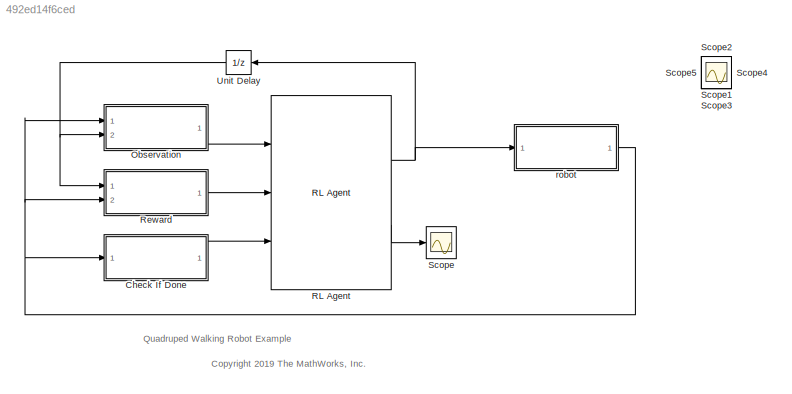
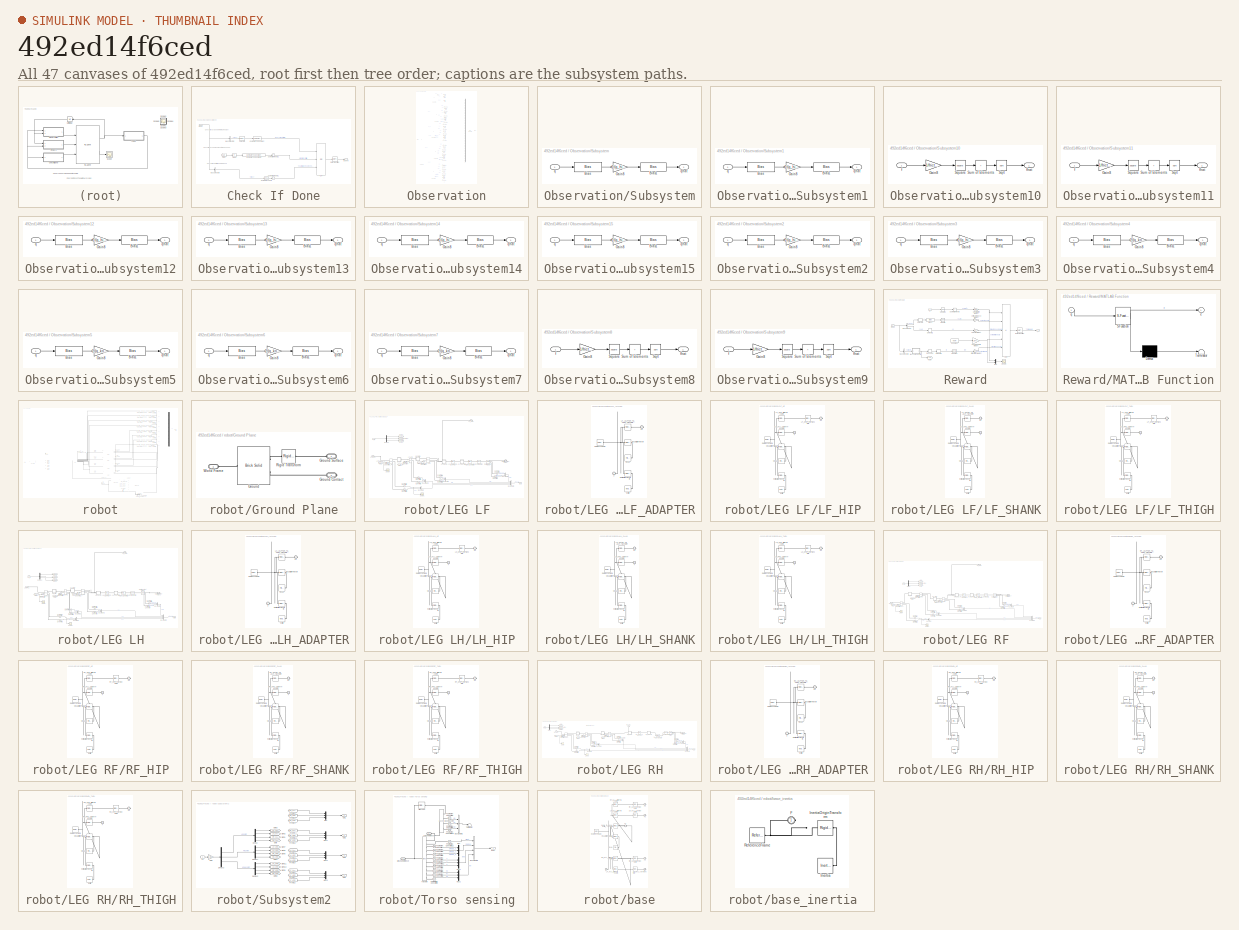
[diagram: thumbnail index - all 47 canvases of the model, root first then tree order]
MODEL slx_492ed14f6ced
KIND model
CONFIG AbsTol = 1e-4
CONFIG EnableMultiTasking = on
CONFIG FixedStep = auto
CONFIG MaxStep = auto
CONFIG MinStep = auto
CONFIG RelTol = 1e-3
CONFIG SampleTimeConstraint = Unconstrained
CONFIG SolverName = ode23t
CONFIG StartTime = 0.0
CONFIG StopTime = Tf
BLOCK [SubSystem] Check If Done
  Ports = [1, 1]
  RequestExecContextInheritance = off
BLOCK [Abs] Check If Done/Abs2
  SaturateOnIntegerOverflow = off
  ZeroCross = off
BLOCK [BusSelector] Check If Done/Bus Selector2
  OutputSignals = body.pos
  Ports = [1, 1]
BLOCK [BusSelector] Check If Done/Bus Selector3
  Commented = on
  OutputSignals = force
  Ports = [1, 1]
BLOCK [Reference] Check If Done/Compare To Constant  REF=simulink/Logic and Bit
Operations/Compare
To Constant
  Ports = [1, 1]
  SourceBlock = simulink/Logic and Bit\nOperations/Compare\nTo Constant
  SourceProductBaseCode = SL
  SourceType = Compare To Constant
BLOCK [Reference] Check If Done/Compare To Constant2  REF=simulink/Logic and Bit
Operations/Compare
To Constant
  Ports = [1, 1]
  SourceBlock = simulink/Logic and Bit\nOperations/Compare\nTo Constant
  SourceProductBaseCode = SL
  SourceType = Compare To Constant
BLOCK [Reference] Check If Done/Compare To Zero  REF=simulink/Logic and Bit
Operations/Compare
To Zero
  Commented = on
  Ports = [1, 1]
  SourceBlock = simulink/Logic and Bit\nOperations/Compare\nTo Zero
  SourceProductBaseCode = SL
  SourceType = Compare To Zero
BLOCK [From] Check If Done/From
  GotoTag = q2e
  TagVisibility = global
BLOCK [Logic] Check If Done/OR
  AllPortsSameDT = off
  Inputs = 3
  Operator = OR
  OutDataTypeStr = boolean
  Ports = [3, 1]
BLOCK [RateTransition] Check If Done/Rate Transition
BLOCK [Selector] Check If Done/Selector1
  IndexOptions = Index vector (dialog)
  Indices = 3
  InputPortWidth = 3
  OutputSizes = 1
  Ports = [1, 1]
BLOCK [Sum] Check If Done/Sum of Elements1
  Commented = on
  IconShape = rectangular
  Inputs = +
  Ports = [1, 1]
BLOCK [Sum] Check If Done/Sum of Elements2
  IconShape = rectangular
  Inputs = +
  Ports = [1, 1]
BLOCK [Outport] Check If Done/isdone
  VectorParamsAs1DForOutWhenUnconnected = off
BLOCK [Inport] Check If Done/meas
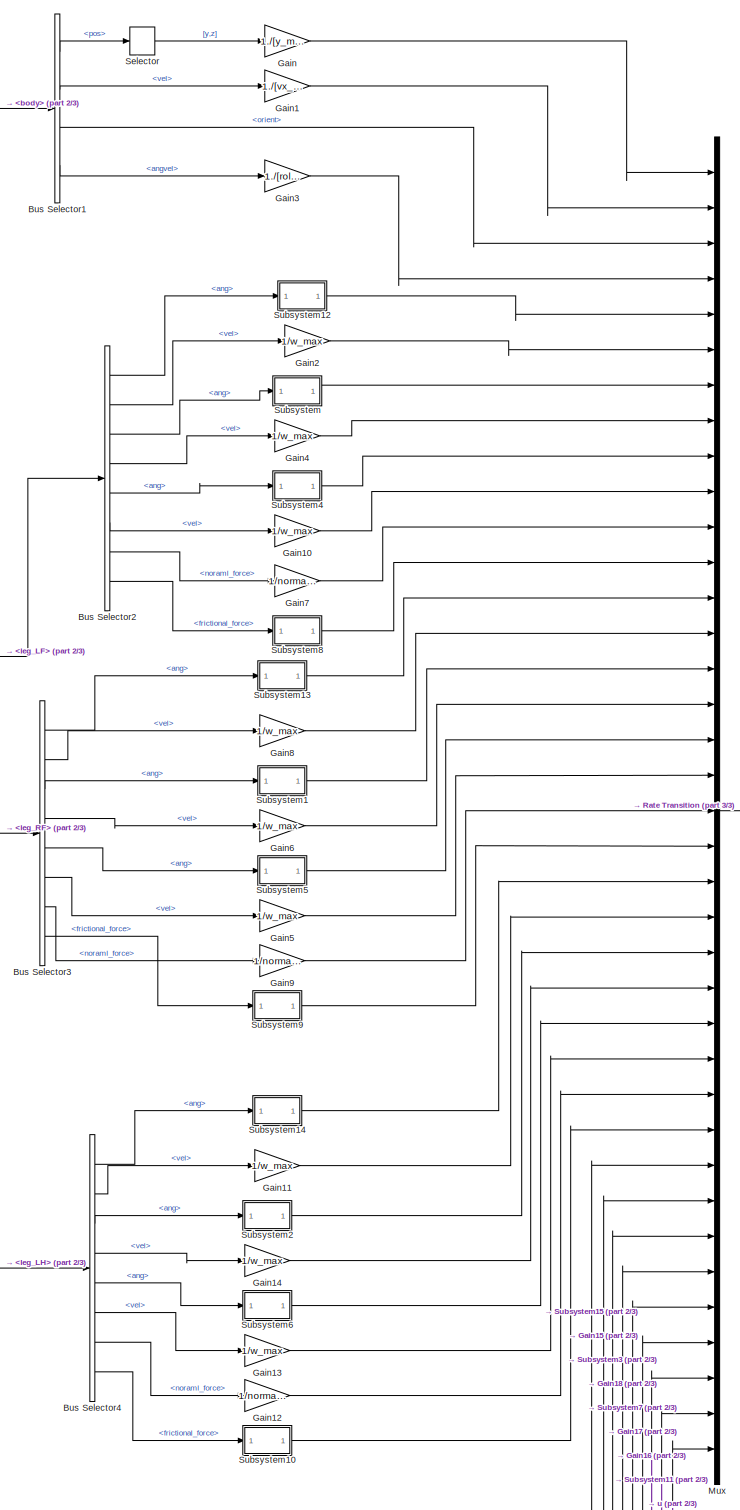
[diagram: Observation - part 1/3, center side, full height]
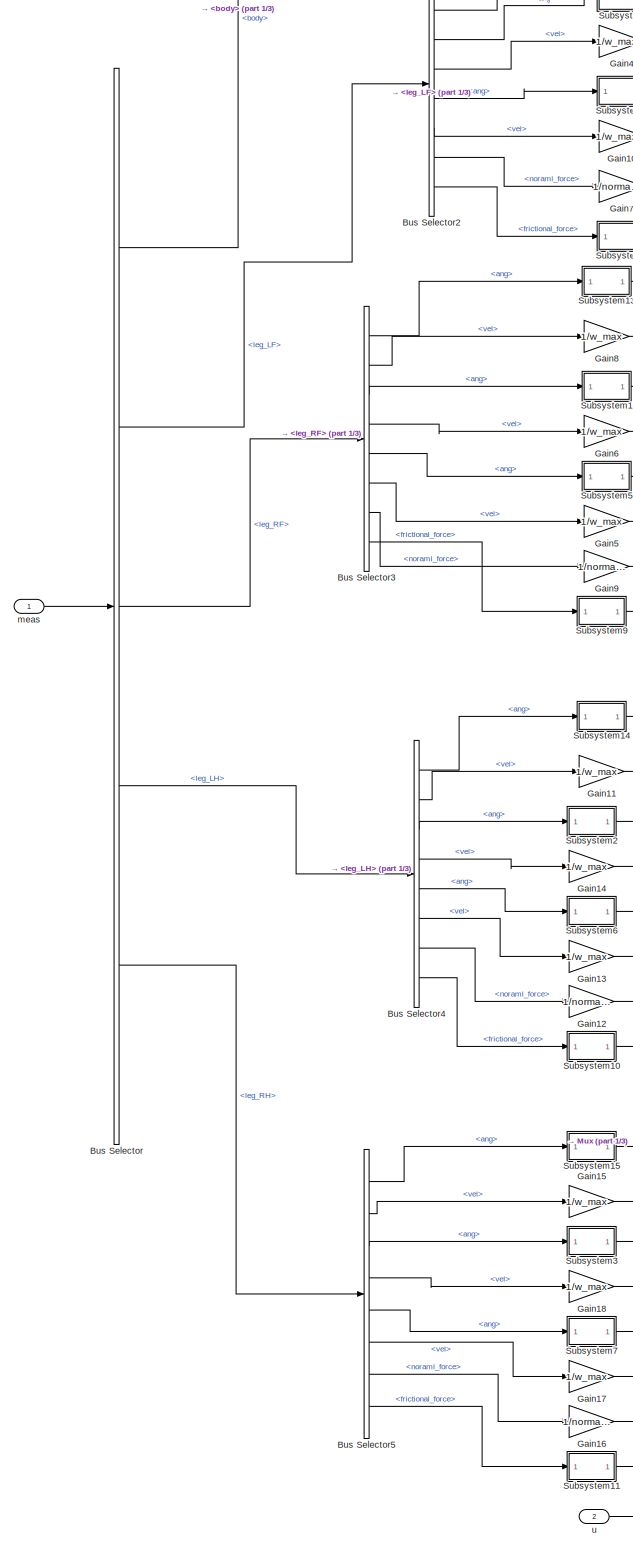
[diagram: Observation - part 2/3, left side, full height]
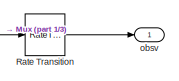
[diagram: Observation - part 3/3, middle right region]
BLOCK [SubSystem] Observation
  Ports = [2, 1]
  RequestExecContextInheritance = off
BLOCK [BusSelector] Observation/Bus Selector
  OutputSignals = body,leg_LF,leg_RF,leg_LH,leg_RH
  Ports = [1, 5]
BLOCK [BusSelector] Observation/Bus Selector1
  OutputSignals = pos,vel,orient,angvel
  Ports = [1, 4]
BLOCK [BusSelector] Observation/Bus Selector2
  OutputSignals = HAA.ang,HAA.vel,HFE.ang,HFE.vel,KFE.ang,KFE.vel,FOOT.noraml_force,FOOT.frictional_force
  Ports = [1, 8]
BLOCK [BusSelector] Observation/Bus Selector3
  OutputSignals = HAA.ang,HAA.vel,HFE.ang,HFE.vel,KFE.ang,KFE.vel,FOOT.noraml_force,FOOT.frictional_force
  Ports = [1, 8]
BLOCK [BusSelector] Observation/Bus Selector4
  OutputSignals = HAA.ang,HAA.vel,HFE.ang,HFE.vel,KFE.ang,KFE.vel,FOOT.noraml_force,FOOT.frictional_force
  Ports = [1, 8]
BLOCK [BusSelector] Observation/Bus Selector5
  OutputSignals = HAA.ang,HAA.vel,HFE.ang,HFE.vel,KFE.ang,KFE.vel,FOOT.noraml_force,FOOT.frictional_force
  Ports = [1, 8]
BLOCK [Gain] Observation/Gain
  Gain = 1./[y_max z_max]
BLOCK [Gain] Observation/Gain1
  Gain = 1./[vx_max vy_max vz_max]
BLOCK [Gain] Observation/Gain10
  Gain = 1/w_max
BLOCK [Gain] Observation/Gain11
  Gain = 1/w_max
BLOCK [Gain] Observation/Gain12
  Gain = 1/normal_force_max
BLOCK [Gain] Observation/Gain13
  Gain = 1/w_max
BLOCK [Gain] Observation/Gain14
  Gain = 1/w_max
BLOCK [Gain] Observation/Gain15
  Gain = 1/w_max
BLOCK [Gain] Observation/Gain16
  Gain = 1/normal_force_max
BLOCK [Gain] Observation/Gain17
  Gain = 1/w_max
BLOCK [Gain] Observation/Gain18
  Gain = 1/w_max
BLOCK [Gain] Observation/Gain2
  Gain = 1/w_max
BLOCK [Gain] Observation/Gain3
  Gain = 1./[roll_max yaw_max pitch_max]
BLOCK [Gain] Observation/Gain4
  Gain = 1/w_max
BLOCK [Gain] Observation/Gain5
  Gain = 1/w_max
BLOCK [Gain] Observation/Gain6
  Gain = 1/w_max
BLOCK [Gain] Observation/Gain7
  Gain = 1/normal_force_max
BLOCK [Gain] Observation/Gain8
  Gain = 1/w_max
BLOCK [Gain] Observation/Gain9
  Gain = 1/normal_force_max
BLOCK [Mux] Observation/Mux
  DisplayOption = bar
  Inputs = 37
  Ports = [37, 1]
BLOCK [RateTransition] Observation/Rate Transition
BLOCK [Selector] Observation/Selector
  IndexOptions = Index vector (dialog)
  Indices = [2 3]
  InputPortWidth = 3
  OutputSizes = 1
  Ports = [1, 1]
BLOCK [SubSystem] Observation/Subsystem
  Ports = [1, 1]
  RequestExecContextInheritance = off
BLOCK [Bias] Observation/Subsystem/Bias
  Bias = -q_hip_min
  SaturateOnIntegerOverflow = off
BLOCK [Bias] Observation/Subsystem/Bias1
  Bias = -1
  SaturateOnIntegerOverflow = off
BLOCK [Gain] Observation/Subsystem/Gain8
  Gain = 2/(q_hip_max-q_hip_min)
BLOCK [Inport] Observation/Subsystem/q
BLOCK [Outport] Observation/Subsystem/qhat
  VectorParamsAs1DForOutWhenUnconnected = off
BLOCK [SubSystem] Observation/Subsystem1
  Ports = [1, 1]
  RequestExecContextInheritance = off
BLOCK [Bias] Observation/Subsystem1/Bias
  Bias = -q_hip_min
  SaturateOnIntegerOverflow = off
BLOCK [Bias] Observation/Subsystem1/Bias1
  Bias = -1
  SaturateOnIntegerOverflow = off
BLOCK [Gain] Observation/Subsystem1/Gain8
  Gain = 2/(q_hip_max-q_hip_min)
BLOCK [Inport] Observation/Subsystem1/q
BLOCK [Outport] Observation/Subsystem1/qhat
  VectorParamsAs1DForOutWhenUnconnected = off
BLOCK [SubSystem] Observation/Subsystem10
  Ports = [1, 1]
  RequestExecContextInheritance = off
BLOCK [Gain] Observation/Subsystem10/Gain8
  Gain = 1/friction_force_max
BLOCK [Sqrt] Observation/Subsystem10/Sqrt
BLOCK [Math] Observation/Subsystem10/Square
  Operator = square
  Ports = [1, 1]
  SignedPower = on
BLOCK [Sum] Observation/Subsystem10/Sum of Elements
  IconShape = rectangular
  Inputs = +
  Ports = [1, 1]
BLOCK [Inport] Observation/Subsystem10/f
BLOCK [Outport] Observation/Subsystem10/fhat
  VectorParamsAs1DForOutWhenUnconnected = off
BLOCK [SubSystem] Observation/Subsystem11
  Ports = [1, 1]
  RequestExecContextInheritance = off
BLOCK [Gain] Observation/Subsystem11/Gain8
  Gain = 1/friction_force_max
BLOCK [Sqrt] Observation/Subsystem11/Sqrt
BLOCK [Math] Observation/Subsystem11/Square
  Operator = square
  Ports = [1, 1]
  SignedPower = on
BLOCK [Sum] Observation/Subsystem11/Sum of Elements
  IconShape = rectangular
  Inputs = +
  Ports = [1, 1]
BLOCK [Inport] Observation/Subsystem11/f
BLOCK [Outport] Observation/Subsystem11/fhat
  VectorParamsAs1DForOutWhenUnconnected = off
BLOCK [SubSystem] Observation/Subsystem12
  Ports = [1, 1]
  RequestExecContextInheritance = off
BLOCK [Bias] Observation/Subsystem12/Bias
  Bias = -q_hip_min
  SaturateOnIntegerOverflow = off
BLOCK [Bias] Observation/Subsystem12/Bias1
  Bias = -1
  SaturateOnIntegerOverflow = off
BLOCK [Gain] Observation/Subsystem12/Gain8
  Gain = 2/(q_hip_max-q_hip_min)
BLOCK [Inport] Observation/Subsystem12/q
BLOCK [Outport] Observation/Subsystem12/qhat
  VectorParamsAs1DForOutWhenUnconnected = off
BLOCK [SubSystem] Observation/Subsystem13
  Ports = [1, 1]
  RequestExecContextInheritance = off
BLOCK [Bias] Observation/Subsystem13/Bias
  Bias = -q_hip_min
  SaturateOnIntegerOverflow = off
BLOCK [Bias] Observation/Subsystem13/Bias1
  Bias = -1
  SaturateOnIntegerOverflow = off
BLOCK [Gain] Observation/Subsystem13/Gain8
  Gain = 2/(q_hip_max-q_hip_min)
BLOCK [Inport] Observation/Subsystem13/q
BLOCK [Outport] Observation/Subsystem13/qhat
  VectorParamsAs1DForOutWhenUnconnected = off
BLOCK [SubSystem] Observation/Subsystem14
  Ports = [1, 1]
  RequestExecContextInheritance = off
BLOCK [Bias] Observation/Subsystem14/Bias
  Bias = -q_hip_min
  SaturateOnIntegerOverflow = off
BLOCK [Bias] Observation/Subsystem14/Bias1
  Bias = -1
  SaturateOnIntegerOverflow = off
BLOCK [Gain] Observation/Subsystem14/Gain8
  Gain = 2/(q_hip_max-q_hip_min)
BLOCK [Inport] Observation/Subsystem14/q
BLOCK [Outport] Observation/Subsystem14/qhat
  VectorParamsAs1DForOutWhenUnconnected = off
BLOCK [SubSystem] Observation/Subsystem15
  Ports = [1, 1]
  RequestExecContextInheritance = off
BLOCK [Bias] Observation/Subsystem15/Bias
  Bias = -q_hip_min
  SaturateOnIntegerOverflow = off
BLOCK [Bias] Observation/Subsystem15/Bias1
  Bias = -1
  SaturateOnIntegerOverflow = off
BLOCK [Gain] Observation/Subsystem15/Gain8
  Gain = 2/(q_hip_max-q_hip_min)
BLOCK [Inport] Observation/Subsystem15/q
BLOCK [Outport] Observation/Subsystem15/qhat
  VectorParamsAs1DForOutWhenUnconnected = off
BLOCK [SubSystem] Observation/Subsystem2
  Ports = [1, 1]
  RequestExecContextInheritance = off
BLOCK [Bias] Observation/Subsystem2/Bias
  Bias = -q_hip_min
  SaturateOnIntegerOverflow = off
BLOCK [Bias] Observation/Subsystem2/Bias1
  Bias = -1
  SaturateOnIntegerOverflow = off
BLOCK [Gain] Observation/Subsystem2/Gain8
  Gain = 2/(q_hip_max-q_hip_min)
BLOCK [Inport] Observation/Subsystem2/q
BLOCK [Outport] Observation/Subsystem2/qhat
  VectorParamsAs1DForOutWhenUnconnected = off
BLOCK [SubSystem] Observation/Subsystem3
  Ports = [1, 1]
  RequestExecContextInheritance = off
BLOCK [Bias] Observation/Subsystem3/Bias
  Bias = -q_hip_min
  SaturateOnIntegerOverflow = off
BLOCK [Bias] Observation/Subsystem3/Bias1
  Bias = -1
  SaturateOnIntegerOverflow = off
BLOCK [Gain] Observation/Subsystem3/Gain8
  Gain = 2/(q_hip_max-q_hip_min)
BLOCK [Inport] Observation/Subsystem3/q
BLOCK [Outport] Observation/Subsystem3/qhat
  VectorParamsAs1DForOutWhenUnconnected = off
BLOCK [SubSystem] Observation/Subsystem4
  Ports = [1, 1]
  RequestExecContextInheritance = off
BLOCK [Bias] Observation/Subsystem4/Bias
  Bias = -q_knee_min
  SaturateOnIntegerOverflow = off
BLOCK [Bias] Observation/Subsystem4/Bias1
  Bias = -1
  SaturateOnIntegerOverflow = off
BLOCK [Gain] Observation/Subsystem4/Gain8
  Gain = 2/(q_knee_max-q_knee_min)
BLOCK [Inport] Observation/Subsystem4/q
BLOCK [Outport] Observation/Subsystem4/qhat
  VectorParamsAs1DForOutWhenUnconnected = off
BLOCK [SubSystem] Observation/Subsystem5
  Ports = [1, 1]
  RequestExecContextInheritance = off
BLOCK [Bias] Observation/Subsystem5/Bias
  Bias = -q_knee_min
  SaturateOnIntegerOverflow = off
BLOCK [Bias] Observation/Subsystem5/Bias1
  Bias = -1
  SaturateOnIntegerOverflow = off
BLOCK [Gain] Observation/Subsystem5/Gain8
  Gain = 2/(q_knee_max-q_knee_min)
BLOCK [Inport] Observation/Subsystem5/q
BLOCK [Outport] Observation/Subsystem5/qhat
  VectorParamsAs1DForOutWhenUnconnected = off
BLOCK [SubSystem] Observation/Subsystem6
  Ports = [1, 1]
  RequestExecContextInheritance = off
BLOCK [Bias] Observation/Subsystem6/Bias
  Bias = -q_knee_min
  SaturateOnIntegerOverflow = off
BLOCK [Bias] Observation/Subsystem6/Bias1
  Bias = -1
  SaturateOnIntegerOverflow = off
BLOCK [Gain] Observation/Subsystem6/Gain8
  Gain = 2/(q_knee_max-q_knee_min)
BLOCK [Inport] Observation/Subsystem6/q
BLOCK [Outport] Observation/Subsystem6/qhat
  VectorParamsAs1DForOutWhenUnconnected = off
BLOCK [SubSystem] Observation/Subsystem7
  Ports = [1, 1]
  RequestExecContextInheritance = off
BLOCK [Bias] Observation/Subsystem7/Bias
  Bias = -q_knee_min
  SaturateOnIntegerOverflow = off
BLOCK [Bias] Observation/Subsystem7/Bias1
  Bias = -1
  SaturateOnIntegerOverflow = off
BLOCK [Gain] Observation/Subsystem7/Gain8
  Gain = 2/(q_knee_max-q_knee_min)
BLOCK [Inport] Observation/Subsystem7/q
BLOCK [Outport] Observation/Subsystem7/qhat
  VectorParamsAs1DForOutWhenUnconnected = off
BLOCK [SubSystem] Observation/Subsystem8
  Ports = [1, 1]
  RequestExecContextInheritance = off
BLOCK [Gain] Observation/Subsystem8/Gain8
  Gain = 1/friction_force_max
BLOCK [Sqrt] Observation/Subsystem8/Sqrt
BLOCK [Math] Observation/Subsystem8/Square
  Operator = square
  Ports = [1, 1]
  SignedPower = on
BLOCK [Sum] Observation/Subsystem8/Sum of Elements
  IconShape = rectangular
  Inputs = +
  Ports = [1, 1]
BLOCK [Inport] Observation/Subsystem8/f
BLOCK [Outport] Observation/Subsystem8/fhat
  VectorParamsAs1DForOutWhenUnconnected = off
BLOCK [SubSystem] Observation/Subsystem9
  Ports = [1, 1]
  RequestExecContextInheritance = off
BLOCK [Gain] Observation/Subsystem9/Gain8
  Gain = 1/friction_force_max
BLOCK [Sqrt] Observation/Subsystem9/Sqrt
BLOCK [Math] Observation/Subsystem9/Square
  Operator = square
  Ports = [1, 1]
  SignedPower = on
BLOCK [Sum] Observation/Subsystem9/Sum of Elements
  IconShape = rectangular
  Inputs = +
  Ports = [1, 1]
BLOCK [Inport] Observation/Subsystem9/f
BLOCK [Outport] Observation/Subsystem9/fhat
  VectorParamsAs1DForOutWhenUnconnected = off
BLOCK [Inport] Observation/meas
BLOCK [Outport] Observation/obsv
  VectorParamsAs1DForOutWhenUnconnected = off
BLOCK [Inport] Observation/u
  Port = 2
BLOCK [Reference] RL Agent  REF=rllib/RL Agent
  NameLocation = top
  Ports = [3, 2]
  SourceBlock = rllib/RL Agent
  SourceProductBaseCode = RL
  SourceType = RL Agent
BLOCK [SubSystem] Reward
  Ports = [2, 1]
  RequestExecContextInheritance = off
BLOCK [Sum] Reward/Add
  IconShape = rectangular
  Inputs = --++-
  Ports = [5, 1]
BLOCK [Bias] Reward/Bias2
  Bias = -h_final
  SaturateOnIntegerOverflow = off
BLOCK [BusSelector] Reward/Bus Selector
  OutputSignals = body.pos,body.vel
  Ports = [1, 2]
BLOCK [BusSelector] Reward/Bus Selector3
  OutputSignals = body.orient
  Ports = [1, 1]
BLOCK [Constant] Reward/Constant 
  SampleTime = -1
  Value = Ts/Tf
BLOCK [Gain] Reward/Constant Term Weight
  Gain = 25*1
BLOCK [Gain] Reward/Control Effort Weight
  Gain = 0.02
BLOCK [Goto] Reward/Goto
  GotoTag = q2e
  TagVisibility = global
BLOCK [SubSystem] Reward/MATLAB Function
  ErrorFcn = Stateflow.Translate.translate
  PermitHierarchicalResolution = ExplicitOnly
  Ports = [1, 1]
  RequestExecContextInheritance = off
  SFBlockType = MATLAB Function
  TreatAsAtomicUnit = on
BLOCK [Demux] Reward/MATLAB Function/ Demux 
  Outputs = 1
  Ports = [1, 1]
BLOCK [S-Function] Reward/MATLAB Function/ SFunction 
  EnableBusSupport = on
  FunctionName = sf_sfun
  PortCounts = [1 2]
  Ports = [1, 2]
  SFcnIsStateOwnerBlock = off
  SFunctionDeploymentMode = off
  Tag = Stateflow S-Function 1
BLOCK [Terminator] Reward/MATLAB Function/ Terminator 
BLOCK [Outport] Reward/MATLAB Function/e
  VectorParamsAs1DForOutWhenUnconnected = off
BLOCK [Inport] Reward/MATLAB Function/q
BLOCK [Mux] Reward/Mux
  DisplayOption = bar
  Inputs = 2
  Ports = [2, 1]
BLOCK [Gain] Reward/Orientation Weight
  Gain = 20
BLOCK [RateTransition] Reward/Rate Transition
BLOCK [Reshape] Reward/Reshape
  Ports = [1, 1]
BLOCK [Scope] Reward/Scope
  Floating = off
  NumInputPorts = 1
  Ports = [1]
  ScopeSpecificationString = Simulink.scopes.TimeScopeBlockCfg('CurrentConfiguration', extmgr.ConfigurationSet(extmgr.Configuration('Core','General UI',true),extmgr.Configuration('Core','Source UI',true),extmgr.Configuration('Sources','WiredSimulink',true,'DataLoggingVariableName','ScopeData1'),extmgr.Configuration('Visuals','Time Domain',true,'SerializedDisplays',{struct('MinYLimReal','-0.02998','MaxYLimReal','0.26984','YLab...<+1424ch>
BLOCK [Selector] Reward/Selector1
  IndexOptions = Index vector (dialog)
  Indices = 1
  InputPortWidth = 3
  OutputSizes = 1
  Ports = [1, 1]
BLOCK [Selector] Reward/Selector3
  IndexOptions = Index vector (dialog)
  Indices = 1
  InputPortWidth = 3
  OutputSizes = 1
  Ports = [1, 1]
BLOCK [Selector] Reward/Selector5
  IndexOptions = Index vector (dialog)
  Indices = 3
  InputPortWidth = 3
  OutputSizes = 1
  Ports = [1, 1]
BLOCK [Math] Reward/Square
  Operator = square
  Ports = [1, 1]
BLOCK [Math] Reward/Square2
  Operator = square
  Ports = [1, 1]
  SignedPower = on
BLOCK [Math] Reward/Square3
  Operator = square
  Ports = [1, 1]
  SignedPower = on
BLOCK [Sum] Reward/Sum of Elements
  IconShape = rectangular
  Inputs = +
  OutDataTypeStr = double
  Ports = [1, 1]
BLOCK [Gain] Reward/Velocity Weight
BLOCK [Gain] Reward/Vertical Distance Weight
  Gain = 50
BLOCK [Inport] Reward/meas
  Port = 2
BLOCK [Outport] Reward/r
  VectorParamsAs1DForOutWhenUnconnected = off
BLOCK [Inport] Reward/u
BLOCK [Scope] Scope
  Floating = off
  NumInputPorts = 1
  Ports = [1]
  ScopeSpecificationString = Simulink.scopes.TimeScopeBlockCfg('CurrentConfiguration', extmgr.ConfigurationSet(extmgr.Configuration('Core','General UI',true),extmgr.Configuration('Core','Source UI',true),extmgr.Configuration('Sources','WiredSimulink',true,'DataLoggingVariableName','ScopeData43'),extmgr.Configuration('Visuals','Time Domain',true,'SerializedDisplays',{struct('MinYLimReal','-13.82005','MaxYLimReal','1.53556','YL...<+1429ch>
BLOCK [Scope] Scope1
  Floating = off
  IOType = viewer
  NumInputPorts = 1
  Ports = []
  ScopeSpecificationString = Simulink.scopes.TimeScopeBlockCfg('CurrentConfiguration', extmgr.ConfigurationSet(extmgr.Configuration('Core','General UI',true),extmgr.Configuration('Core','Source UI',true),extmgr.Configuration('Sources','WiredSimulink',true,'DataLoggingVariableName','ScopeData1'),extmgr.Configuration('Visuals','Time Domain',true,'SerializedDisplays',{struct('MinYLimReal','-0.15337','MaxYLimReal','0.01756','YLab...<+1426ch>
BLOCK [Scope] Scope2
  Floating = off
  IOType = viewer
  NumInputPorts = 1
  Ports = []
  ScopeSpecificationString = Simulink.scopes.TimeScopeBlockCfg('CurrentConfiguration', extmgr.ConfigurationSet(extmgr.Configuration('Core','General UI',true),extmgr.Configuration('Core','Source UI',true),extmgr.Configuration('Sources','WiredSimulink',true,'DataLoggingVariableName','ScopeData2'),extmgr.Configuration('Visuals','Time Domain',true,'SerializedDisplays',{struct('MinYLimReal','-0.01202','MaxYLimReal','0.00135','YLab...<+1359ch>
BLOCK [Scope] Scope3
  Floating = off
  IOType = viewer
  NumInputPorts = 1
  Ports = []
  ScopeSpecificationString = Simulink.scopes.TimeScopeBlockCfg('CurrentConfiguration', extmgr.ConfigurationSet(extmgr.Configuration('Core','General UI',true),extmgr.Configuration('Core','Source UI',true),extmgr.Configuration('Sources','WiredSimulink',true,'DataLoggingVariableName','ScopeData3'),extmgr.Configuration('Visuals','Time Domain',true,'SerializedDisplays',{struct('MinYLimReal','-55.18125','MaxYLimReal','6.13125','YLa...<+1460ch>
BLOCK [Scope] Scope4
  Floating = off
  IOType = viewer
  NumInputPorts = 1
  Ports = []
  ScopeSpecificationString = Simulink.scopes.TimeScopeBlockCfg('CurrentConfiguration', extmgr.ConfigurationSet(extmgr.Configuration('Core','General UI',true),extmgr.Configuration('Core','Source UI',true),extmgr.Configuration('Sources','WiredSimulink',true,'DataLoggingVariableName','ScopeData4'),extmgr.Configuration('Visuals','Time Domain',true,'SerializedDisplays',{struct('MinYLimReal','0.63343','MaxYLimReal','0.74545','YLabe...<+1424ch>
BLOCK [Scope] Scope5
  Floating = off
  IOType = viewer
  NumInputPorts = 1
  Ports = []
  ScopeSpecificationString = Simulink.scopes.TimeScopeBlockCfg('CurrentConfiguration', extmgr.ConfigurationSet(extmgr.Configuration('Core','General UI',true),extmgr.Configuration('Core','Source UI',true),extmgr.Configuration('Sources','WiredSimulink',true,'DataLoggingVariableName','ScopeData5'),extmgr.Configuration('Visuals','Time Domain',true,'SerializedDisplays',{struct('MinYLimReal','-0.88177','MaxYLimReal','1.05861','YLab...<+1437ch>
BLOCK [UnitDelay] Unit Delay
  HasFrameUpgradeWarning = on
  NameLocation = top
  SampleTime = -1
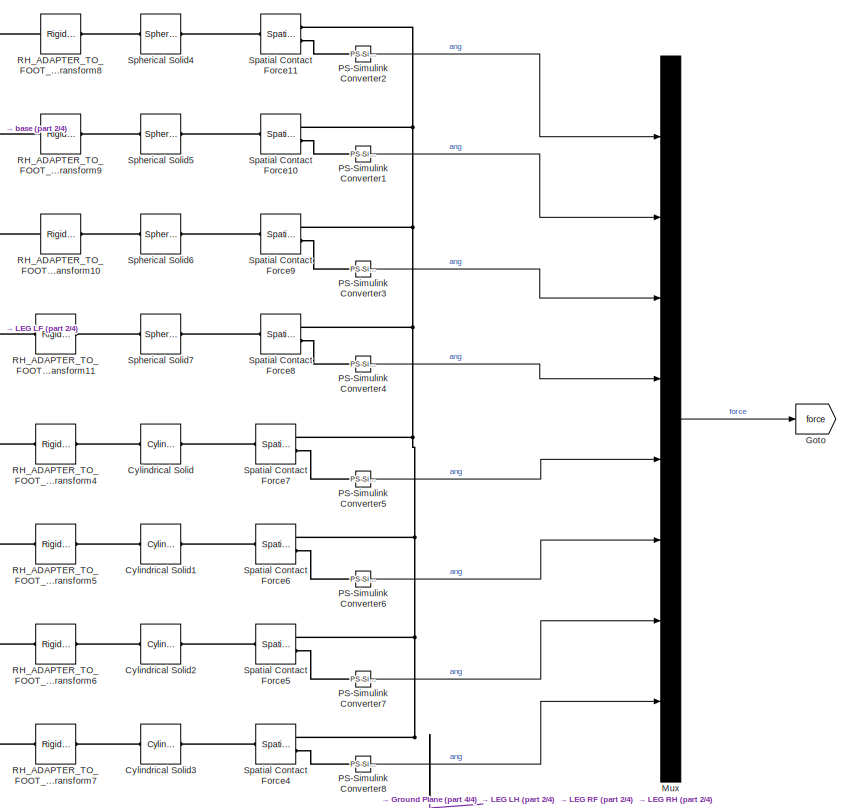
[diagram: robot - part 1/4, top right region]
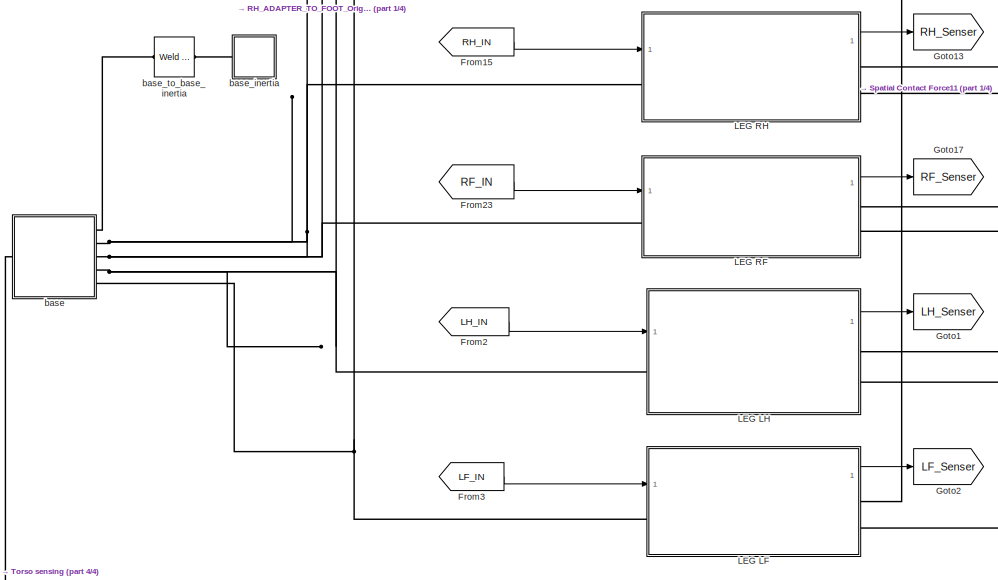
[diagram: robot - part 2/4, central region]
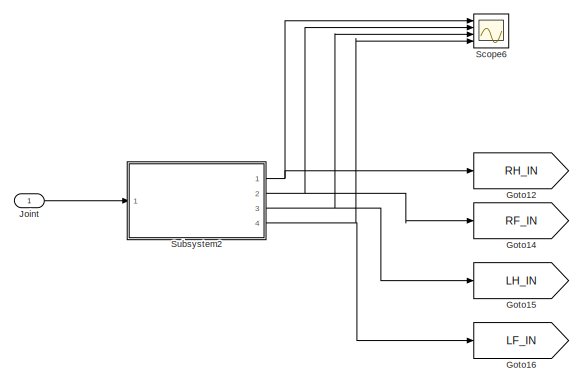
[diagram: robot - part 3/4, middle left region]
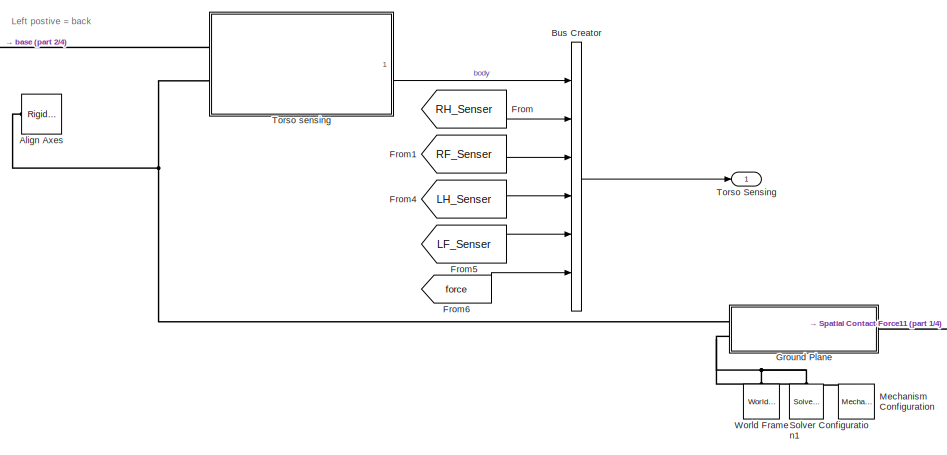
[diagram: robot - part 4/4, bottom center region]
BLOCK [SubSystem] robot
  Ports = [1, 1]
  RequestExecContextInheritance = off
BLOCK [Reference] robot/Align Axes  REF=sm_lib/Frames and
Transforms/Rigid
Transform
  Commented = on
  Ports = [0, 0, 0, 0, 0, 1, 1]
  SourceBlock = sm_lib/Frames and\nTransforms/Rigid\nTransform
  SourceProductBaseCode = MS
  SourceType = Rigid\nTransform
BLOCK [BusCreator] robot/Bus Creator
  DisplayOption = bar
  InheritFromInputs = on
  Inputs = 6
  Ports = [6, 1]
BLOCK [Reference] robot/Cylindrical Solid  REF=sm_lib/Body Elements/Cylindrical Solid
  Commented = on
  Ports = [0, 0, 0, 0, 0, 1, 1]
  SourceBlock = sm_lib/Body Elements/Cylindrical Solid
  SourceProductBaseCode = MS
  SourceType = Cylindrical Solid
BLOCK [Reference] robot/Cylindrical Solid1  REF=sm_lib/Body Elements/Cylindrical Solid
  Commented = on
  Ports = [0, 0, 0, 0, 0, 1, 1]
  SourceBlock = sm_lib/Body Elements/Cylindrical Solid
  SourceProductBaseCode = MS
  SourceType = Cylindrical Solid
BLOCK [Reference] robot/Cylindrical Solid2  REF=sm_lib/Body Elements/Cylindrical Solid
  Commented = on
  Ports = [0, 0, 0, 0, 0, 1, 1]
  SourceBlock = sm_lib/Body Elements/Cylindrical Solid
  SourceProductBaseCode = MS
  SourceType = Cylindrical Solid
BLOCK [Reference] robot/Cylindrical Solid3  REF=sm_lib/Body Elements/Cylindrical Solid
  Commented = on
  Ports = [0, 0, 0, 0, 0, 1, 1]
  SourceBlock = sm_lib/Body Elements/Cylindrical Solid
  SourceProductBaseCode = MS
  SourceType = Cylindrical Solid
BLOCK [From] robot/From
  GotoTag = RH_Senser
BLOCK [From] robot/From1
  GotoTag = RF_Senser
BLOCK [From] robot/From15
  GotoTag = RH_IN
BLOCK [From] robot/From2
  GotoTag = LH_IN
BLOCK [From] robot/From23
  GotoTag = RF_IN
BLOCK [From] robot/From3
  GotoTag = LF_IN
BLOCK [From] robot/From4
  GotoTag = LH_Senser
BLOCK [From] robot/From5
  GotoTag = LF_Senser
BLOCK [From] robot/From6
  Commented = on
  GotoTag = force
BLOCK [Goto] robot/Goto
  Commented = on
  GotoTag = force
BLOCK [Goto] robot/Goto1
  GotoTag = LH_Senser
BLOCK [Goto] robot/Goto12
  GotoTag = RH_IN
BLOCK [Goto] robot/Goto13
  GotoTag = RH_Senser
BLOCK [Goto] robot/Goto14
  GotoTag = RF_IN
BLOCK [Goto] robot/Goto15
  GotoTag = LH_IN
BLOCK [Goto] robot/Goto16
  GotoTag = LF_IN
BLOCK [Goto] robot/Goto17
  GotoTag = RF_Senser
BLOCK [Goto] robot/Goto2
  GotoTag = LF_Senser
BLOCK [SubSystem] robot/Ground Plane
  Ports = [0, 0, 0, 0, 0, 2, 1]
  RequestExecContextInheritance = off
BLOCK [Reference] robot/Ground Plane/Ground  REF=sm_lib/Body Elements/Brick Solid
  NameLocation = top
  Ports = [0, 0, 0, 0, 0, 2, 1]
  SourceBlock = sm_lib/Body Elements/Brick Solid
  SourceProductBaseCode = MS
  SourceType = Brick Solid
BLOCK [PMIOPort] robot/Ground Plane/Ground Contact
  Port = 2
  Side = Right
BLOCK [PMIOPort] robot/Ground Plane/Ground Surface
  Side = Left
BLOCK [Reference] robot/Ground Plane/Rigid Transform  REF=sm_lib/Frames and
Transforms/Rigid
Transform
  Ports = [0, 0, 0, 0, 0, 1, 1]
  SourceBlock = sm_lib/Frames and\nTransforms/Rigid\nTransform
  SourceProductBaseCode = MS
  SourceType = Rigid\nTransform
BLOCK [PMIOPort] robot/Ground Plane/World Frame
  Port = 3
  Side = Left
BLOCK [Inport] robot/Joint
  PortDimensions = 12
BLOCK [SubSystem] robot/LEG LF
  Ports = [1, 1, 0, 0, 0, 1, 2]
  RequestExecContextInheritance = off
BLOCK [BusCreator] robot/LEG LF/Bus Creator
  DisplayOption = bar
  InheritFromInputs = on
  Inputs = 2
  Ports = [2, 1]
BLOCK [BusCreator] robot/LEG LF/Bus Creator1
  DisplayOption = bar
  InheritFromInputs = on
  Inputs = 2
  Ports = [2, 1]
BLOCK [BusCreator] robot/LEG LF/Bus Creator2
  DisplayOption = bar
  InheritFromInputs = on
  Inputs = 2
  Ports = [2, 1]
BLOCK [BusCreator] robot/LEG LF/Bus Creator3
  DisplayOption = bar
  InheritFromInputs = on
  Inputs = 4
  Ports = [4, 1]
BLOCK [BusCreator] robot/LEG LF/Bus Creator4
  DisplayOption = bar
  InheritFromInputs = on
  Inputs = 2
  Ports = [2, 1]
BLOCK [Demux] robot/LEG LF/Demux4
  Outputs = 3
  Ports = [1, 3]
BLOCK [From] robot/LEG LF/From11
  GotoTag = LF_KFE
BLOCK [From] robot/LEG LF/From3
  GotoTag = LF_HAA
BLOCK [From] robot/LEG LF/From7
  GotoTag = LF_HFE
BLOCK [Goto] robot/LEG LF/Goto18
  GotoTag = LF_HAA
BLOCK [Goto] robot/LEG LF/Goto19
  GotoTag = LF_HFE
BLOCK [Goto] robot/LEG LF/Goto20
  GotoTag = LF_KFE
BLOCK [SubSystem] robot/LEG LF/LF_ADAPTER
  Ports = [0, 0, 0, 0, 0, 1, 1]
  RequestExecContextInheritance = off
BLOCK [PMIOPort] robot/LEG LF/LF_ADAPTER/F
  Side = Left
BLOCK [PMIOPort] robot/LEG LF/LF_ADAPTER/F1
  Port = 2
  Side = Right
BLOCK [Reference] robot/LEG LF/LF_ADAPTER/Inertia  REF=sm_lib/Body Elements/Inertia
  Ports = [0, 0, 0, 0, 0, 0, 1]
  SourceBlock = sm_lib/Body Elements/Inertia
  SourceProductBaseCode = MS
  SourceType = Inertia
BLOCK [Reference] robot/LEG LF/LF_ADAPTER/InertiaOriginTransform  REF=sm_lib/Frames and
Transforms/Rigid
Transform
  Ports = [0, 0, 0, 0, 0, 1, 1]
  SourceBlock = sm_lib/Frames and\nTransforms/Rigid\nTransform
  SourceProductBaseCode = MS
  SourceType = Rigid\nTransform
BLOCK [Reference] robot/LEG LF/LF_ADAPTER/LF_ADAPTER_TO_FOOT_OriginTransform  REF=sm_lib/Frames and
Transforms/Rigid
Transform
  Ports = [0, 0, 0, 0, 0, 1, 1]
  SourceBlock = sm_lib/Frames and\nTransforms/Rigid\nTransform
  SourceProductBaseCode = MS
  SourceType = Rigid\nTransform
BLOCK [Reference] robot/LEG LF/LF_ADAPTER/ReferenceFrame  REF=sm_lib/Frames and
Transforms/Reference
Frame
  Ports = [0, 0, 0, 0, 0, 0, 1]
  SourceBlock = sm_lib/Frames and\nTransforms/Reference\nFrame
  SourceProductBaseCode = MS
  SourceType = Reference\nFrame
BLOCK [Reference] robot/LEG LF/LF_ADAPTER/Visual  REF=sm_lib/Body Elements/File Solid
  Ports = [0, 0, 0, 0, 0, 0, 1]
  SourceBlock = sm_lib/Body Elements/File Solid
  SourceProductBaseCode = MS
  SourceType = File Solid
BLOCK [Reference] robot/LEG LF/LF_ADAPTER/VisualOriginTransform  REF=sm_lib/Frames and
Transforms/Rigid
Transform
  Ports = [0, 0, 0, 0, 0, 1, 1]
  SourceBlock = sm_lib/Frames and\nTransforms/Rigid\nTransform
  SourceProductBaseCode = MS
  SourceType = Rigid\nTransform
BLOCK [Reference] robot/LEG LF/LF_HAA  REF=sm_lib/Joints/Revolute Joint
  Ports = [0, 0, 0, 0, 0, 2, 3]
  SourceBlock = sm_lib/Joints/Revolute Joint
  SourceProductBaseCode = MS
  SourceType = Revolute Joint
BLOCK [PMIOPort] robot/LEG LF/LF_HAA1
  Port = 2
  Side = Left
BLOCK [Reference] robot/LEG LF/LF_HFE  REF=sm_lib/Joints/Revolute Joint
  Ports = [0, 0, 0, 0, 0, 2, 3]
  SourceBlock = sm_lib/Joints/Revolute Joint
  SourceProductBaseCode = MS
  SourceType = Revolute Joint
BLOCK [SubSystem] robot/LEG LF/LF_HIP
  Ports = [0, 0, 0, 0, 0, 1, 1]
  RequestExecContextInheritance = off
BLOCK [PMIOPort] robot/LEG LF/LF_HIP/F
  Side = Left
BLOCK [PMIOPort] robot/LEG LF/LF_HIP/F1
  Port = 2
  Side = Right
BLOCK [Reference] robot/LEG LF/LF_HIP/Inertia  REF=sm_lib/Body Elements/Inertia
  Ports = [0, 0, 0, 0, 0, 0, 1]
  SourceBlock = sm_lib/Body Elements/Inertia
  SourceProductBaseCode = MS
  SourceType = Inertia
BLOCK [Reference] robot/LEG LF/LF_HIP/InertiaOriginTransform  REF=sm_lib/Frames and
Transforms/Rigid
Transform
  Ports = [0, 0, 0, 0, 0, 1, 1]
  SourceBlock = sm_lib/Frames and\nTransforms/Rigid\nTransform
  SourceProductBaseCode = MS
  SourceType = Rigid\nTransform
BLOCK [Reference] robot/LEG LF/LF_HIP/LF_HAA_AxisInvTransform  REF=sm_lib/Frames and
Transforms/Rigid
Transform
  Ports = [0, 0, 0, 0, 0, 1, 1]
  SourceBlock = sm_lib/Frames and\nTransforms/Rigid\nTransform
  SourceProductBaseCode = MS
  SourceType = Rigid\nTransform
BLOCK [Reference] robot/LEG LF/LF_HIP/LF_HFE_AxisTransform  REF=sm_lib/Frames and
Transforms/Rigid
Transform
  Ports = [0, 0, 0, 0, 0, 1, 1]
  SourceBlock = sm_lib/Frames and\nTransforms/Rigid\nTransform
  SourceProductBaseCode = MS
  SourceType = Rigid\nTransform
BLOCK [Reference] robot/LEG LF/LF_HIP/LF_HFE_OriginTransform  REF=sm_lib/Frames and
Transforms/Rigid
Transform
  Ports = [0, 0, 0, 0, 0, 1, 1]
  SourceBlock = sm_lib/Frames and\nTransforms/Rigid\nTransform
  SourceProductBaseCode = MS
  SourceType = Rigid\nTransform
BLOCK [Reference] robot/LEG LF/LF_HIP/ReferenceFrame  REF=sm_lib/Frames and
Transforms/Reference
Frame
  Ports = [0, 0, 0, 0, 0, 0, 1]
  SourceBlock = sm_lib/Frames and\nTransforms/Reference\nFrame
  SourceProductBaseCode = MS
  SourceType = Reference\nFrame
BLOCK [Reference] robot/LEG LF/LF_HIP/Visual  REF=sm_lib/Body Elements/File Solid
  Ports = [0, 0, 0, 0, 0, 0, 1]
  SourceBlock = sm_lib/Body Elements/File Solid
  SourceProductBaseCode = MS
  SourceType = File Solid
BLOCK [Reference] robot/LEG LF/LF_HIP/VisualOriginTransform  REF=sm_lib/Frames and
Transforms/Rigid
Transform
  Ports = [0, 0, 0, 0, 0, 1, 1]
  SourceBlock = sm_lib/Frames and\nTransforms/Rigid\nTransform
  SourceProductBaseCode = MS
  SourceType = Rigid\nTransform
BLOCK [Inport] robot/LEG LF/LF_IN
BLOCK [Reference] robot/LEG LF/LF_KFE  REF=sm_lib/Joints/Revolute Joint
  Ports = [0, 0, 0, 0, 0, 2, 3]
  SourceBlock = sm_lib/Joints/Revolute Joint
  SourceProductBaseCode = MS
  SourceType = Revolute Joint
BLOCK [PMIOPort] robot/LEG LF/LF_KFE1
  Side = Right
BLOCK [SubSystem] robot/LEG LF/LF_SHANK
  Ports = [0, 0, 0, 0, 0, 1, 1]
  RequestExecContextInheritance = off
BLOCK [PMIOPort] robot/LEG LF/LF_SHANK/F
  Side = Left
BLOCK [PMIOPort] robot/LEG LF/LF_SHANK/F1
  Port = 2
  Side = Right
BLOCK [Reference] robot/LEG LF/LF_SHANK/Inertia  REF=sm_lib/Body Elements/Inertia
  Ports = [0, 0, 0, 0, 0, 0, 1]
  SourceBlock = sm_lib/Body Elements/Inertia
  SourceProductBaseCode = MS
  SourceType = Inertia
BLOCK [Reference] robot/LEG LF/LF_SHANK/InertiaOriginTransform  REF=sm_lib/Frames and
Transforms/Rigid
Transform
  Ports = [0, 0, 0, 0, 0, 1, 1]
  SourceBlock = sm_lib/Frames and\nTransforms/Rigid\nTransform
  SourceProductBaseCode = MS
  SourceType = Rigid\nTransform
BLOCK [Reference] robot/LEG LF/LF_SHANK/LF_KFE_AxisInvTransform  REF=sm_lib/Frames and
Transforms/Rigid
Transform
  Ports = [0, 0, 0, 0, 0, 1, 1]
  SourceBlock = sm_lib/Frames and\nTransforms/Rigid\nTransform
  SourceProductBaseCode = MS
  SourceType = Rigid\nTransform
BLOCK [Reference] robot/LEG LF/LF_SHANK/LF_SHANK_TO_ADAPTER_OriginTransform  REF=sm_lib/Frames and
Transforms/Rigid
Transform
  Ports = [0, 0, 0, 0, 0, 1, 1]
  SourceBlock = sm_lib/Frames and\nTransforms/Rigid\nTransform
  SourceProductBaseCode = MS
  SourceType = Rigid\nTransform
BLOCK [Reference] robot/LEG LF/LF_SHANK/ReferenceFrame  REF=sm_lib/Frames and
Transforms/Reference
Frame
  Ports = [0, 0, 0, 0, 0, 0, 1]
  SourceBlock = sm_lib/Frames and\nTransforms/Reference\nFrame
  SourceProductBaseCode = MS
  SourceType = Reference\nFrame
BLOCK [Reference] robot/LEG LF/LF_SHANK/Visual  REF=sm_lib/Body Elements/File Solid
  Ports = [0, 0, 0, 0, 0, 0, 1]
  SourceBlock = sm_lib/Body Elements/File Solid
  SourceProductBaseCode = MS
  SourceType = File Solid
BLOCK [Reference] robot/LEG LF/LF_SHANK/VisualOriginTransform  REF=sm_lib/Frames and
Transforms/Rigid
Transform
  Ports = [0, 0, 0, 0, 0, 1, 1]
  SourceBlock = sm_lib/Frames and\nTransforms/Rigid\nTransform
  SourceProductBaseCode = MS
  SourceType = Rigid\nTransform
BLOCK [Reference] robot/LEG LF/LF_SHANK_TO_ADAPTER  REF=sm_lib/Joints/Weld Joint
  Ports = [0, 0, 0, 0, 0, 1, 1]
  SourceBlock = sm_lib/Joints/Weld Joint
  SourceProductBaseCode = MS
  SourceType = Weld Joint
BLOCK [SubSystem] robot/LEG LF/LF_THIGH
  Ports = [0, 0, 0, 0, 0, 1, 1]
  RequestExecContextInheritance = off
BLOCK [PMIOPort] robot/LEG LF/LF_THIGH/F
  Side = Left
BLOCK [PMIOPort] robot/LEG LF/LF_THIGH/F1
  Port = 2
  Side = Right
BLOCK [Reference] robot/LEG LF/LF_THIGH/Inertia  REF=sm_lib/Body Elements/Inertia
  Ports = [0, 0, 0, 0, 0, 0, 1]
  SourceBlock = sm_lib/Body Elements/Inertia
  SourceProductBaseCode = MS
  SourceType = Inertia
BLOCK [Reference] robot/LEG LF/LF_THIGH/InertiaOriginTransform  REF=sm_lib/Frames and
Transforms/Rigid
Transform
  Ports = [0, 0, 0, 0, 0, 1, 1]
  SourceBlock = sm_lib/Frames and\nTransforms/Rigid\nTransform
  SourceProductBaseCode = MS
  SourceType = Rigid\nTransform
BLOCK [Reference] robot/LEG LF/LF_THIGH/LF_HFE_AxisInvTransform  REF=sm_lib/Frames and
Transforms/Rigid
Transform
  Ports = [0, 0, 0, 0, 0, 1, 1]
  SourceBlock = sm_lib/Frames and\nTransforms/Rigid\nTransform
  SourceProductBaseCode = MS
  SourceType = Rigid\nTransform
BLOCK [Reference] robot/LEG LF/LF_THIGH/LF_KFE_AxisTransform  REF=sm_lib/Frames and
Transforms/Rigid
Transform
  Ports = [0, 0, 0, 0, 0, 1, 1]
  SourceBlock = sm_lib/Frames and\nTransforms/Rigid\nTransform
  SourceProductBaseCode = MS
  SourceType = Rigid\nTransform
BLOCK [Reference] robot/LEG LF/LF_THIGH/LF_KFE_OriginTransform  REF=sm_lib/Frames and
Transforms/Rigid
Transform
  Ports = [0, 0, 0, 0, 0, 1, 1]
  SourceBlock = sm_lib/Frames and\nTransforms/Rigid\nTransform
  SourceProductBaseCode = MS
  SourceType = Rigid\nTransform
BLOCK [Reference] robot/LEG LF/LF_THIGH/ReferenceFrame  REF=sm_lib/Frames and
Transforms/Reference
Frame
  Ports = [0, 0, 0, 0, 0, 0, 1]
  SourceBlock = sm_lib/Frames and\nTransforms/Reference\nFrame
  SourceProductBaseCode = MS
  SourceType = Reference\nFrame
BLOCK [Reference] robot/LEG LF/LF_THIGH/Visual  REF=sm_lib/Body Elements/File Solid
  Ports = [0, 0, 0, 0, 0, 0, 1]
  SourceBlock = sm_lib/Body Elements/File Solid
  SourceProductBaseCode = MS
  SourceType = File Solid
BLOCK [Reference] robot/LEG LF/LF_THIGH/VisualOriginTransform  REF=sm_lib/Frames and
Transforms/Rigid
Transform
  Ports = [0, 0, 0, 0, 0, 1, 1]
  SourceBlock = sm_lib/Frames and\nTransforms/Rigid\nTransform
  SourceProductBaseCode = MS
  SourceType = Rigid\nTransform
BLOCK [Outport] robot/LEG LF/Out1
BLOCK [Reference] robot/LEG LF/PS-Simulink Converter  REF=nesl_utility/PS-Simulink
Converter
  Ports = [0, 1, 0, 0, 0, 1]
  SourceBlock = nesl_utility/PS-Simulink\nConverter
  SourceProductBaseCode = SS
  SourceType = PS-Simulink\nConverter
BLOCK [Reference] robot/LEG LF/PS-Simulink Converter1  REF=nesl_utility/PS-Simulink
Converter
  Ports = [0, 1, 0, 0, 0, 1]
  SourceBlock = nesl_utility/PS-Simulink\nConverter
  SourceProductBaseCode = SS
  SourceType = PS-Simulink\nConverter
BLOCK [Reference] robot/LEG LF/PS-Simulink Converter2  REF=nesl_utility/PS-Simulink
Converter
  Ports = [0, 1, 0, 0, 0, 1]
  SourceBlock = nesl_utility/PS-Simulink\nConverter
  SourceProductBaseCode = SS
  SourceType = PS-Simulink\nConverter
BLOCK [Reference] robot/LEG LF/PS-Simulink Converter3  REF=nesl_utility/PS-Simulink
Converter
  Ports = [0, 1, 0, 0, 0, 1]
  SourceBlock = nesl_utility/PS-Simulink\nConverter
  SourceProductBaseCode = SS
  SourceType = PS-Simulink\nConverter
BLOCK [Reference] robot/LEG LF/PS-Simulink Converter4  REF=nesl_utility/PS-Simulink
Converter
  Ports = [0, 1, 0, 0, 0, 1]
  SourceBlock = nesl_utility/PS-Simulink\nConverter
  SourceProductBaseCode = SS
  SourceType = PS-Simulink\nConverter
BLOCK [Reference] robot/LEG LF/PS-Simulink Converter5  REF=nesl_utility/PS-Simulink
Converter
  Ports = [0, 1, 0, 0, 0, 1]
  SourceBlock = nesl_utility/PS-Simulink\nConverter
  SourceProductBaseCode = SS
  SourceType = PS-Simulink\nConverter
BLOCK [Reference] robot/LEG LF/PS-Simulink Converter6  REF=nesl_utility/PS-Simulink
Converter
  Ports = [0, 1, 0, 0, 0, 1]
  SourceBlock = nesl_utility/PS-Simulink\nConverter
  SourceProductBaseCode = SS
  SourceType = PS-Simulink\nConverter
BLOCK [Reference] robot/LEG LF/PS-Simulink Converter7  REF=nesl_utility/PS-Simulink
Converter
  Ports = [0, 1, 0, 0, 0, 1]
  SourceBlock = nesl_utility/PS-Simulink\nConverter
  SourceProductBaseCode = SS
  SourceType = PS-Simulink\nConverter
BLOCK [Reference] robot/LEG LF/RH_ADAPTER_TO_FOOT_OriginTransform3  REF=sm_lib/Frames and
Transforms/Rigid
Transform
  Ports = [0, 0, 0, 0, 0, 1, 1]
  SourceBlock = sm_lib/Frames and\nTransforms/Rigid\nTransform
  SourceProductBaseCode = MS
  SourceType = Rigid\nTransform
BLOCK [Scope] robot/LEG LF/Scope
  Floating = off
  NumInputPorts = 1
  Ports = [1]
  ScopeSpecificationString = Simulink.scopes.TimeScopeBlockCfg('CurrentConfiguration', extmgr.ConfigurationSet(extmgr.Configuration('Core','General UI',true),extmgr.Configuration('Core','Source UI',true),extmgr.Configuration('Sources','WiredSimulink',true,'DataLoggingVariableName','ScopeData1'),extmgr.Configuration('Visuals','Time Domain',true,'SerializedDisplays',{struct('MinYLimReal','-30.72092','MaxYLimReal','26.48828','YL...<+1373ch>
BLOCK [Scope] robot/LEG LF/Scope1
  Floating = off
  NumInputPorts = 1
  Ports = [1]
  ScopeSpecificationString = Simulink.scopes.TimeScopeBlockCfg('CurrentConfiguration', extmgr.ConfigurationSet(extmgr.Configuration('Core','General UI',true),extmgr.Configuration('Core','Source UI',true),extmgr.Configuration('Sources','WiredSimulink',true,'DataLoggingVariableName','ScopeData8'),extmgr.Configuration('Visuals','Time Domain',true,'SerializedDisplays',{struct('MinYLimReal','-0.40325','MaxYLimReal','0.04481','YLab...<+1362ch>
BLOCK [Reference] robot/LEG LF/Simulink-PS Converter11  REF=nesl_utility/Simulink-PS
Converter
  Ports = [1, 0, 0, 0, 0, 0, 1]
  SourceBlock = nesl_utility/Simulink-PS\nConverter
  SourceProductBaseCode = SS
  SourceType = Simulink-PS\nConverter
BLOCK [Reference] robot/LEG LF/Simulink-PS Converter3  REF=nesl_utility/Simulink-PS
Converter
  Ports = [1, 0, 0, 0, 0, 0, 1]
  SourceBlock = nesl_utility/Simulink-PS\nConverter
  SourceProductBaseCode = SS
  SourceType = Simulink-PS\nConverter
BLOCK [Reference] robot/LEG LF/Simulink-PS Converter7  REF=nesl_utility/Simulink-PS
Converter
  Ports = [1, 0, 0, 0, 0, 0, 1]
  SourceBlock = nesl_utility/Simulink-PS\nConverter
  SourceProductBaseCode = SS
  SourceType = Simulink-PS\nConverter
BLOCK [PMIOPort] robot/LEG LF/Spatial Contact Force1
  Port = 3
  Side = Right
BLOCK [Reference] robot/LEG LF/Spatial Contact Force3  REF=sm_lib/Forces and
Torques/Spatial
Contact Force
  Ports = [0, 0, 0, 0, 0, 1, 3]
  SourceBlock = sm_lib/Forces and\nTorques/Spatial\nContact Force
  SourceProductBaseCode = MS
  SourceType = Spatial\nContact Force
BLOCK [Reference] robot/LEG LF/Spherical Solid3  REF=sm_lib/Body Elements/Spherical Solid
  NameLocation = top
  Ports = [0, 0, 0, 0, 0, 1, 1]
  SourceBlock = sm_lib/Body Elements/Spherical Solid
  SourceProductBaseCode = MS
  SourceType = Spherical Solid
BLOCK [SubSystem] robot/LEG LH
  Ports = [1, 1, 0, 0, 0, 1, 2]
  RequestExecContextInheritance = off
BLOCK [BusCreator] robot/LEG LH/Bus Creator
  DisplayOption = bar
  InheritFromInputs = on
  Inputs = 2
  Ports = [2, 1]
BLOCK [BusCreator] robot/LEG LH/Bus Creator1
  DisplayOption = bar
  InheritFromInputs = on
  Inputs = 2
  Ports = [2, 1]
BLOCK [BusCreator] robot/LEG LH/Bus Creator2
  DisplayOption = bar
  InheritFromInputs = on
  Inputs = 2
  Ports = [2, 1]
BLOCK [BusCreator] robot/LEG LH/Bus Creator3
  DisplayOption = bar
  InheritFromInputs = on
  Inputs = 4
  Ports = [4, 1]
BLOCK [BusCreator] robot/LEG LH/Bus Creator4
  DisplayOption = bar
  InheritFromInputs = on
  Inputs = 2
  Ports = [2, 1]
BLOCK [Demux] robot/LEG LH/Demux4
  Outputs = 3
  Ports = [1, 3]
BLOCK [From] robot/LEG LH/From10
  GotoTag = LH_KFE
BLOCK [From] robot/LEG LH/From2
  GotoTag = LH_HAA
BLOCK [From] robot/LEG LH/From6
  GotoTag = LH_HFE
BLOCK [Goto] robot/LEG LH/Goto18
  GotoTag = LH_HAA
BLOCK [Goto] robot/LEG LH/Goto19
  GotoTag = LH_HFE
BLOCK [Goto] robot/LEG LH/Goto20
  GotoTag = LH_KFE
BLOCK [SubSystem] robot/LEG LH/LH_ADAPTER
  Ports = [0, 0, 0, 0, 0, 1, 1]
  RequestExecContextInheritance = off
BLOCK [PMIOPort] robot/LEG LH/LH_ADAPTER/F
  Side = Left
BLOCK [PMIOPort] robot/LEG LH/LH_ADAPTER/F1
  Port = 2
  Side = Right
BLOCK [Reference] robot/LEG LH/LH_ADAPTER/Inertia  REF=sm_lib/Body Elements/Inertia
  Ports = [0, 0, 0, 0, 0, 0, 1]
  SourceBlock = sm_lib/Body Elements/Inertia
  SourceProductBaseCode = MS
  SourceType = Inertia
BLOCK [Reference] robot/LEG LH/LH_ADAPTER/InertiaOriginTransform  REF=sm_lib/Frames and
Transforms/Rigid
Transform
  Ports = [0, 0, 0, 0, 0, 1, 1]
  SourceBlock = sm_lib/Frames and\nTransforms/Rigid\nTransform
  SourceProductBaseCode = MS
  SourceType = Rigid\nTransform
BLOCK [Reference] robot/LEG LH/LH_ADAPTER/LH_ADAPTER_TO_FOOT_OriginTransform  REF=sm_lib/Frames and
Transforms/Rigid
Transform
  Ports = [0, 0, 0, 0, 0, 1, 1]
  SourceBlock = sm_lib/Frames and\nTransforms/Rigid\nTransform
  SourceProductBaseCode = MS
  SourceType = Rigid\nTransform
BLOCK [Reference] robot/LEG LH/LH_ADAPTER/ReferenceFrame  REF=sm_lib/Frames and
Transforms/Reference
Frame
  Ports = [0, 0, 0, 0, 0, 0, 1]
  SourceBlock = sm_lib/Frames and\nTransforms/Reference\nFrame
  SourceProductBaseCode = MS
  SourceType = Reference\nFrame
BLOCK [Reference] robot/LEG LH/LH_ADAPTER/Visual  REF=sm_lib/Body Elements/File Solid
  Ports = [0, 0, 0, 0, 0, 0, 1]
  SourceBlock = sm_lib/Body Elements/File Solid
  SourceProductBaseCode = MS
  SourceType = File Solid
BLOCK [Reference] robot/LEG LH/LH_ADAPTER/VisualOriginTransform  REF=sm_lib/Frames and
Transforms/Rigid
Transform
  Ports = [0, 0, 0, 0, 0, 1, 1]
  SourceBlock = sm_lib/Frames and\nTransforms/Rigid\nTransform
  SourceProductBaseCode = MS
  SourceType = Rigid\nTransform
BLOCK [Reference] robot/LEG LH/LH_HAA  REF=sm_lib/Joints/Revolute Joint
  Ports = [0, 0, 0, 0, 0, 2, 3]
  SourceBlock = sm_lib/Joints/Revolute Joint
  SourceProductBaseCode = MS
  SourceType = Revolute Joint
BLOCK [PMIOPort] robot/LEG LH/LH_HAA1
  Port = 2
  Side = Left
BLOCK [Reference] robot/LEG LH/LH_HFE  REF=sm_lib/Joints/Revolute Joint
  Ports = [0, 0, 0, 0, 0, 2, 3]
  SourceBlock = sm_lib/Joints/Revolute Joint
  SourceProductBaseCode = MS
  SourceType = Revolute Joint
BLOCK [SubSystem] robot/LEG LH/LH_HIP
  Ports = [0, 0, 0, 0, 0, 1, 1]
  RequestExecContextInheritance = off
BLOCK [PMIOPort] robot/LEG LH/LH_HIP/F
  Side = Left
BLOCK [PMIOPort] robot/LEG LH/LH_HIP/F1
  Port = 2
  Side = Right
BLOCK [Reference] robot/LEG LH/LH_HIP/Inertia  REF=sm_lib/Body Elements/Inertia
  Ports = [0, 0, 0, 0, 0, 0, 1]
  SourceBlock = sm_lib/Body Elements/Inertia
  SourceProductBaseCode = MS
  SourceType = Inertia
BLOCK [Reference] robot/LEG LH/LH_HIP/InertiaOriginTransform  REF=sm_lib/Frames and
Transforms/Rigid
Transform
  Ports = [0, 0, 0, 0, 0, 1, 1]
  SourceBlock = sm_lib/Frames and\nTransforms/Rigid\nTransform
  SourceProductBaseCode = MS
  SourceType = Rigid\nTransform
BLOCK [Reference] robot/LEG LH/LH_HIP/LH_HAA_AxisInvTransform  REF=sm_lib/Frames and
Transforms/Rigid
Transform
  Ports = [0, 0, 0, 0, 0, 1, 1]
  SourceBlock = sm_lib/Frames and\nTransforms/Rigid\nTransform
  SourceProductBaseCode = MS
  SourceType = Rigid\nTransform
BLOCK [Reference] robot/LEG LH/LH_HIP/LH_HFE_AxisTransform  REF=sm_lib/Frames and
Transforms/Rigid
Transform
  Ports = [0, 0, 0, 0, 0, 1, 1]
  SourceBlock = sm_lib/Frames and\nTransforms/Rigid\nTransform
  SourceProductBaseCode = MS
  SourceType = Rigid\nTransform
BLOCK [Reference] robot/LEG LH/LH_HIP/LH_HFE_OriginTransform  REF=sm_lib/Frames and
Transforms/Rigid
Transform
  Ports = [0, 0, 0, 0, 0, 1, 1]
  SourceBlock = sm_lib/Frames and\nTransforms/Rigid\nTransform
  SourceProductBaseCode = MS
  SourceType = Rigid\nTransform
BLOCK [Reference] robot/LEG LH/LH_HIP/ReferenceFrame  REF=sm_lib/Frames and
Transforms/Reference
Frame
  Ports = [0, 0, 0, 0, 0, 0, 1]
  SourceBlock = sm_lib/Frames and\nTransforms/Reference\nFrame
  SourceProductBaseCode = MS
  SourceType = Reference\nFrame
BLOCK [Reference] robot/LEG LH/LH_HIP/Visual  REF=sm_lib/Body Elements/File Solid
  Ports = [0, 0, 0, 0, 0, 0, 1]
  SourceBlock = sm_lib/Body Elements/File Solid
  SourceProductBaseCode = MS
  SourceType = File Solid
BLOCK [Reference] robot/LEG LH/LH_HIP/VisualOriginTransform  REF=sm_lib/Frames and
Transforms/Rigid
Transform
  Ports = [0, 0, 0, 0, 0, 1, 1]
  SourceBlock = sm_lib/Frames and\nTransforms/Rigid\nTransform
  SourceProductBaseCode = MS
  SourceType = Rigid\nTransform
BLOCK [Inport] robot/LEG LH/LH_IN
BLOCK [Reference] robot/LEG LH/LH_KFE  REF=sm_lib/Joints/Revolute Joint
  Ports = [0, 0, 0, 0, 0, 2, 3]
  SourceBlock = sm_lib/Joints/Revolute Joint
  SourceProductBaseCode = MS
  SourceType = Revolute Joint
BLOCK [PMIOPort] robot/LEG LH/LH_KFE1
  Side = Right
BLOCK [SubSystem] robot/LEG LH/LH_SHANK
  Ports = [0, 0, 0, 0, 0, 1, 1]
  RequestExecContextInheritance = off
BLOCK [PMIOPort] robot/LEG LH/LH_SHANK/F
  Side = Left
BLOCK [PMIOPort] robot/LEG LH/LH_SHANK/F1
  Port = 2
  Side = Right
BLOCK [Reference] robot/LEG LH/LH_SHANK/Inertia  REF=sm_lib/Body Elements/Inertia
  Ports = [0, 0, 0, 0, 0, 0, 1]
  SourceBlock = sm_lib/Body Elements/Inertia
  SourceProductBaseCode = MS
  SourceType = Inertia
BLOCK [Reference] robot/LEG LH/LH_SHANK/InertiaOriginTransform  REF=sm_lib/Frames and
Transforms/Rigid
Transform
  Ports = [0, 0, 0, 0, 0, 1, 1]
  SourceBlock = sm_lib/Frames and\nTransforms/Rigid\nTransform
  SourceProductBaseCode = MS
  SourceType = Rigid\nTransform
BLOCK [Reference] robot/LEG LH/LH_SHANK/LH_KFE_AxisInvTransform  REF=sm_lib/Frames and
Transforms/Rigid
Transform
  Ports = [0, 0, 0, 0, 0, 1, 1]
  SourceBlock = sm_lib/Frames and\nTransforms/Rigid\nTransform
  SourceProductBaseCode = MS
  SourceType = Rigid\nTransform
BLOCK [Reference] robot/LEG LH/LH_SHANK/LH_SHANK_TO_ADAPTER_OriginTransform  REF=sm_lib/Frames and
Transforms/Rigid
Transform
  Ports = [0, 0, 0, 0, 0, 1, 1]
  SourceBlock = sm_lib/Frames and\nTransforms/Rigid\nTransform
  SourceProductBaseCode = MS
  SourceType = Rigid\nTransform
BLOCK [Reference] robot/LEG LH/LH_SHANK/ReferenceFrame  REF=sm_lib/Frames and
Transforms/Reference
Frame
  Ports = [0, 0, 0, 0, 0, 0, 1]
  SourceBlock = sm_lib/Frames and\nTransforms/Reference\nFrame
  SourceProductBaseCode = MS
  SourceType = Reference\nFrame
BLOCK [Reference] robot/LEG LH/LH_SHANK/Visual  REF=sm_lib/Body Elements/File Solid
  Ports = [0, 0, 0, 0, 0, 0, 1]
  SourceBlock = sm_lib/Body Elements/File Solid
  SourceProductBaseCode = MS
  SourceType = File Solid
BLOCK [Reference] robot/LEG LH/LH_SHANK/VisualOriginTransform  REF=sm_lib/Frames and
Transforms/Rigid
Transform
  Ports = [0, 0, 0, 0, 0, 1, 1]
  SourceBlock = sm_lib/Frames and\nTransforms/Rigid\nTransform
  SourceProductBaseCode = MS
  SourceType = Rigid\nTransform
BLOCK [Reference] robot/LEG LH/LH_SHANK_TO_ADAPTER  REF=sm_lib/Joints/Weld Joint
  Ports = [0, 0, 0, 0, 0, 1, 1]
  SourceBlock = sm_lib/Joints/Weld Joint
  SourceProductBaseCode = MS
  SourceType = Weld Joint
BLOCK [SubSystem] robot/LEG LH/LH_THIGH
  Ports = [0, 0, 0, 0, 0, 1, 1]
  RequestExecContextInheritance = off
BLOCK [PMIOPort] robot/LEG LH/LH_THIGH/F
  Side = Left
BLOCK [PMIOPort] robot/LEG LH/LH_THIGH/F1
  Port = 2
  Side = Right
BLOCK [Reference] robot/LEG LH/LH_THIGH/Inertia  REF=sm_lib/Body Elements/Inertia
  Ports = [0, 0, 0, 0, 0, 0, 1]
  SourceBlock = sm_lib/Body Elements/Inertia
  SourceProductBaseCode = MS
  SourceType = Inertia
BLOCK [Reference] robot/LEG LH/LH_THIGH/InertiaOriginTransform  REF=sm_lib/Frames and
Transforms/Rigid
Transform
  Ports = [0, 0, 0, 0, 0, 1, 1]
  SourceBlock = sm_lib/Frames and\nTransforms/Rigid\nTransform
  SourceProductBaseCode = MS
  SourceType = Rigid\nTransform
BLOCK [Reference] robot/LEG LH/LH_THIGH/LH_HFE_AxisInvTransform  REF=sm_lib/Frames and
Transforms/Rigid
Transform
  Ports = [0, 0, 0, 0, 0, 1, 1]
  SourceBlock = sm_lib/Frames and\nTransforms/Rigid\nTransform
  SourceProductBaseCode = MS
  SourceType = Rigid\nTransform
BLOCK [Reference] robot/LEG LH/LH_THIGH/LH_KFE_AxisTransform  REF=sm_lib/Frames and
Transforms/Rigid
Transform
  Ports = [0, 0, 0, 0, 0, 1, 1]
  SourceBlock = sm_lib/Frames and\nTransforms/Rigid\nTransform
  SourceProductBaseCode = MS
  SourceType = Rigid\nTransform
BLOCK [Reference] robot/LEG LH/LH_THIGH/LH_KFE_OriginTransform  REF=sm_lib/Frames and
Transforms/Rigid
Transform
  Ports = [0, 0, 0, 0, 0, 1, 1]
  SourceBlock = sm_lib/Frames and\nTransforms/Rigid\nTransform
  SourceProductBaseCode = MS
  SourceType = Rigid\nTransform
BLOCK [Reference] robot/LEG LH/LH_THIGH/ReferenceFrame  REF=sm_lib/Frames and
Transforms/Reference
Frame
  Ports = [0, 0, 0, 0, 0, 0, 1]
  SourceBlock = sm_lib/Frames and\nTransforms/Reference\nFrame
  SourceProductBaseCode = MS
  SourceType = Reference\nFrame
BLOCK [Reference] robot/LEG LH/LH_THIGH/Visual  REF=sm_lib/Body Elements/File Solid
  Ports = [0, 0, 0, 0, 0, 0, 1]
  SourceBlock = sm_lib/Body Elements/File Solid
  SourceProductBaseCode = MS
  SourceType = File Solid
BLOCK [Reference] robot/LEG LH/LH_THIGH/VisualOriginTransform  REF=sm_lib/Frames and
Transforms/Rigid
Transform
  Ports = [0, 0, 0, 0, 0, 1, 1]
  SourceBlock = sm_lib/Frames and\nTransforms/Rigid\nTransform
  SourceProductBaseCode = MS
  SourceType = Rigid\nTransform
BLOCK [Outport] robot/LEG LH/Out1
BLOCK [Reference] robot/LEG LH/PS-Simulink Converter  REF=nesl_utility/PS-Simulink
Converter
  Ports = [0, 1, 0, 0, 0, 1]
  SourceBlock = nesl_utility/PS-Simulink\nConverter
  SourceProductBaseCode = SS
  SourceType = PS-Simulink\nConverter
BLOCK [Reference] robot/LEG LH/PS-Simulink Converter1  REF=nesl_utility/PS-Simulink
Converter
  Ports = [0, 1, 0, 0, 0, 1]
  SourceBlock = nesl_utility/PS-Simulink\nConverter
  SourceProductBaseCode = SS
  SourceType = PS-Simulink\nConverter
BLOCK [Reference] robot/LEG LH/PS-Simulink Converter2  REF=nesl_utility/PS-Simulink
Converter
  Ports = [0, 1, 0, 0, 0, 1]
  SourceBlock = nesl_utility/PS-Simulink\nConverter
  SourceProductBaseCode = SS
  SourceType = PS-Simulink\nConverter
BLOCK [Reference] robot/LEG LH/PS-Simulink Converter3  REF=nesl_utility/PS-Simulink
Converter
  Ports = [0, 1, 0, 0, 0, 1]
  SourceBlock = nesl_utility/PS-Simulink\nConverter
  SourceProductBaseCode = SS
  SourceType = PS-Simulink\nConverter
BLOCK [Reference] robot/LEG LH/PS-Simulink Converter4  REF=nesl_utility/PS-Simulink
Converter
  Ports = [0, 1, 0, 0, 0, 1]
  SourceBlock = nesl_utility/PS-Simulink\nConverter
  SourceProductBaseCode = SS
  SourceType = PS-Simulink\nConverter
BLOCK [Reference] robot/LEG LH/PS-Simulink Converter5  REF=nesl_utility/PS-Simulink
Converter
  Ports = [0, 1, 0, 0, 0, 1]
  SourceBlock = nesl_utility/PS-Simulink\nConverter
  SourceProductBaseCode = SS
  SourceType = PS-Simulink\nConverter
BLOCK [Reference] robot/LEG LH/PS-Simulink Converter6  REF=nesl_utility/PS-Simulink
Converter
  Ports = [0, 1, 0, 0, 0, 1]
  SourceBlock = nesl_utility/PS-Simulink\nConverter
  SourceProductBaseCode = SS
  SourceType = PS-Simulink\nConverter
BLOCK [Reference] robot/LEG LH/PS-Simulink Converter7  REF=nesl_utility/PS-Simulink
Converter
  Ports = [0, 1, 0, 0, 0, 1]
  SourceBlock = nesl_utility/PS-Simulink\nConverter
  SourceProductBaseCode = SS
  SourceType = PS-Simulink\nConverter
BLOCK [Reference] robot/LEG LH/RH_ADAPTER_TO_FOOT_OriginTransform2  REF=sm_lib/Frames and
Transforms/Rigid
Transform
  Ports = [0, 0, 0, 0, 0, 1, 1]
  SourceBlock = sm_lib/Frames and\nTransforms/Rigid\nTransform
  SourceProductBaseCode = MS
  SourceType = Rigid\nTransform
BLOCK [Scope] robot/LEG LH/Scope
  Floating = off
  NumInputPorts = 1
  Ports = [1]
  ScopeSpecificationString = Simulink.scopes.TimeScopeBlockCfg('CurrentConfiguration', extmgr.ConfigurationSet(extmgr.Configuration('Core','General UI',true),extmgr.Configuration('Core','Source UI',true),extmgr.Configuration('Sources','WiredSimulink',true,'DataLoggingVariableName','ScopeData2'),extmgr.Configuration('Visuals','Time Domain',true,'SerializedDisplays',{struct('MinYLimReal','-25.92366','MaxYLimReal','-16.68703','Y...<+1405ch>
BLOCK [Scope] robot/LEG LH/Scope1
  Floating = off
  NumInputPorts = 1
  Ports = [1]
  ScopeSpecificationString = Simulink.scopes.TimeScopeBlockCfg('CurrentConfiguration', extmgr.ConfigurationSet(extmgr.Configuration('Core','General UI',true),extmgr.Configuration('Core','Source UI',true),extmgr.Configuration('Sources','WiredSimulink',true,'DataLoggingVariableName','ScopeData7'),extmgr.Configuration('Visuals','Time Domain',true,'SerializedDisplays',{struct('MinYLimReal','-0.81985','MaxYLimReal','3.5809','YLabe...<+1358ch>
BLOCK [Reference] robot/LEG LH/Simulink-PS Converter10  REF=nesl_utility/Simulink-PS
Converter
  Ports = [1, 0, 0, 0, 0, 0, 1]
  SourceBlock = nesl_utility/Simulink-PS\nConverter
  SourceProductBaseCode = SS
  SourceType = Simulink-PS\nConverter
BLOCK [Reference] robot/LEG LH/Simulink-PS Converter2  REF=nesl_utility/Simulink-PS
Converter
  Ports = [1, 0, 0, 0, 0, 0, 1]
  SourceBlock = nesl_utility/Simulink-PS\nConverter
  SourceProductBaseCode = SS
  SourceType = Simulink-PS\nConverter
BLOCK [Reference] robot/LEG LH/Simulink-PS Converter6  REF=nesl_utility/Simulink-PS
Converter
  Ports = [1, 0, 0, 0, 0, 0, 1]
  SourceBlock = nesl_utility/Simulink-PS\nConverter
  SourceProductBaseCode = SS
  SourceType = Simulink-PS\nConverter
BLOCK [PMIOPort] robot/LEG LH/Spatial Contact Force1
  Port = 3
  Side = Right
BLOCK [Reference] robot/LEG LH/Spatial Contact Force2  REF=sm_lib/Forces and
Torques/Spatial
Contact Force
  Ports = [0, 0, 0, 0, 0, 1, 3]
  SourceBlock = sm_lib/Forces and\nTorques/Spatial\nContact Force
  SourceProductBaseCode = MS
  SourceType = Spatial\nContact Force
BLOCK [Reference] robot/LEG LH/Spherical Solid2  REF=sm_lib/Body Elements/Spherical Solid
  NameLocation = top
  Ports = [0, 0, 0, 0, 0, 1, 1]
  SourceBlock = sm_lib/Body Elements/Spherical Solid
  SourceProductBaseCode = MS
  SourceType = Spherical Solid
BLOCK [SubSystem] robot/LEG RF
  Ports = [1, 1, 0, 0, 0, 1, 2]
  RequestExecContextInheritance = off
BLOCK [BusCreator] robot/LEG RF/Bus Creator
  DisplayOption = bar
  InheritFromInputs = on
  Inputs = 2
  Ports = [2, 1]
BLOCK [BusCreator] robot/LEG RF/Bus Creator1
  DisplayOption = bar
  InheritFromInputs = on
  Inputs = 2
  Ports = [2, 1]
BLOCK [BusCreator] robot/LEG RF/Bus Creator2
  DisplayOption = bar
  InheritFromInputs = on
  Inputs = 2
  Ports = [2, 1]
BLOCK [BusCreator] robot/LEG RF/Bus Creator3
  DisplayOption = bar
  InheritFromInputs = on
  Inputs = 4
  Ports = [4, 1]
BLOCK [BusCreator] robot/LEG RF/Bus Creator4
  DisplayOption = bar
  InheritFromInputs = on
  Inputs = 2
  Ports = [2, 1]
BLOCK [Demux] robot/LEG RF/Demux
  Outputs = 3
  Ports = [1, 3]
BLOCK [From] robot/LEG RF/From1
  GotoTag = RF_HAA
BLOCK [From] robot/LEG RF/From5
  GotoTag = RF_HFE
BLOCK [From] robot/LEG RF/From9
  GotoTag = RF_KFE
BLOCK [Goto] robot/LEG RF/Goto
  GotoTag = RF_HAA
BLOCK [Goto] robot/LEG RF/Goto4
  GotoTag = RF_HFE
BLOCK [Goto] robot/LEG RF/Goto8
  GotoTag = RF_KFE
BLOCK [Outport] robot/LEG RF/Out1
BLOCK [Reference] robot/LEG RF/PS-Simulink Converter  REF=nesl_utility/PS-Simulink
Converter
  Ports = [0, 1, 0, 0, 0, 1]
  SourceBlock = nesl_utility/PS-Simulink\nConverter
  SourceProductBaseCode = SS
  SourceType = PS-Simulink\nConverter
BLOCK [Reference] robot/LEG RF/PS-Simulink Converter1  REF=nesl_utility/PS-Simulink
Converter
  Ports = [0, 1, 0, 0, 0, 1]
  SourceBlock = nesl_utility/PS-Simulink\nConverter
  SourceProductBaseCode = SS
  SourceType = PS-Simulink\nConverter
BLOCK [Reference] robot/LEG RF/PS-Simulink Converter2  REF=nesl_utility/PS-Simulink
Converter
  Ports = [0, 1, 0, 0, 0, 1]
  SourceBlock = nesl_utility/PS-Simulink\nConverter
  SourceProductBaseCode = SS
  SourceType = PS-Simulink\nConverter
BLOCK [Reference] robot/LEG RF/PS-Simulink Converter3  REF=nesl_utility/PS-Simulink
Converter
  Ports = [0, 1, 0, 0, 0, 1]
  SourceBlock = nesl_utility/PS-Simulink\nConverter
  SourceProductBaseCode = SS
  SourceType = PS-Simulink\nConverter
BLOCK [Reference] robot/LEG RF/PS-Simulink Converter4  REF=nesl_utility/PS-Simulink
Converter
  Ports = [0, 1, 0, 0, 0, 1]
  SourceBlock = nesl_utility/PS-Simulink\nConverter
  SourceProductBaseCode = SS
  SourceType = PS-Simulink\nConverter
BLOCK [Reference] robot/LEG RF/PS-Simulink Converter5  REF=nesl_utility/PS-Simulink
Converter
  Ports = [0, 1, 0, 0, 0, 1]
  SourceBlock = nesl_utility/PS-Simulink\nConverter
  SourceProductBaseCode = SS
  SourceType = PS-Simulink\nConverter
BLOCK [Reference] robot/LEG RF/PS-Simulink Converter6  REF=nesl_utility/PS-Simulink
Converter
  Ports = [0, 1, 0, 0, 0, 1]
  SourceBlock = nesl_utility/PS-Simulink\nConverter
  SourceProductBaseCode = SS
  SourceType = PS-Simulink\nConverter
BLOCK [Reference] robot/LEG RF/PS-Simulink Converter7  REF=nesl_utility/PS-Simulink
Converter
  Ports = [0, 1, 0, 0, 0, 1]
  SourceBlock = nesl_utility/PS-Simulink\nConverter
  SourceProductBaseCode = SS
  SourceType = PS-Simulink\nConverter
BLOCK [SubSystem] robot/LEG RF/RF_ADAPTER
  Ports = [0, 0, 0, 0, 0, 1, 1]
  RequestExecContextInheritance = off
BLOCK [PMIOPort] robot/LEG RF/RF_ADAPTER/F
  Side = Left
BLOCK [PMIOPort] robot/LEG RF/RF_ADAPTER/F1
  Port = 2
  Side = Right
BLOCK [Reference] robot/LEG RF/RF_ADAPTER/Inertia  REF=sm_lib/Body Elements/Inertia
  Ports = [0, 0, 0, 0, 0, 0, 1]
  SourceBlock = sm_lib/Body Elements/Inertia
  SourceProductBaseCode = MS
  SourceType = Inertia
BLOCK [Reference] robot/LEG RF/RF_ADAPTER/InertiaOriginTransform  REF=sm_lib/Frames and
Transforms/Rigid
Transform
  Ports = [0, 0, 0, 0, 0, 1, 1]
  SourceBlock = sm_lib/Frames and\nTransforms/Rigid\nTransform
  SourceProductBaseCode = MS
  SourceType = Rigid\nTransform
BLOCK [Reference] robot/LEG RF/RF_ADAPTER/RF_ADAPTER_TO_FOOT_OriginTransform  REF=sm_lib/Frames and
Transforms/Rigid
Transform
  Ports = [0, 0, 0, 0, 0, 1, 1]
  SourceBlock = sm_lib/Frames and\nTransforms/Rigid\nTransform
  SourceProductBaseCode = MS
  SourceType = Rigid\nTransform
BLOCK [Reference] robot/LEG RF/RF_ADAPTER/ReferenceFrame  REF=sm_lib/Frames and
Transforms/Reference
Frame
  Ports = [0, 0, 0, 0, 0, 0, 1]
  SourceBlock = sm_lib/Frames and\nTransforms/Reference\nFrame
  SourceProductBaseCode = MS
  SourceType = Reference\nFrame
BLOCK [Reference] robot/LEG RF/RF_ADAPTER/Visual  REF=sm_lib/Body Elements/File Solid
  Ports = [0, 0, 0, 0, 0, 0, 1]
  SourceBlock = sm_lib/Body Elements/File Solid
  SourceProductBaseCode = MS
  SourceType = File Solid
BLOCK [Reference] robot/LEG RF/RF_ADAPTER/VisualOriginTransform  REF=sm_lib/Frames and
Transforms/Rigid
Transform
  Ports = [0, 0, 0, 0, 0, 1, 1]
  SourceBlock = sm_lib/Frames and\nTransforms/Rigid\nTransform
  SourceProductBaseCode = MS
  SourceType = Rigid\nTransform
BLOCK [Reference] robot/LEG RF/RF_HAA  REF=sm_lib/Joints/Revolute Joint
  Ports = [0, 0, 0, 0, 0, 2, 3]
  SourceBlock = sm_lib/Joints/Revolute Joint
  SourceProductBaseCode = MS
  SourceType = Revolute Joint
BLOCK [PMIOPort] robot/LEG RF/RF_HAA1
  Port = 2
  Side = Left
BLOCK [Reference] robot/LEG RF/RF_HFE  REF=sm_lib/Joints/Revolute Joint
  Ports = [0, 0, 0, 0, 0, 2, 3]
  SourceBlock = sm_lib/Joints/Revolute Joint
  SourceProductBaseCode = MS
  SourceType = Revolute Joint
BLOCK [SubSystem] robot/LEG RF/RF_HIP
  Ports = [0, 0, 0, 0, 0, 1, 1]
  RequestExecContextInheritance = off
BLOCK [PMIOPort] robot/LEG RF/RF_HIP/F
  Side = Left
BLOCK [PMIOPort] robot/LEG RF/RF_HIP/F1
  Port = 2
  Side = Right
BLOCK [Reference] robot/LEG RF/RF_HIP/Inertia  REF=sm_lib/Body Elements/Inertia
  Ports = [0, 0, 0, 0, 0, 0, 1]
  SourceBlock = sm_lib/Body Elements/Inertia
  SourceProductBaseCode = MS
  SourceType = Inertia
BLOCK [Reference] robot/LEG RF/RF_HIP/InertiaOriginTransform  REF=sm_lib/Frames and
Transforms/Rigid
Transform
  Ports = [0, 0, 0, 0, 0, 1, 1]
  SourceBlock = sm_lib/Frames and\nTransforms/Rigid\nTransform
  SourceProductBaseCode = MS
  SourceType = Rigid\nTransform
BLOCK [Reference] robot/LEG RF/RF_HIP/RF_HAA_AxisInvTransform  REF=sm_lib/Frames and
Transforms/Rigid
Transform
  Ports = [0, 0, 0, 0, 0, 1, 1]
  SourceBlock = sm_lib/Frames and\nTransforms/Rigid\nTransform
  SourceProductBaseCode = MS
  SourceType = Rigid\nTransform
BLOCK [Reference] robot/LEG RF/RF_HIP/RF_HFE_AxisTransform  REF=sm_lib/Frames and
Transforms/Rigid
Transform
  Ports = [0, 0, 0, 0, 0, 1, 1]
  SourceBlock = sm_lib/Frames and\nTransforms/Rigid\nTransform
  SourceProductBaseCode = MS
  SourceType = Rigid\nTransform
BLOCK [Reference] robot/LEG RF/RF_HIP/RF_HFE_OriginTransform  REF=sm_lib/Frames and
Transforms/Rigid
Transform
  Ports = [0, 0, 0, 0, 0, 1, 1]
  SourceBlock = sm_lib/Frames and\nTransforms/Rigid\nTransform
  SourceProductBaseCode = MS
  SourceType = Rigid\nTransform
BLOCK [Reference] robot/LEG RF/RF_HIP/ReferenceFrame  REF=sm_lib/Frames and
Transforms/Reference
Frame
  Ports = [0, 0, 0, 0, 0, 0, 1]
  SourceBlock = sm_lib/Frames and\nTransforms/Reference\nFrame
  SourceProductBaseCode = MS
  SourceType = Reference\nFrame
BLOCK [Reference] robot/LEG RF/RF_HIP/Visual  REF=sm_lib/Body Elements/File Solid
  Ports = [0, 0, 0, 0, 0, 0, 1]
  SourceBlock = sm_lib/Body Elements/File Solid
  SourceProductBaseCode = MS
  SourceType = File Solid
BLOCK [Reference] robot/LEG RF/RF_HIP/VisualOriginTransform  REF=sm_lib/Frames and
Transforms/Rigid
Transform
  Ports = [0, 0, 0, 0, 0, 1, 1]
  SourceBlock = sm_lib/Frames and\nTransforms/Rigid\nTransform
  SourceProductBaseCode = MS
  SourceType = Rigid\nTransform
BLOCK [Inport] robot/LEG RF/RF_IN
BLOCK [Reference] robot/LEG RF/RF_KFE  REF=sm_lib/Joints/Revolute Joint
  Ports = [0, 0, 0, 0, 0, 2, 3]
  SourceBlock = sm_lib/Joints/Revolute Joint
  SourceProductBaseCode = MS
  SourceType = Revolute Joint
BLOCK [PMIOPort] robot/LEG RF/RF_KFE1
  Side = Right
BLOCK [SubSystem] robot/LEG RF/RF_SHANK
  Ports = [0, 0, 0, 0, 0, 1, 1]
  RequestExecContextInheritance = off
BLOCK [PMIOPort] robot/LEG RF/RF_SHANK/F
  Side = Left
BLOCK [PMIOPort] robot/LEG RF/RF_SHANK/F1
  Port = 2
  Side = Right
BLOCK [Reference] robot/LEG RF/RF_SHANK/Inertia  REF=sm_lib/Body Elements/Inertia
  Ports = [0, 0, 0, 0, 0, 0, 1]
  SourceBlock = sm_lib/Body Elements/Inertia
  SourceProductBaseCode = MS
  SourceType = Inertia
BLOCK [Reference] robot/LEG RF/RF_SHANK/InertiaOriginTransform  REF=sm_lib/Frames and
Transforms/Rigid
Transform
  Ports = [0, 0, 0, 0, 0, 1, 1]
  SourceBlock = sm_lib/Frames and\nTransforms/Rigid\nTransform
  SourceProductBaseCode = MS
  SourceType = Rigid\nTransform
BLOCK [Reference] robot/LEG RF/RF_SHANK/RF_KFE_AxisInvTransform  REF=sm_lib/Frames and
Transforms/Rigid
Transform
  Ports = [0, 0, 0, 0, 0, 1, 1]
  SourceBlock = sm_lib/Frames and\nTransforms/Rigid\nTransform
  SourceProductBaseCode = MS
  SourceType = Rigid\nTransform
BLOCK [Reference] robot/LEG RF/RF_SHANK/RF_SHANK_TO_ADAPTER_OriginTransform  REF=sm_lib/Frames and
Transforms/Rigid
Transform
  Ports = [0, 0, 0, 0, 0, 1, 1]
  SourceBlock = sm_lib/Frames and\nTransforms/Rigid\nTransform
  SourceProductBaseCode = MS
  SourceType = Rigid\nTransform
BLOCK [Reference] robot/LEG RF/RF_SHANK/ReferenceFrame  REF=sm_lib/Frames and
Transforms/Reference
Frame
  Ports = [0, 0, 0, 0, 0, 0, 1]
  SourceBlock = sm_lib/Frames and\nTransforms/Reference\nFrame
  SourceProductBaseCode = MS
  SourceType = Reference\nFrame
BLOCK [Reference] robot/LEG RF/RF_SHANK/Visual  REF=sm_lib/Body Elements/File Solid
  Ports = [0, 0, 0, 0, 0, 0, 1]
  SourceBlock = sm_lib/Body Elements/File Solid
  SourceProductBaseCode = MS
  SourceType = File Solid
BLOCK [Reference] robot/LEG RF/RF_SHANK/VisualOriginTransform  REF=sm_lib/Frames and
Transforms/Rigid
Transform
  Ports = [0, 0, 0, 0, 0, 1, 1]
  SourceBlock = sm_lib/Frames and\nTransforms/Rigid\nTransform
  SourceProductBaseCode = MS
  SourceType = Rigid\nTransform
BLOCK [Reference] robot/LEG RF/RF_SHANK_TO_ADAPTER  REF=sm_lib/Joints/Weld Joint
  Ports = [0, 0, 0, 0, 0, 1, 1]
  SourceBlock = sm_lib/Joints/Weld Joint
  SourceProductBaseCode = MS
  SourceType = Weld Joint
BLOCK [SubSystem] robot/LEG RF/RF_THIGH
  Ports = [0, 0, 0, 0, 0, 1, 1]
  RequestExecContextInheritance = off
BLOCK [PMIOPort] robot/LEG RF/RF_THIGH/F
  Side = Left
BLOCK [PMIOPort] robot/LEG RF/RF_THIGH/F1
  Port = 2
  Side = Right
BLOCK [Reference] robot/LEG RF/RF_THIGH/Inertia  REF=sm_lib/Body Elements/Inertia
  Ports = [0, 0, 0, 0, 0, 0, 1]
  SourceBlock = sm_lib/Body Elements/Inertia
  SourceProductBaseCode = MS
  SourceType = Inertia
BLOCK [Reference] robot/LEG RF/RF_THIGH/InertiaOriginTransform  REF=sm_lib/Frames and
Transforms/Rigid
Transform
  Ports = [0, 0, 0, 0, 0, 1, 1]
  SourceBlock = sm_lib/Frames and\nTransforms/Rigid\nTransform
  SourceProductBaseCode = MS
  SourceType = Rigid\nTransform
BLOCK [Reference] robot/LEG RF/RF_THIGH/RF_HFE_AxisInvTransform  REF=sm_lib/Frames and
Transforms/Rigid
Transform
  Ports = [0, 0, 0, 0, 0, 1, 1]
  SourceBlock = sm_lib/Frames and\nTransforms/Rigid\nTransform
  SourceProductBaseCode = MS
  SourceType = Rigid\nTransform
BLOCK [Reference] robot/LEG RF/RF_THIGH/RF_KFE_AxisTransform  REF=sm_lib/Frames and
Transforms/Rigid
Transform
  Ports = [0, 0, 0, 0, 0, 1, 1]
  SourceBlock = sm_lib/Frames and\nTransforms/Rigid\nTransform
  SourceProductBaseCode = MS
  SourceType = Rigid\nTransform
BLOCK [Reference] robot/LEG RF/RF_THIGH/RF_KFE_OriginTransform  REF=sm_lib/Frames and
Transforms/Rigid
Transform
  Ports = [0, 0, 0, 0, 0, 1, 1]
  SourceBlock = sm_lib/Frames and\nTransforms/Rigid\nTransform
  SourceProductBaseCode = MS
  SourceType = Rigid\nTransform
BLOCK [Reference] robot/LEG RF/RF_THIGH/ReferenceFrame  REF=sm_lib/Frames and
Transforms/Reference
Frame
  Ports = [0, 0, 0, 0, 0, 0, 1]
  SourceBlock = sm_lib/Frames and\nTransforms/Reference\nFrame
  SourceProductBaseCode = MS
  SourceType = Reference\nFrame
BLOCK [Reference] robot/LEG RF/RF_THIGH/Visual  REF=sm_lib/Body Elements/File Solid
  Ports = [0, 0, 0, 0, 0, 0, 1]
  SourceBlock = sm_lib/Body Elements/File Solid
  SourceProductBaseCode = MS
  SourceType = File Solid
BLOCK [Reference] robot/LEG RF/RF_THIGH/VisualOriginTransform  REF=sm_lib/Frames and
Transforms/Rigid
Transform
  Ports = [0, 0, 0, 0, 0, 1, 1]
  SourceBlock = sm_lib/Frames and\nTransforms/Rigid\nTransform
  SourceProductBaseCode = MS
  SourceType = Rigid\nTransform
BLOCK [Reference] robot/LEG RF/RH_ADAPTER_TO_FOOT_OriginTransform1  REF=sm_lib/Frames and
Transforms/Rigid
Transform
  Ports = [0, 0, 0, 0, 0, 1, 1]
  SourceBlock = sm_lib/Frames and\nTransforms/Rigid\nTransform
  SourceProductBaseCode = MS
  SourceType = Rigid\nTransform
BLOCK [Scope] robot/LEG RF/Scope
  Floating = off
  NumInputPorts = 1
  Ports = [1]
  ScopeSpecificationString = Simulink.scopes.TimeScopeBlockCfg('CurrentConfiguration', extmgr.ConfigurationSet(extmgr.Configuration('Core','General UI',true),extmgr.Configuration('Core','Source UI',true),extmgr.Configuration('Sources','WiredSimulink',true,'DataLoggingVariableName','ScopeData3'),extmgr.Configuration('Visuals','Time Domain',true,'SerializedDisplays',{struct('MinYLimReal','-31.25','MaxYLimReal','31.25','YLabelRe...<+1354ch>
BLOCK [Scope] robot/LEG RF/Scope1
  Floating = off
  NumInputPorts = 1
  Ports = [1]
  ScopeSpecificationString = Simulink.scopes.TimeScopeBlockCfg('CurrentConfiguration', extmgr.ConfigurationSet(extmgr.Configuration('Core','General UI',true),extmgr.Configuration('Core','Source UI',true),extmgr.Configuration('Sources','WiredSimulink',true,'DataLoggingVariableName','ScopeData6'),extmgr.Configuration('Visuals','Time Domain',true),extmgr.Configuration('Tools','Plot Navigation',true),extmgr.Configuration('Tools',...<+40ch>
BLOCK [Reference] robot/LEG RF/Simulink-PS Converter1  REF=nesl_utility/Simulink-PS
Converter
  Ports = [1, 0, 0, 0, 0, 0, 1]
  SourceBlock = nesl_utility/Simulink-PS\nConverter
  SourceProductBaseCode = SS
  SourceType = Simulink-PS\nConverter
BLOCK [Reference] robot/LEG RF/Simulink-PS Converter5  REF=nesl_utility/Simulink-PS
Converter
  Ports = [1, 0, 0, 0, 0, 0, 1]
  SourceBlock = nesl_utility/Simulink-PS\nConverter
  SourceProductBaseCode = SS
  SourceType = Simulink-PS\nConverter
BLOCK [Reference] robot/LEG RF/Simulink-PS Converter9  REF=nesl_utility/Simulink-PS
Converter
  Ports = [1, 0, 0, 0, 0, 0, 1]
  SourceBlock = nesl_utility/Simulink-PS\nConverter
  SourceProductBaseCode = SS
  SourceType = Simulink-PS\nConverter
BLOCK [Reference] robot/LEG RF/Spatial Contact Force1  REF=sm_lib/Forces and
Torques/Spatial
Contact Force
  Ports = [0, 0, 0, 0, 0, 1, 3]
  SourceBlock = sm_lib/Forces and\nTorques/Spatial\nContact Force
  SourceProductBaseCode = MS
  SourceType = Spatial\nContact Force
BLOCK [PMIOPort] robot/LEG RF/Spatial Contact Force2
  Port = 3
  Side = Right
BLOCK [Reference] robot/LEG RF/Spherical Solid1  REF=sm_lib/Body Elements/Spherical Solid
  NameLocation = top
  Ports = [0, 0, 0, 0, 0, 1, 1]
  SourceBlock = sm_lib/Body Elements/Spherical Solid
  SourceProductBaseCode = MS
  SourceType = Spherical Solid
BLOCK [SubSystem] robot/LEG RH
  Ports = [1, 1, 0, 0, 0, 1, 2]
  RequestExecContextInheritance = off
BLOCK [BusCreator] robot/LEG RH/Bus Creator
  DisplayOption = bar
  InheritFromInputs = on
  Inputs = 2
  Ports = [2, 1]
BLOCK [BusCreator] robot/LEG RH/Bus Creator1
  DisplayOption = bar
  InheritFromInputs = on
  Inputs = 2
  Ports = [2, 1]
BLOCK [BusCreator] robot/LEG RH/Bus Creator2
  DisplayOption = bar
  InheritFromInputs = on
  Inputs = 2
  Ports = [2, 1]
BLOCK [BusCreator] robot/LEG RH/Bus Creator3
  DisplayOption = bar
  InheritFromInputs = on
  Inputs = 4
  Ports = [4, 1]
BLOCK [BusCreator] robot/LEG RH/Bus Creator4
  DisplayOption = bar
  InheritFromInputs = on
  Inputs = 2
  Ports = [2, 1]
BLOCK [Demux] robot/LEG RH/Demux
  Outputs = 3
  Ports = [1, 3]
BLOCK [From] robot/LEG RH/From
  GotoTag = RH_HAA
BLOCK [From] robot/LEG RH/From4
  GotoTag = RH_HFE
BLOCK [From] robot/LEG RH/From8
  GotoTag = RH_KFE
BLOCK [Goto] robot/LEG RH/Goto
  GotoTag = RH_HAA
BLOCK [Goto] robot/LEG RH/Goto4
  GotoTag = RH_HFE
BLOCK [Goto] robot/LEG RH/Goto8
  GotoTag = RH_KFE
BLOCK [Outport] robot/LEG RH/Out1
BLOCK [Reference] robot/LEG RH/PS-Simulink Converter  REF=nesl_utility/PS-Simulink
Converter
  Ports = [0, 1, 0, 0, 0, 1]
  SourceBlock = nesl_utility/PS-Simulink\nConverter
  SourceProductBaseCode = SS
  SourceType = PS-Simulink\nConverter
BLOCK [Reference] robot/LEG RH/PS-Simulink Converter1  REF=nesl_utility/PS-Simulink
Converter
  Ports = [0, 1, 0, 0, 0, 1]
  SourceBlock = nesl_utility/PS-Simulink\nConverter
  SourceProductBaseCode = SS
  SourceType = PS-Simulink\nConverter
BLOCK [Reference] robot/LEG RH/PS-Simulink Converter2  REF=nesl_utility/PS-Simulink
Converter
  Ports = [0, 1, 0, 0, 0, 1]
  SourceBlock = nesl_utility/PS-Simulink\nConverter
  SourceProductBaseCode = SS
  SourceType = PS-Simulink\nConverter
BLOCK [Reference] robot/LEG RH/PS-Simulink Converter3  REF=nesl_utility/PS-Simulink
Converter
  Ports = [0, 1, 0, 0, 0, 1]
  SourceBlock = nesl_utility/PS-Simulink\nConverter
  SourceProductBaseCode = SS
  SourceType = PS-Simulink\nConverter
BLOCK [Reference] robot/LEG RH/PS-Simulink Converter4  REF=nesl_utility/PS-Simulink
Converter
  Ports = [0, 1, 0, 0, 0, 1]
  SourceBlock = nesl_utility/PS-Simulink\nConverter
  SourceProductBaseCode = SS
  SourceType = PS-Simulink\nConverter
BLOCK [Reference] robot/LEG RH/PS-Simulink Converter5  REF=nesl_utility/PS-Simulink
Converter
  Ports = [0, 1, 0, 0, 0, 1]
  SourceBlock = nesl_utility/PS-Simulink\nConverter
  SourceProductBaseCode = SS
  SourceType = PS-Simulink\nConverter
BLOCK [Reference] robot/LEG RH/PS-Simulink Converter6  REF=nesl_utility/PS-Simulink
Converter
  Ports = [0, 1, 0, 0, 0, 1]
  SourceBlock = nesl_utility/PS-Simulink\nConverter
  SourceProductBaseCode = SS
  SourceType = PS-Simulink\nConverter
BLOCK [Reference] robot/LEG RH/PS-Simulink Converter7  REF=nesl_utility/PS-Simulink
Converter
  Ports = [0, 1, 0, 0, 0, 1]
  SourceBlock = nesl_utility/PS-Simulink\nConverter
  SourceProductBaseCode = SS
  SourceType = PS-Simulink\nConverter
BLOCK [SubSystem] robot/LEG RH/RH_ADAPTER
  Ports = [0, 0, 0, 0, 0, 1, 1]
  RequestExecContextInheritance = off
BLOCK [PMIOPort] robot/LEG RH/RH_ADAPTER/F
  Side = Left
BLOCK [PMIOPort] robot/LEG RH/RH_ADAPTER/F1
  Port = 2
  Side = Right
BLOCK [Reference] robot/LEG RH/RH_ADAPTER/Inertia  REF=sm_lib/Body Elements/Inertia
  Ports = [0, 0, 0, 0, 0, 0, 1]
  SourceBlock = sm_lib/Body Elements/Inertia
  SourceProductBaseCode = MS
  SourceType = Inertia
BLOCK [Reference] robot/LEG RH/RH_ADAPTER/InertiaOriginTransform  REF=sm_lib/Frames and
Transforms/Rigid
Transform
  Ports = [0, 0, 0, 0, 0, 1, 1]
  SourceBlock = sm_lib/Frames and\nTransforms/Rigid\nTransform
  SourceProductBaseCode = MS
  SourceType = Rigid\nTransform
BLOCK [Reference] robot/LEG RH/RH_ADAPTER/RH_ADAPTER_TO_FOOT_OriginTransform  REF=sm_lib/Frames and
Transforms/Rigid
Transform
  Ports = [0, 0, 0, 0, 0, 1, 1]
  SourceBlock = sm_lib/Frames and\nTransforms/Rigid\nTransform
  SourceProductBaseCode = MS
  SourceType = Rigid\nTransform
BLOCK [Reference] robot/LEG RH/RH_ADAPTER/ReferenceFrame  REF=sm_lib/Frames and
Transforms/Reference
Frame
  Ports = [0, 0, 0, 0, 0, 0, 1]
  SourceBlock = sm_lib/Frames and\nTransforms/Reference\nFrame
  SourceProductBaseCode = MS
  SourceType = Reference\nFrame
BLOCK [Reference] robot/LEG RH/RH_ADAPTER/Visual  REF=sm_lib/Body Elements/File Solid
  Ports = [0, 0, 0, 0, 0, 0, 1]
  SourceBlock = sm_lib/Body Elements/File Solid
  SourceProductBaseCode = MS
  SourceType = File Solid
BLOCK [Reference] robot/LEG RH/RH_ADAPTER/VisualOriginTransform  REF=sm_lib/Frames and
Transforms/Rigid
Transform
  Ports = [0, 0, 0, 0, 0, 1, 1]
  SourceBlock = sm_lib/Frames and\nTransforms/Rigid\nTransform
  SourceProductBaseCode = MS
  SourceType = Rigid\nTransform
BLOCK [Reference] robot/LEG RH/RH_ADAPTER_TO_FOOT_OriginTransform  REF=sm_lib/Frames and
Transforms/Rigid
Transform
  Ports = [0, 0, 0, 0, 0, 1, 1]
  SourceBlock = sm_lib/Frames and\nTransforms/Rigid\nTransform
  SourceProductBaseCode = MS
  SourceType = Rigid\nTransform
BLOCK [Reference] robot/LEG RH/RH_HAA  REF=sm_lib/Joints/Revolute Joint
  Ports = [0, 0, 0, 0, 0, 2, 3]
  SourceBlock = sm_lib/Joints/Revolute Joint
  SourceProductBaseCode = MS
  SourceType = Revolute Joint
BLOCK [PMIOPort] robot/LEG RH/RH_HAA1
  Port = 3
  Side = Left
BLOCK [Reference] robot/LEG RH/RH_HFE  REF=sm_lib/Joints/Revolute Joint
  Ports = [0, 0, 0, 0, 0, 2, 3]
  SourceBlock = sm_lib/Joints/Revolute Joint
  SourceProductBaseCode = MS
  SourceType = Revolute Joint
BLOCK [SubSystem] robot/LEG RH/RH_HIP
  Ports = [0, 0, 0, 0, 0, 1, 1]
  RequestExecContextInheritance = off
BLOCK [PMIOPort] robot/LEG RH/RH_HIP/F
  Side = Left
BLOCK [PMIOPort] robot/LEG RH/RH_HIP/F1
  Port = 2
  Side = Right
BLOCK [Reference] robot/LEG RH/RH_HIP/Inertia  REF=sm_lib/Body Elements/Inertia
  Ports = [0, 0, 0, 0, 0, 0, 1]
  SourceBlock = sm_lib/Body Elements/Inertia
  SourceProductBaseCode = MS
  SourceType = Inertia
BLOCK [Reference] robot/LEG RH/RH_HIP/InertiaOriginTransform  REF=sm_lib/Frames and
Transforms/Rigid
Transform
  Ports = [0, 0, 0, 0, 0, 1, 1]
  SourceBlock = sm_lib/Frames and\nTransforms/Rigid\nTransform
  SourceProductBaseCode = MS
  SourceType = Rigid\nTransform
BLOCK [Reference] robot/LEG RH/RH_HIP/RH_HAA_AxisInvTransform  REF=sm_lib/Frames and
Transforms/Rigid
Transform
  Ports = [0, 0, 0, 0, 0, 1, 1]
  SourceBlock = sm_lib/Frames and\nTransforms/Rigid\nTransform
  SourceProductBaseCode = MS
  SourceType = Rigid\nTransform
BLOCK [Reference] robot/LEG RH/RH_HIP/RH_HFE_AxisTransform  REF=sm_lib/Frames and
Transforms/Rigid
Transform
  Ports = [0, 0, 0, 0, 0, 1, 1]
  SourceBlock = sm_lib/Frames and\nTransforms/Rigid\nTransform
  SourceProductBaseCode = MS
  SourceType = Rigid\nTransform
BLOCK [Reference] robot/LEG RH/RH_HIP/RH_HFE_OriginTransform  REF=sm_lib/Frames and
Transforms/Rigid
Transform
  Ports = [0, 0, 0, 0, 0, 1, 1]
  SourceBlock = sm_lib/Frames and\nTransforms/Rigid\nTransform
  SourceProductBaseCode = MS
  SourceType = Rigid\nTransform
BLOCK [Reference] robot/LEG RH/RH_HIP/ReferenceFrame  REF=sm_lib/Frames and
Transforms/Reference
Frame
  Ports = [0, 0, 0, 0, 0, 0, 1]
  SourceBlock = sm_lib/Frames and\nTransforms/Reference\nFrame
  SourceProductBaseCode = MS
  SourceType = Reference\nFrame
BLOCK [Reference] robot/LEG RH/RH_HIP/Visual  REF=sm_lib/Body Elements/File Solid
  Ports = [0, 0, 0, 0, 0, 0, 1]
  SourceBlock = sm_lib/Body Elements/File Solid
  SourceProductBaseCode = MS
  SourceType = File Solid
BLOCK [Reference] robot/LEG RH/RH_HIP/VisualOriginTransform  REF=sm_lib/Frames and
Transforms/Rigid
Transform
  Ports = [0, 0, 0, 0, 0, 1, 1]
  SourceBlock = sm_lib/Frames and\nTransforms/Rigid\nTransform
  SourceProductBaseCode = MS
  SourceType = Rigid\nTransform
BLOCK [Inport] robot/LEG RH/RH_IN
BLOCK [Reference] robot/LEG RH/RH_KFE  REF=sm_lib/Joints/Revolute Joint
  Ports = [0, 0, 0, 0, 0, 2, 3]
  SourceBlock = sm_lib/Joints/Revolute Joint
  SourceProductBaseCode = MS
  SourceType = Revolute Joint
BLOCK [PMIOPort] robot/LEG RH/RH_KFE1
  Side = Right
BLOCK [SubSystem] robot/LEG RH/RH_SHANK
  Ports = [0, 0, 0, 0, 0, 1, 1]
  RequestExecContextInheritance = off
BLOCK [PMIOPort] robot/LEG RH/RH_SHANK/F
  Side = Left
BLOCK [PMIOPort] robot/LEG RH/RH_SHANK/F1
  Port = 2
  Side = Right
BLOCK [Reference] robot/LEG RH/RH_SHANK/Inertia  REF=sm_lib/Body Elements/Inertia
  Ports = [0, 0, 0, 0, 0, 0, 1]
  SourceBlock = sm_lib/Body Elements/Inertia
  SourceProductBaseCode = MS
  SourceType = Inertia
BLOCK [Reference] robot/LEG RH/RH_SHANK/InertiaOriginTransform  REF=sm_lib/Frames and
Transforms/Rigid
Transform
  Ports = [0, 0, 0, 0, 0, 1, 1]
  SourceBlock = sm_lib/Frames and\nTransforms/Rigid\nTransform
  SourceProductBaseCode = MS
  SourceType = Rigid\nTransform
BLOCK [Reference] robot/LEG RH/RH_SHANK/RH_KFE_AxisInvTransform  REF=sm_lib/Frames and
Transforms/Rigid
Transform
  Ports = [0, 0, 0, 0, 0, 1, 1]
  SourceBlock = sm_lib/Frames and\nTransforms/Rigid\nTransform
  SourceProductBaseCode = MS
  SourceType = Rigid\nTransform
BLOCK [Reference] robot/LEG RH/RH_SHANK/RH_SHANK_TO_ADAPTER_OriginTransform  REF=sm_lib/Frames and
Transforms/Rigid
Transform
  Ports = [0, 0, 0, 0, 0, 1, 1]
  SourceBlock = sm_lib/Frames and\nTransforms/Rigid\nTransform
  SourceProductBaseCode = MS
  SourceType = Rigid\nTransform
BLOCK [Reference] robot/LEG RH/RH_SHANK/ReferenceFrame  REF=sm_lib/Frames and
Transforms/Reference
Frame
  Ports = [0, 0, 0, 0, 0, 0, 1]
  SourceBlock = sm_lib/Frames and\nTransforms/Reference\nFrame
  SourceProductBaseCode = MS
  SourceType = Reference\nFrame
BLOCK [Reference] robot/LEG RH/RH_SHANK/Visual  REF=sm_lib/Body Elements/File Solid
  Ports = [0, 0, 0, 0, 0, 0, 1]
  SourceBlock = sm_lib/Body Elements/File Solid
  SourceProductBaseCode = MS
  SourceType = File Solid
BLOCK [Reference] robot/LEG RH/RH_SHANK/VisualOriginTransform  REF=sm_lib/Frames and
Transforms/Rigid
Transform
  Ports = [0, 0, 0, 0, 0, 1, 1]
  SourceBlock = sm_lib/Frames and\nTransforms/Rigid\nTransform
  SourceProductBaseCode = MS
  SourceType = Rigid\nTransform
BLOCK [Reference] robot/LEG RH/RH_SHANK_TO_ADAPTER  REF=sm_lib/Joints/Weld Joint
  Ports = [0, 0, 0, 0, 0, 1, 1]
  SourceBlock = sm_lib/Joints/Weld Joint
  SourceProductBaseCode = MS
  SourceType = Weld Joint
BLOCK [SubSystem] robot/LEG RH/RH_THIGH
  Ports = [0, 0, 0, 0, 0, 1, 1]
  RequestExecContextInheritance = off
BLOCK [PMIOPort] robot/LEG RH/RH_THIGH/F
  Side = Left
BLOCK [PMIOPort] robot/LEG RH/RH_THIGH/F1
  Port = 2
  Side = Right
BLOCK [Reference] robot/LEG RH/RH_THIGH/Inertia  REF=sm_lib/Body Elements/Inertia
  Ports = [0, 0, 0, 0, 0, 0, 1]
  SourceBlock = sm_lib/Body Elements/Inertia
  SourceProductBaseCode = MS
  SourceType = Inertia
BLOCK [Reference] robot/LEG RH/RH_THIGH/InertiaOriginTransform  REF=sm_lib/Frames and
Transforms/Rigid
Transform
  Ports = [0, 0, 0, 0, 0, 1, 1]
  SourceBlock = sm_lib/Frames and\nTransforms/Rigid\nTransform
  SourceProductBaseCode = MS
  SourceType = Rigid\nTransform
BLOCK [Reference] robot/LEG RH/RH_THIGH/RH_HFE_AxisInvTransform  REF=sm_lib/Frames and
Transforms/Rigid
Transform
  Ports = [0, 0, 0, 0, 0, 1, 1]
  SourceBlock = sm_lib/Frames and\nTransforms/Rigid\nTransform
  SourceProductBaseCode = MS
  SourceType = Rigid\nTransform
BLOCK [Reference] robot/LEG RH/RH_THIGH/RH_KFE_AxisTransform  REF=sm_lib/Frames and
Transforms/Rigid
Transform
  Ports = [0, 0, 0, 0, 0, 1, 1]
  SourceBlock = sm_lib/Frames and\nTransforms/Rigid\nTransform
  SourceProductBaseCode = MS
  SourceType = Rigid\nTransform
BLOCK [Reference] robot/LEG RH/RH_THIGH/RH_KFE_OriginTransform  REF=sm_lib/Frames and
Transforms/Rigid
Transform
  Ports = [0, 0, 0, 0, 0, 1, 1]
  SourceBlock = sm_lib/Frames and\nTransforms/Rigid\nTransform
  SourceProductBaseCode = MS
  SourceType = Rigid\nTransform
BLOCK [Reference] robot/LEG RH/RH_THIGH/ReferenceFrame  REF=sm_lib/Frames and
Transforms/Reference
Frame
  Ports = [0, 0, 0, 0, 0, 0, 1]
  SourceBlock = sm_lib/Frames and\nTransforms/Reference\nFrame
  SourceProductBaseCode = MS
  SourceType = Reference\nFrame
BLOCK [Reference] robot/LEG RH/RH_THIGH/Visual  REF=sm_lib/Body Elements/File Solid
  Ports = [0, 0, 0, 0, 0, 0, 1]
  SourceBlock = sm_lib/Body Elements/File Solid
  SourceProductBaseCode = MS
  SourceType = File Solid
BLOCK [Reference] robot/LEG RH/RH_THIGH/VisualOriginTransform  REF=sm_lib/Frames and
Transforms/Rigid
Transform
  Ports = [0, 0, 0, 0, 0, 1, 1]
  SourceBlock = sm_lib/Frames and\nTransforms/Rigid\nTransform
  SourceProductBaseCode = MS
  SourceType = Rigid\nTransform
BLOCK [Scope] robot/LEG RH/Scope
  Floating = off
  NumInputPorts = 1
  Ports = [1]
  ScopeSpecificationString = Simulink.scopes.TimeScopeBlockCfg('CurrentConfiguration', extmgr.ConfigurationSet(extmgr.Configuration('Core','General UI',true),extmgr.Configuration('Core','Source UI',true),extmgr.Configuration('Sources','WiredSimulink',true,'DataLoggingVariableName','ScopeData4'),extmgr.Configuration('Visuals','Time Domain',true,'SerializedDisplays',{struct('MinYLimReal','-31.24984','MaxYLimReal','31.24998','YL...<+1372ch>
BLOCK [Scope] robot/LEG RH/Scope1
  Floating = off
  NumInputPorts = 1
  Ports = [1]
  ScopeSpecificationString = Simulink.scopes.TimeScopeBlockCfg('CurrentConfiguration', extmgr.ConfigurationSet(extmgr.Configuration('Core','General UI',true),extmgr.Configuration('Core','Source UI',true),extmgr.Configuration('Sources','WiredSimulink',true,'DataLoggingVariableName','ScopeData5'),extmgr.Configuration('Visuals','Time Domain',true),extmgr.Configuration('Tools','Plot Navigation',true),extmgr.Configuration('Tools',...<+40ch>
BLOCK [Reference] robot/LEG RH/Simulink-PS Converter  REF=nesl_utility/Simulink-PS
Converter
  Ports = [1, 0, 0, 0, 0, 0, 1]
  SourceBlock = nesl_utility/Simulink-PS\nConverter
  SourceProductBaseCode = SS
  SourceType = Simulink-PS\nConverter
BLOCK [Reference] robot/LEG RH/Simulink-PS Converter4  REF=nesl_utility/Simulink-PS
Converter
  Ports = [1, 0, 0, 0, 0, 0, 1]
  SourceBlock = nesl_utility/Simulink-PS\nConverter
  SourceProductBaseCode = SS
  SourceType = Simulink-PS\nConverter
BLOCK [Reference] robot/LEG RH/Simulink-PS Converter8  REF=nesl_utility/Simulink-PS
Converter
  Ports = [1, 0, 0, 0, 0, 0, 1]
  SourceBlock = nesl_utility/Simulink-PS\nConverter
  SourceProductBaseCode = SS
  SourceType = Simulink-PS\nConverter
BLOCK [Reference] robot/LEG RH/Spatial Contact Force  REF=sm_lib/Forces and
Torques/Spatial
Contact Force
  Ports = [0, 0, 0, 0, 0, 1, 3]
  SourceBlock = sm_lib/Forces and\nTorques/Spatial\nContact Force
  SourceProductBaseCode = MS
  SourceType = Spatial\nContact Force
BLOCK [PMIOPort] robot/LEG RH/Spatial Contact Force1
  Port = 2
  Side = Right
BLOCK [Reference] robot/LEG RH/Spherical Solid  REF=sm_lib/Body Elements/Spherical Solid
  NameLocation = top
  Ports = [0, 0, 0, 0, 0, 1, 1]
  SourceBlock = sm_lib/Body Elements/Spherical Solid
  SourceProductBaseCode = MS
  SourceType = Spherical Solid
BLOCK [Reference] robot/Mechanism Configuration  REF=sm_lib/Utilities/Mechanism
Configuration
  Ports = [0, 0, 0, 0, 0, 0, 1]
  SourceBlock = sm_lib/Utilities/Mechanism\nConfiguration
  SourceProductBaseCode = MS
  SourceType = Mechanism\nConfiguration
BLOCK [Mux] robot/Mux
  Commented = on
  DisplayOption = bar
  Inputs = 8
  Ports = [8, 1]
BLOCK [Reference] robot/PS-Simulink Converter1  REF=nesl_utility/PS-Simulink
Converter
  Commented = on
  Ports = [0, 1, 0, 0, 0, 1]
  SourceBlock = nesl_utility/PS-Simulink\nConverter
  SourceProductBaseCode = SS
  SourceType = PS-Simulink\nConverter
BLOCK [Reference] robot/PS-Simulink Converter2  REF=nesl_utility/PS-Simulink
Converter
  Commented = on
  Ports = [0, 1, 0, 0, 0, 1]
  SourceBlock = nesl_utility/PS-Simulink\nConverter
  SourceProductBaseCode = SS
  SourceType = PS-Simulink\nConverter
BLOCK [Reference] robot/PS-Simulink Converter3  REF=nesl_utility/PS-Simulink
Converter
  Commented = on
  Ports = [0, 1, 0, 0, 0, 1]
  SourceBlock = nesl_utility/PS-Simulink\nConverter
  SourceProductBaseCode = SS
  SourceType = PS-Simulink\nConverter
BLOCK [Reference] robot/PS-Simulink Converter4  REF=nesl_utility/PS-Simulink
Converter
  Commented = on
  Ports = [0, 1, 0, 0, 0, 1]
  SourceBlock = nesl_utility/PS-Simulink\nConverter
  SourceProductBaseCode = SS
  SourceType = PS-Simulink\nConverter
BLOCK [Reference] robot/PS-Simulink Converter5  REF=nesl_utility/PS-Simulink
Converter
  Commented = on
  Ports = [0, 1, 0, 0, 0, 1]
  SourceBlock = nesl_utility/PS-Simulink\nConverter
  SourceProductBaseCode = SS
  SourceType = PS-Simulink\nConverter
BLOCK [Reference] robot/PS-Simulink Converter6  REF=nesl_utility/PS-Simulink
Converter
  Commented = on
  Ports = [0, 1, 0, 0, 0, 1]
  SourceBlock = nesl_utility/PS-Simulink\nConverter
  SourceProductBaseCode = SS
  SourceType = PS-Simulink\nConverter
BLOCK [Reference] robot/PS-Simulink Converter7  REF=nesl_utility/PS-Simulink
Converter
  Commented = on
  Ports = [0, 1, 0, 0, 0, 1]
  SourceBlock = nesl_utility/PS-Simulink\nConverter
  SourceProductBaseCode = SS
  SourceType = PS-Simulink\nConverter
BLOCK [Reference] robot/PS-Simulink Converter8  REF=nesl_utility/PS-Simulink
Converter
  Commented = on
  Ports = [0, 1, 0, 0, 0, 1]
  SourceBlock = nesl_utility/PS-Simulink\nConverter
  SourceProductBaseCode = SS
  SourceType = PS-Simulink\nConverter
BLOCK [Reference] robot/RH_ADAPTER_TO_FOOT_OriginTransform10  REF=sm_lib/Frames and
Transforms/Rigid
Transform
  Commented = on
  Ports = [0, 0, 0, 0, 0, 1, 1]
  SourceBlock = sm_lib/Frames and\nTransforms/Rigid\nTransform
  SourceProductBaseCode = MS
  SourceType = Rigid\nTransform
BLOCK [Reference] robot/RH_ADAPTER_TO_FOOT_OriginTransform11  REF=sm_lib/Frames and
Transforms/Rigid
Transform
  Commented = on
  Ports = [0, 0, 0, 0, 0, 1, 1]
  SourceBlock = sm_lib/Frames and\nTransforms/Rigid\nTransform
  SourceProductBaseCode = MS
  SourceType = Rigid\nTransform
BLOCK [Reference] robot/RH_ADAPTER_TO_FOOT_OriginTransform4  REF=sm_lib/Frames and
Transforms/Rigid
Transform
  Commented = on
  Ports = [0, 0, 0, 0, 0, 1, 1]
  SourceBlock = sm_lib/Frames and\nTransforms/Rigid\nTransform
  SourceProductBaseCode = MS
  SourceType = Rigid\nTransform
BLOCK [Reference] robot/RH_ADAPTER_TO_FOOT_OriginTransform5  REF=sm_lib/Frames and
Transforms/Rigid
Transform
  Commented = on
  Ports = [0, 0, 0, 0, 0, 1, 1]
  SourceBlock = sm_lib/Frames and\nTransforms/Rigid\nTransform
  SourceProductBaseCode = MS
  SourceType = Rigid\nTransform
BLOCK [Reference] robot/RH_ADAPTER_TO_FOOT_OriginTransform6  REF=sm_lib/Frames and
Transforms/Rigid
Transform
  Commented = on
  Ports = [0, 0, 0, 0, 0, 1, 1]
  SourceBlock = sm_lib/Frames and\nTransforms/Rigid\nTransform
  SourceProductBaseCode = MS
  SourceType = Rigid\nTransform
BLOCK [Reference] robot/RH_ADAPTER_TO_FOOT_OriginTransform7  REF=sm_lib/Frames and
Transforms/Rigid
Transform
  Commented = on
  Ports = [0, 0, 0, 0, 0, 1, 1]
  SourceBlock = sm_lib/Frames and\nTransforms/Rigid\nTransform
  SourceProductBaseCode = MS
  SourceType = Rigid\nTransform
BLOCK [Reference] robot/RH_ADAPTER_TO_FOOT_OriginTransform8  REF=sm_lib/Frames and
Transforms/Rigid
Transform
  Commented = on
  Ports = [0, 0, 0, 0, 0, 1, 1]
  SourceBlock = sm_lib/Frames and\nTransforms/Rigid\nTransform
  SourceProductBaseCode = MS
  SourceType = Rigid\nTransform
BLOCK [Reference] robot/RH_ADAPTER_TO_FOOT_OriginTransform9  REF=sm_lib/Frames and
Transforms/Rigid
Transform
  Commented = on
  Ports = [0, 0, 0, 0, 0, 1, 1]
  SourceBlock = sm_lib/Frames and\nTransforms/Rigid\nTransform
  SourceProductBaseCode = MS
  SourceType = Rigid\nTransform
BLOCK [Scope] robot/Scope6
  Floating = off
  NumInputPorts = 4
  Ports = [4]
  ScopeSpecificationString = Simulink.scopes.TimeScopeBlockCfg('CurrentConfiguration', extmgr.ConfigurationSet(extmgr.Configuration('Core','General UI',true),extmgr.Configuration('Core','Source UI',true),extmgr.Configuration('Sources','WiredSimulink',true,'DataLoggingVariableName','ScopeData2'),extmgr.Configuration('Visuals','Time Domain',true,'SerializedDisplays',{struct('MinYLimReal','-31.25','MaxYLimReal','31.25','YLabelRe...<+3593ch>
BLOCK [Reference] robot/Solver Configuration1  REF=nesl_utility/Solver
Configuration
  Ports = [0, 0, 0, 0, 0, 0, 1]
  SourceBlock = nesl_utility/Solver\nConfiguration
  SourceProductBaseCode = SS
  SourceType = Solver\nConfiguration
BLOCK [Reference] robot/Spatial Contact Force10  REF=sm_lib/Forces and
Torques/Spatial
Contact Force
  Commented = on
  Ports = [0, 0, 0, 0, 0, 1, 2]
  SourceBlock = sm_lib/Forces and\nTorques/Spatial\nContact Force
  SourceProductBaseCode = MS
  SourceType = Spatial\nContact Force
BLOCK [Reference] robot/Spatial Contact Force11  REF=sm_lib/Forces and
Torques/Spatial
Contact Force
  Commented = on
  Ports = [0, 0, 0, 0, 0, 1, 2]
  SourceBlock = sm_lib/Forces and\nTorques/Spatial\nContact Force
  SourceProductBaseCode = MS
  SourceType = Spatial\nContact Force
BLOCK [Reference] robot/Spatial Contact Force4  REF=sm_lib/Forces and
Torques/Spatial
Contact Force
  Commented = on
  Ports = [0, 0, 0, 0, 0, 1, 2]
  SourceBlock = sm_lib/Forces and\nTorques/Spatial\nContact Force
  SourceProductBaseCode = MS
  SourceType = Spatial\nContact Force
BLOCK [Reference] robot/Spatial Contact Force5  REF=sm_lib/Forces and
Torques/Spatial
Contact Force
  Commented = on
  Ports = [0, 0, 0, 0, 0, 1, 2]
  SourceBlock = sm_lib/Forces and\nTorques/Spatial\nContact Force
  SourceProductBaseCode = MS
  SourceType = Spatial\nContact Force
BLOCK [Reference] robot/Spatial Contact Force6  REF=sm_lib/Forces and
Torques/Spatial
Contact Force
  Commented = on
  Ports = [0, 0, 0, 0, 0, 1, 2]
  SourceBlock = sm_lib/Forces and\nTorques/Spatial\nContact Force
  SourceProductBaseCode = MS
  SourceType = Spatial\nContact Force
BLOCK [Reference] robot/Spatial Contact Force7  REF=sm_lib/Forces and
Torques/Spatial
Contact Force
  Commented = on
  Ports = [0, 0, 0, 0, 0, 1, 2]
  SourceBlock = sm_lib/Forces and\nTorques/Spatial\nContact Force
  SourceProductBaseCode = MS
  SourceType = Spatial\nContact Force
BLOCK [Reference] robot/Spatial Contact Force8  REF=sm_lib/Forces and
Torques/Spatial
Contact Force
  Commented = on
  Ports = [0, 0, 0, 0, 0, 1, 2]
  SourceBlock = sm_lib/Forces and\nTorques/Spatial\nContact Force
  SourceProductBaseCode = MS
  SourceType = Spatial\nContact Force
BLOCK [Reference] robot/Spatial Contact Force9  REF=sm_lib/Forces and
Torques/Spatial
Contact Force
  Commented = on
  Ports = [0, 0, 0, 0, 0, 1, 2]
  SourceBlock = sm_lib/Forces and\nTorques/Spatial\nContact Force
  SourceProductBaseCode = MS
  SourceType = Spatial\nContact Force
BLOCK [Reference] robot/Spherical Solid4  REF=sm_lib/Body Elements/Spherical Solid
  Commented = on
  NameLocation = top
  Ports = [0, 0, 0, 0, 0, 1, 1]
  SourceBlock = sm_lib/Body Elements/Spherical Solid
  SourceProductBaseCode = MS
  SourceType = Spherical Solid
BLOCK [Reference] robot/Spherical Solid5  REF=sm_lib/Body Elements/Spherical Solid
  Commented = on
  NameLocation = top
  Ports = [0, 0, 0, 0, 0, 1, 1]
  SourceBlock = sm_lib/Body Elements/Spherical Solid
  SourceProductBaseCode = MS
  SourceType = Spherical Solid
BLOCK [Reference] robot/Spherical Solid6  REF=sm_lib/Body Elements/Spherical Solid
  Commented = on
  NameLocation = top
  Ports = [0, 0, 0, 0, 0, 1, 1]
  SourceBlock = sm_lib/Body Elements/Spherical Solid
  SourceProductBaseCode = MS
  SourceType = Spherical Solid
BLOCK [Reference] robot/Spherical Solid7  REF=sm_lib/Body Elements/Spherical Solid
  Commented = on
  NameLocation = top
  Ports = [0, 0, 0, 0, 0, 1, 1]
  SourceBlock = sm_lib/Body Elements/Spherical Solid
  SourceProductBaseCode = MS
  SourceType = Spherical Solid
BLOCK [SubSystem] robot/Subsystem2
  Ports = [1, 4]
  RequestExecContextInheritance = off
BLOCK [Demux] robot/Subsystem2/Demux
  Ports = [1, 4]
BLOCK [Demux] robot/Subsystem2/Demux1
  Ports = [1, 4]
BLOCK [Demux] robot/Subsystem2/Demux2
  Ports = [1, 4]
BLOCK [Demux] robot/Subsystem2/Demux3
  Outputs = 3
  Ports = [1, 3]
BLOCK [From] robot/Subsystem2/From12
  GotoTag = RH_HAA
BLOCK [From] robot/Subsystem2/From13
  GotoTag = RH_HFE
BLOCK [From] robot/Subsystem2/From14
  GotoTag = RH_KFE
BLOCK [From] robot/Subsystem2/From16
  GotoTag = RF_KFE
BLOCK [From] robot/Subsystem2/From17
  GotoTag = LH_HAA
BLOCK [From] robot/Subsystem2/From18
  GotoTag = LH_HFE
BLOCK [From] robot/Subsystem2/From19
  GotoTag = LH_KFE
BLOCK [From] robot/Subsystem2/From20
  GotoTag = LF_HAA
BLOCK [From] robot/Subsystem2/From21
  GotoTag = LF_HFE
BLOCK [From] robot/Subsystem2/From22
  GotoTag = LF_KFE
BLOCK [From] robot/Subsystem2/From4
  GotoTag = RF_HAA
BLOCK [From] robot/Subsystem2/From8
  GotoTag = RF_HFE
BLOCK [Gain] robot/Subsystem2/Gain
  Gain = u_max
BLOCK [Goto] robot/Subsystem2/Goto
  GotoTag = RH_HAA
BLOCK [Goto] robot/Subsystem2/Goto1
  GotoTag = RF_HAA
BLOCK [Goto] robot/Subsystem2/Goto10
  GotoTag = LH_KFE
BLOCK [Goto] robot/Subsystem2/Goto11
  GotoTag = LF_KFE
BLOCK [Goto] robot/Subsystem2/Goto2
  GotoTag = LH_HAA
BLOCK [Goto] robot/Subsystem2/Goto3
  GotoTag = LF_HAA
BLOCK [Goto] robot/Subsystem2/Goto4
  GotoTag = RH_HFE
BLOCK [Goto] robot/Subsystem2/Goto5
  GotoTag = RF_HFE
BLOCK [Goto] robot/Subsystem2/Goto6
  GotoTag = LH_HFE
BLOCK [Goto] robot/Subsystem2/Goto7
  GotoTag = LF_HFE
BLOCK [Goto] robot/Subsystem2/Goto8
  GotoTag = RH_KFE
BLOCK [Goto] robot/Subsystem2/Goto9
  GotoTag = RF_KFE
BLOCK [Inport] robot/Subsystem2/In1
BLOCK [Mux] robot/Subsystem2/Mux
  DisplayOption = bar
  Inputs = 3
  Ports = [3, 1]
BLOCK [Mux] robot/Subsystem2/Mux1
  DisplayOption = bar
  Inputs = 3
  Ports = [3, 1]
BLOCK [Mux] robot/Subsystem2/Mux2
  DisplayOption = bar
  Inputs = 3
  Ports = [3, 1]
BLOCK [Mux] robot/Subsystem2/Mux3
  DisplayOption = bar
  Inputs = 3
  Ports = [3, 1]
BLOCK [Outport] robot/Subsystem2/Out1
BLOCK [Outport] robot/Subsystem2/Out2
  Port = 2
BLOCK [Outport] robot/Subsystem2/Out3
  Port = 3
BLOCK [Outport] robot/Subsystem2/Out4
  Port = 4
BLOCK [Outport] robot/Torso Sensing
BLOCK [SubSystem] robot/Torso sensing
  Ports = [0, 1, 0, 0, 0, 2]
  RequestExecContextInheritance = off
BLOCK [Reference] robot/Torso sensing/Align Axes  REF=sm_lib/Frames and
Transforms/Rigid
Transform
  Ports = [0, 0, 0, 0, 0, 1, 1]
  SourceBlock = sm_lib/Frames and\nTransforms/Rigid\nTransform
  SourceProductBaseCode = MS
  SourceType = Rigid\nTransform
BLOCK [BusCreator] robot/Torso sensing/Bus Creator1
  DisplayOption = bar
  InheritFromInputs = on
  Inputs = 3
  Ports = [3, 1]
BLOCK [BusCreator] robot/Torso sensing/Bus Creator2
  DisplayOption = bar
  InheritFromInputs = on
  Inputs = 4
  Ports = [4, 1]
BLOCK [Reference] robot/Torso sensing/Bushing Joint  REF=sm_lib/Joints/Bushing Joint
  Ports = [0, 0, 0, 0, 0, 1, 4]
  SourceBlock = sm_lib/Joints/Bushing Joint
  SourceProductBaseCode = MS
  SourceType = Bushing Joint
BLOCK [PMIOPort] robot/Torso sensing/Ground Reference
  Port = 2
  Side = Left
BLOCK [Mux] robot/Torso sensing/Mux
  DisplayOption = bar
  Inputs = 3
  Ports = [3, 1]
BLOCK [Mux] robot/Torso sensing/Mux1
  DisplayOption = bar
  Inputs = 3
  Ports = [3, 1]
BLOCK [Mux] robot/Torso sensing/Mux2
  DisplayOption = bar
  Inputs = 3
  Ports = [3, 1]
BLOCK [Reference] robot/Torso sensing/PS-Simulink Converter  REF=nesl_utility/PS-Simulink
Converter
  Ports = [0, 1, 0, 0, 0, 1]
  SourceBlock = nesl_utility/PS-Simulink\nConverter
  SourceProductBaseCode = SS
  SourceType = PS-Simulink\nConverter
BLOCK [Reference] robot/Torso sensing/PS-Simulink Converter1  REF=nesl_utility/PS-Simulink
Converter
  Ports = [0, 1, 0, 0, 0, 1]
  SourceBlock = nesl_utility/PS-Simulink\nConverter
  SourceProductBaseCode = SS
  SourceType = PS-Simulink\nConverter
BLOCK [Reference] robot/Torso sensing/PS-Simulink Converter10  REF=nesl_utility/PS-Simulink
Converter
  Ports = [0, 1, 0, 0, 0, 1]
  SourceBlock = nesl_utility/PS-Simulink\nConverter
  SourceProductBaseCode = SS
  SourceType = PS-Simulink\nConverter
BLOCK [Reference] robot/Torso sensing/PS-Simulink Converter11  REF=nesl_utility/PS-Simulink
Converter
  Ports = [0, 1, 0, 0, 0, 1]
  SourceBlock = nesl_utility/PS-Simulink\nConverter
  SourceProductBaseCode = SS
  SourceType = PS-Simulink\nConverter
BLOCK [Reference] robot/Torso sensing/PS-Simulink Converter12  REF=nesl_utility/PS-Simulink
Converter
  Ports = [0, 1, 0, 0, 0, 1]
  SourceBlock = nesl_utility/PS-Simulink\nConverter
  SourceProductBaseCode = SS
  SourceType = PS-Simulink\nConverter
BLOCK [Reference] robot/Torso sensing/PS-Simulink Converter2  REF=nesl_utility/PS-Simulink
Converter
  Ports = [0, 1, 0, 0, 0, 1]
  SourceBlock = nesl_utility/PS-Simulink\nConverter
  SourceProductBaseCode = SS
  SourceType = PS-Simulink\nConverter
BLOCK [Reference] robot/Torso sensing/PS-Simulink Converter3  REF=nesl_utility/PS-Simulink
Converter
  Ports = [0, 1, 0, 0, 0, 1]
  SourceBlock = nesl_utility/PS-Simulink\nConverter
  SourceProductBaseCode = SS
  SourceType = PS-Simulink\nConverter
BLOCK [Reference] robot/Torso sensing/PS-Simulink Converter4  REF=nesl_utility/PS-Simulink
Converter
  Ports = [0, 1, 0, 0, 0, 1]
  SourceBlock = nesl_utility/PS-Simulink\nConverter
  SourceProductBaseCode = SS
  SourceType = PS-Simulink\nConverter
BLOCK [Reference] robot/Torso sensing/PS-Simulink Converter5  REF=nesl_utility/PS-Simulink
Converter
  Ports = [0, 1, 0, 0, 0, 1]
  SourceBlock = nesl_utility/PS-Simulink\nConverter
  SourceProductBaseCode = SS
  SourceType = PS-Simulink\nConverter
BLOCK [Reference] robot/Torso sensing/PS-Simulink Converter6  REF=nesl_utility/PS-Simulink
Converter
  Ports = [0, 1, 0, 0, 0, 1]
  SourceBlock = nesl_utility/PS-Simulink\nConverter
  SourceProductBaseCode = SS
  SourceType = PS-Simulink\nConverter
BLOCK [Reference] robot/Torso sensing/PS-Simulink Converter7  REF=nesl_utility/PS-Simulink
Converter
  Ports = [0, 1, 0, 0, 0, 1]
  SourceBlock = nesl_utility/PS-Simulink\nConverter
  SourceProductBaseCode = SS
  SourceType = PS-Simulink\nConverter
BLOCK [Reference] robot/Torso sensing/PS-Simulink Converter8  REF=nesl_utility/PS-Simulink
Converter
  Ports = [0, 1, 0, 0, 0, 1]
  SourceBlock = nesl_utility/PS-Simulink\nConverter
  SourceProductBaseCode = SS
  SourceType = PS-Simulink\nConverter
BLOCK [Reference] robot/Torso sensing/PS-Simulink Converter9  REF=nesl_utility/PS-Simulink
Converter
  Ports = [0, 1, 0, 0, 0, 1]
  SourceBlock = nesl_utility/PS-Simulink\nConverter
  SourceProductBaseCode = SS
  SourceType = PS-Simulink\nConverter
BLOCK [Terminator] robot/Torso sensing/Terminator
BLOCK [Reference] robot/Torso sensing/Torso Info  REF=sm_lib/Frames and
Transforms/Transform
Sensor
  Ports = [0, 0, 0, 0, 0, 1, 11]
  SourceBlock = sm_lib/Frames and\nTransforms/Transform\nSensor
  SourceProductBaseCode = MS
  SourceType = Transform\nSensor
BLOCK [PMIOPort] robot/Torso sensing/Torso Reference
  NameLocation = top
  Side = Left
BLOCK [Outport] robot/Torso sensing/body
BLOCK [Reference] robot/World Frame  REF=sm_lib/Frames and
Transforms/World Frame
  Ports = [0, 0, 0, 0, 0, 0, 1]
  SourceBlock = sm_lib/Frames and\nTransforms/World Frame
  SourceProductBaseCode = MS
  SourceType = World Frame
BLOCK [SubSystem] robot/base
  Ports = [0, 0, 0, 0, 0, 1, 5]
  RequestExecContextInheritance = off
BLOCK [PMIOPort] robot/base/F
  Side = Left
BLOCK [PMIOPort] robot/base/F1
  Port = 6
  Side = Right
BLOCK [PMIOPort] robot/base/F2
  Port = 5
  Side = Right
BLOCK [PMIOPort] robot/base/F3
  Port = 4
  Side = Right
BLOCK [PMIOPort] robot/base/F4
  Port = 3
  Side = Right
BLOCK [PMIOPort] robot/base/F5
  Port = 2
  Side = Right
BLOCK [Reference] robot/base/LF_HAA_AxisTransform  REF=sm_lib/Frames and
Transforms/Rigid
Transform
  Ports = [0, 0, 0, 0, 0, 1, 1]
  SourceBlock = sm_lib/Frames and\nTransforms/Rigid\nTransform
  SourceProductBaseCode = MS
  SourceType = Rigid\nTransform
BLOCK [Reference] robot/base/LF_HAA_OriginTransform  REF=sm_lib/Frames and
Transforms/Rigid
Transform
  Ports = [0, 0, 0, 0, 0, 1, 1]
  SourceBlock = sm_lib/Frames and\nTransforms/Rigid\nTransform
  SourceProductBaseCode = MS
  SourceType = Rigid\nTransform
BLOCK [Reference] robot/base/LH_HAA_AxisTransform  REF=sm_lib/Frames and
Transforms/Rigid
Transform
  Ports = [0, 0, 0, 0, 0, 1, 1]
  SourceBlock = sm_lib/Frames and\nTransforms/Rigid\nTransform
  SourceProductBaseCode = MS
  SourceType = Rigid\nTransform
BLOCK [Reference] robot/base/LH_HAA_OriginTransform  REF=sm_lib/Frames and
Transforms/Rigid
Transform
  Ports = [0, 0, 0, 0, 0, 1, 1]
  SourceBlock = sm_lib/Frames and\nTransforms/Rigid\nTransform
  SourceProductBaseCode = MS
  SourceType = Rigid\nTransform
BLOCK [Reference] robot/base/RF_HAA_AxisTransform  REF=sm_lib/Frames and
Transforms/Rigid
Transform
  Ports = [0, 0, 0, 0, 0, 1, 1]
  SourceBlock = sm_lib/Frames and\nTransforms/Rigid\nTransform
  SourceProductBaseCode = MS
  SourceType = Rigid\nTransform
BLOCK [Reference] robot/base/RF_HAA_OriginTransform  REF=sm_lib/Frames and
Transforms/Rigid
Transform
  Ports = [0, 0, 0, 0, 0, 1, 1]
  SourceBlock = sm_lib/Frames and\nTransforms/Rigid\nTransform
  SourceProductBaseCode = MS
  SourceType = Rigid\nTransform
BLOCK [Reference] robot/base/RH_HAA_AxisTransform  REF=sm_lib/Frames and
Transforms/Rigid
Transform
  Ports = [0, 0, 0, 0, 0, 1, 1]
  SourceBlock = sm_lib/Frames and\nTransforms/Rigid\nTransform
  SourceProductBaseCode = MS
  SourceType = Rigid\nTransform
BLOCK [Reference] robot/base/RH_HAA_OriginTransform  REF=sm_lib/Frames and
Transforms/Rigid
Transform
  Ports = [0, 0, 0, 0, 0, 1, 1]
  SourceBlock = sm_lib/Frames and\nTransforms/Rigid\nTransform
  SourceProductBaseCode = MS
  SourceType = Rigid\nTransform
BLOCK [Reference] robot/base/ReferenceFrame  REF=sm_lib/Frames and
Transforms/Reference
Frame
  Ports = [0, 0, 0, 0, 0, 0, 1]
  SourceBlock = sm_lib/Frames and\nTransforms/Reference\nFrame
  SourceProductBaseCode = MS
  SourceType = Reference\nFrame
BLOCK [Reference] robot/base/Visual  REF=sm_lib/Body Elements/File Solid
  Ports = [0, 0, 0, 0, 0, 0, 1]
  SourceBlock = sm_lib/Body Elements/File Solid
  SourceProductBaseCode = MS
  SourceType = File Solid
BLOCK [Reference] robot/base/VisualOriginTransform  REF=sm_lib/Frames and
Transforms/Rigid
Transform
  Ports = [0, 0, 0, 0, 0, 1, 1]
  SourceBlock = sm_lib/Frames and\nTransforms/Rigid\nTransform
  SourceProductBaseCode = MS
  SourceType = Rigid\nTransform
BLOCK [Reference] robot/base/base_to_base_inertia_OriginTransform  REF=sm_lib/Frames and
Transforms/Rigid
Transform
  Ports = [0, 0, 0, 0, 0, 1, 1]
  SourceBlock = sm_lib/Frames and\nTransforms/Rigid\nTransform
  SourceProductBaseCode = MS
  SourceType = Rigid\nTransform
BLOCK [SubSystem] robot/base_inertia
  Ports = [0, 0, 0, 0, 0, 1]
  RequestExecContextInheritance = off
BLOCK [PMIOPort] robot/base_inertia/F
  Side = Left
BLOCK [Reference] robot/base_inertia/Inertia  REF=sm_lib/Body Elements/Inertia
  Ports = [0, 0, 0, 0, 0, 0, 1]
  SourceBlock = sm_lib/Body Elements/Inertia
  SourceProductBaseCode = MS
  SourceType = Inertia
BLOCK [Reference] robot/base_inertia/InertiaOriginTransform  REF=sm_lib/Frames and
Transforms/Rigid
Transform
  Ports = [0, 0, 0, 0, 0, 1, 1]
  SourceBlock = sm_lib/Frames and\nTransforms/Rigid\nTransform
  SourceProductBaseCode = MS
  SourceType = Rigid\nTransform
BLOCK [Reference] robot/base_inertia/ReferenceFrame  REF=sm_lib/Frames and
Transforms/Reference
Frame
  Ports = [0, 0, 0, 0, 0, 0, 1]
  SourceBlock = sm_lib/Frames and\nTransforms/Reference\nFrame
  SourceProductBaseCode = MS
  SourceType = Reference\nFrame
BLOCK [Reference] robot/base_to_base_inertia  REF=sm_lib/Joints/Weld Joint
  Ports = [0, 0, 0, 0, 0, 1, 1]
  SourceBlock = sm_lib/Joints/Weld Joint
  SourceProductBaseCode = MS
  SourceType = Weld Joint
ANNOTATION (root): Quadruped Walking Robot Example
ANNOTATION (root): <copyright redacted>
ANNOTATION Check If Done: Check if body angles are outside bounds
ANNOTATION Check If Done: Check if body is below minimum height
ANNOTATION Check If Done: Check if head/tail is below ground
ANNOTATION robot: Left postive = back
ANNOTATION robot/LEG LF: Left postive = outer
ANNOTATION robot/LEG RH: Right postive = back
LINE Check If Done/Abs2:1 -> Check If Done/Compare To Constant2:1
LINE Check If Done/Bus Selector2:1 -> Check If Done/Selector1:1
LINE Check If Done/Bus Selector3:1 -> Check If Done/Compare To Zero:1
LINE Check If Done/Compare To Constant2:1 -> Check If Done/Sum of Elements2:1
LINE Check If Done/Compare To Constant:1 -> Check If Done/OR:1
LINE Check If Done/Compare To Zero:1 -> Check If Done/Sum of Elements1:1
LINE Check If Done/From:1 -> Check If Done/Abs2:1
LINE Check If Done/OR:1 -> Check If Done/Rate Transition:1
LINE Check If Done/Rate Transition:1 -> Check If Done/isdone:1
LINE Check If Done/Selector1:1 -> Check If Done/Compare To Constant:1
LINE Check If Done/Sum of Elements1:1 -> Check If Done/OR:3
LINE Check If Done/Sum of Elements2:1 -> Check If Done/OR:2
NET Check If Done/meas:1 -> Check If Done/Bus Selector2:1, Check If Done/Bus Selector3:1
LINE Check If Done:1 -> RL Agent:3
LINE Observation/Bus Selector1:1 -> Observation/Selector:1
LINE Observation/Bus Selector1:2 -> Observation/Gain1:1
LINE Observation/Bus Selector1:3 -> Observation/Mux:3
LINE Observation/Bus Selector1:4 -> Observation/Gain3:1
LINE Observation/Bus Selector2:1 -> Observation/Subsystem12:1
LINE Observation/Bus Selector2:2 -> Observation/Gain2:1
LINE Observation/Bus Selector2:3 -> Observation/Subsystem:1
LINE Observation/Bus Selector2:4 -> Observation/Gain4:1
LINE Observation/Bus Selector2:5 -> Observation/Subsystem4:1
LINE Observation/Bus Selector2:6 -> Observation/Gain10:1
LINE Observation/Bus Selector2:7 -> Observation/Gain7:1
LINE Observation/Bus Selector2:8 -> Observation/Subsystem8:1
LINE Observation/Bus Selector3:1 -> Observation/Subsystem13:1
LINE Observation/Bus Selector3:2 -> Observation/Gain8:1
LINE Observation/Bus Selector3:3 -> Observation/Subsystem1:1
LINE Observation/Bus Selector3:4 -> Observation/Gain6:1
LINE Observation/Bus Selector3:5 -> Observation/Subsystem5:1
LINE Observation/Bus Selector3:6 -> Observation/Gain5:1
LINE Observation/Bus Selector3:7 -> Observation/Gain9:1
LINE Observation/Bus Selector3:8 -> Observation/Subsystem9:1
LINE Observation/Bus Selector4:1 -> Observation/Subsystem14:1
LINE Observation/Bus Selector4:2 -> Observation/Gain11:1
LINE Observation/Bus Selector4:3 -> Observation/Subsystem2:1
LINE Observation/Bus Selector4:4 -> Observation/Gain14:1
LINE Observation/Bus Selector4:5 -> Observation/Subsystem6:1
LINE Observation/Bus Selector4:6 -> Observation/Gain13:1
LINE Observation/Bus Selector4:7 -> Observation/Gain12:1
LINE Observation/Bus Selector4:8 -> Observation/Subsystem10:1
LINE Observation/Bus Selector5:1 -> Observation/Subsystem15:1
LINE Observation/Bus Selector5:2 -> Observation/Gain15:1
LINE Observation/Bus Selector5:3 -> Observation/Subsystem3:1
LINE Observation/Bus Selector5:4 -> Observation/Gain18:1
LINE Observation/Bus Selector5:5 -> Observation/Subsystem7:1
LINE Observation/Bus Selector5:6 -> Observation/Gain17:1
LINE Observation/Bus Selector5:7 -> Observation/Gain16:1
LINE Observation/Bus Selector5:8 -> Observation/Subsystem11:1
LINE Observation/Bus Selector:1 -> Observation/Bus Selector1:1
LINE Observation/Bus Selector:2 -> Observation/Bus Selector2:1
LINE Observation/Bus Selector:3 -> Observation/Bus Selector3:1
LINE Observation/Bus Selector:4 -> Observation/Bus Selector4:1
LINE Observation/Bus Selector:5 -> Observation/Bus Selector5:1
LINE Observation/Gain10:1 -> Observation/Mux:10
LINE Observation/Gain11:1 -> Observation/Mux:22
LINE Observation/Gain12:1 -> Observation/Mux:27
LINE Observation/Gain13:1 -> Observation/Mux:26
LINE Observation/Gain14:1 -> Observation/Mux:24
LINE Observation/Gain15:1 -> Observation/Mux:30
LINE Observation/Gain16:1 -> Observation/Mux:35
LINE Observation/Gain17:1 -> Observation/Mux:34
LINE Observation/Gain18:1 -> Observation/Mux:32
LINE Observation/Gain1:1 -> Observation/Mux:2
LINE Observation/Gain2:1 -> Observation/Mux:6
LINE Observation/Gain3:1 -> Observation/Mux:4
LINE Observation/Gain4:1 -> Observation/Mux:8
LINE Observation/Gain5:1 -> Observation/Mux:18
LINE Observation/Gain6:1 -> Observation/Mux:16
LINE Observation/Gain7:1 -> Observation/Mux:11
LINE Observation/Gain8:1 -> Observation/Mux:14
LINE Observation/Gain9:1 -> Observation/Mux:19
LINE Observation/Gain:1 -> Observation/Mux:1
LINE Observation/Mux:1 -> Observation/Rate Transition:1
LINE Observation/Rate Transition:1 -> Observation/obsv:1
LINE Observation/Selector:1 -> Observation/Gain:1
LINE Observation/Subsystem/Bias1:1 -> Observation/Subsystem/qhat:1
LINE Observation/Subsystem/Bias:1 -> Observation/Subsystem/Gain8:1
LINE Observation/Subsystem/Gain8:1 -> Observation/Subsystem/Bias1:1
LINE Observation/Subsystem/q:1 -> Observation/Subsystem/Bias:1
LINE Observation/Subsystem1/Bias1:1 -> Observation/Subsystem1/qhat:1
LINE Observation/Subsystem1/Bias:1 -> Observation/Subsystem1/Gain8:1
LINE Observation/Subsystem1/Gain8:1 -> Observation/Subsystem1/Bias1:1
LINE Observation/Subsystem1/q:1 -> Observation/Subsystem1/Bias:1
LINE Observation/Subsystem10/Gain8:1 -> Observation/Subsystem10/Square:1
LINE Observation/Subsystem10/Sqrt:1 -> Observation/Subsystem10/fhat:1
LINE Observation/Subsystem10/Square:1 -> Observation/Subsystem10/Sum of Elements:1
LINE Observation/Subsystem10/Sum of Elements:1 -> Observation/Subsystem10/Sqrt:1
LINE Observation/Subsystem10/f:1 -> Observation/Subsystem10/Gain8:1
LINE Observation/Subsystem10:1 -> Observation/Mux:28
LINE Observation/Subsystem11/Gain8:1 -> Observation/Subsystem11/Square:1
LINE Observation/Subsystem11/Sqrt:1 -> Observation/Subsystem11/fhat:1
LINE Observation/Subsystem11/Square:1 -> Observation/Subsystem11/Sum of Elements:1
LINE Observation/Subsystem11/Sum of Elements:1 -> Observation/Subsystem11/Sqrt:1
LINE Observation/Subsystem11/f:1 -> Observation/Subsystem11/Gain8:1
LINE Observation/Subsystem11:1 -> Observation/Mux:36
LINE Observation/Subsystem12/Bias1:1 -> Observation/Subsystem12/qhat:1
LINE Observation/Subsystem12/Bias:1 -> Observation/Subsystem12/Gain8:1
LINE Observation/Subsystem12/Gain8:1 -> Observation/Subsystem12/Bias1:1
LINE Observation/Subsystem12/q:1 -> Observation/Subsystem12/Bias:1
LINE Observation/Subsystem12:1 -> Observation/Mux:5
LINE Observation/Subsystem13/Bias1:1 -> Observation/Subsystem13/qhat:1
LINE Observation/Subsystem13/Bias:1 -> Observation/Subsystem13/Gain8:1
LINE Observation/Subsystem13/Gain8:1 -> Observation/Subsystem13/Bias1:1
LINE Observation/Subsystem13/q:1 -> Observation/Subsystem13/Bias:1
LINE Observation/Subsystem13:1 -> Observation/Mux:13
LINE Observation/Subsystem14/Bias1:1 -> Observation/Subsystem14/qhat:1
LINE Observation/Subsystem14/Bias:1 -> Observation/Subsystem14/Gain8:1
LINE Observation/Subsystem14/Gain8:1 -> Observation/Subsystem14/Bias1:1
LINE Observation/Subsystem14/q:1 -> Observation/Subsystem14/Bias:1
LINE Observation/Subsystem14:1 -> Observation/Mux:21
LINE Observation/Subsystem15/Bias1:1 -> Observation/Subsystem15/qhat:1
LINE Observation/Subsystem15/Bias:1 -> Observation/Subsystem15/Gain8:1
LINE Observation/Subsystem15/Gain8:1 -> Observation/Subsystem15/Bias1:1
LINE Observation/Subsystem15/q:1 -> Observation/Subsystem15/Bias:1
LINE Observation/Subsystem15:1 -> Observation/Mux:29
LINE Observation/Subsystem1:1 -> Observation/Mux:15
LINE Observation/Subsystem2/Bias1:1 -> Observation/Subsystem2/qhat:1
LINE Observation/Subsystem2/Bias:1 -> Observation/Subsystem2/Gain8:1
LINE Observation/Subsystem2/Gain8:1 -> Observation/Subsystem2/Bias1:1
LINE Observation/Subsystem2/q:1 -> Observation/Subsystem2/Bias:1
LINE Observation/Subsystem2:1 -> Observation/Mux:23
LINE Observation/Subsystem3/Bias1:1 -> Observation/Subsystem3/qhat:1
LINE Observation/Subsystem3/Bias:1 -> Observation/Subsystem3/Gain8:1
LINE Observation/Subsystem3/Gain8:1 -> Observation/Subsystem3/Bias1:1
LINE Observation/Subsystem3/q:1 -> Observation/Subsystem3/Bias:1
LINE Observation/Subsystem3:1 -> Observation/Mux:31
LINE Observation/Subsystem4/Bias1:1 -> Observation/Subsystem4/qhat:1
LINE Observation/Subsystem4/Bias:1 -> Observation/Subsystem4/Gain8:1
LINE Observation/Subsystem4/Gain8:1 -> Observation/Subsystem4/Bias1:1
LINE Observation/Subsystem4/q:1 -> Observation/Subsystem4/Bias:1
LINE Observation/Subsystem4:1 -> Observation/Mux:9
LINE Observation/Subsystem5/Bias1:1 -> Observation/Subsystem5/qhat:1
LINE Observation/Subsystem5/Bias:1 -> Observation/Subsystem5/Gain8:1
LINE Observation/Subsystem5/Gain8:1 -> Observation/Subsystem5/Bias1:1
LINE Observation/Subsystem5/q:1 -> Observation/Subsystem5/Bias:1
LINE Observation/Subsystem5:1 -> Observation/Mux:17
LINE Observation/Subsystem6/Bias1:1 -> Observation/Subsystem6/qhat:1
LINE Observation/Subsystem6/Bias:1 -> Observation/Subsystem6/Gain8:1
LINE Observation/Subsystem6/Gain8:1 -> Observation/Subsystem6/Bias1:1
LINE Observation/Subsystem6/q:1 -> Observation/Subsystem6/Bias:1
LINE Observation/Subsystem6:1 -> Observation/Mux:25
LINE Observation/Subsystem7/Bias1:1 -> Observation/Subsystem7/qhat:1
LINE Observation/Subsystem7/Bias:1 -> Observation/Subsystem7/Gain8:1
LINE Observation/Subsystem7/Gain8:1 -> Observation/Subsystem7/Bias1:1
LINE Observation/Subsystem7/q:1 -> Observation/Subsystem7/Bias:1
LINE Observation/Subsystem7:1 -> Observation/Mux:33
LINE Observation/Subsystem8/Gain8:1 -> Observation/Subsystem8/Square:1
LINE Observation/Subsystem8/Sqrt:1 -> Observation/Subsystem8/fhat:1
LINE Observation/Subsystem8/Square:1 -> Observation/Subsystem8/Sum of Elements:1
LINE Observation/Subsystem8/Sum of Elements:1 -> Observation/Subsystem8/Sqrt:1
LINE Observation/Subsystem8/f:1 -> Observation/Subsystem8/Gain8:1
LINE Observation/Subsystem8:1 -> Observation/Mux:12
LINE Observation/Subsystem9/Gain8:1 -> Observation/Subsystem9/Square:1
LINE Observation/Subsystem9/Sqrt:1 -> Observation/Subsystem9/fhat:1
LINE Observation/Subsystem9/Square:1 -> Observation/Subsystem9/Sum of Elements:1
LINE Observation/Subsystem9/Sum of Elements:1 -> Observation/Subsystem9/Sqrt:1
LINE Observation/Subsystem9/f:1 -> Observation/Subsystem9/Gain8:1
LINE Observation/Subsystem9:1 -> Observation/Mux:20
LINE Observation/Subsystem:1 -> Observation/Mux:7
LINE Observation/meas:1 -> Observation/Bus Selector:1
LINE Observation/u:1 -> Observation/Mux:37
LINE Observation:1 -> RL Agent:1
NET RL Agent:1 -> Unit Delay:1, robot:1
LINE RL Agent:2 -> Scope:1
LINE Reward/Add:1 -> Reward/Rate Transition:1
LINE Reward/Bias2:1 -> Reward/Square:1
LINE Reward/Bus Selector3:1 -> Reward/MATLAB Function:1
LINE Reward/Bus Selector:1 -> Reward/Selector5:1
LINE Reward/Bus Selector:2 -> Reward/Selector1:1
LINE Reward/Constant :1 -> Reward/Constant Term Weight:1
NET Reward/Constant Term Weight:1 -> Reward/Add:4, Reward/Mux:2
NET Reward/Control Effort Weight:1 -> Reward/Add:1, Reward/Mux:1
NET Reward/MATLAB Function:1 -> Reward/Goto:1, Reward/Reshape:1
LINE Reward/Mux:1 -> Reward/Scope:1
LINE Reward/Orientation Weight:1 -> Reward/Add:5
LINE Reward/Rate Transition:1 -> Reward/r:1
LINE Reward/Reshape:1 -> Reward/Selector3:1
LINE Reward/Selector1:1 -> Reward/Velocity Weight:1
LINE Reward/Selector3:1 -> Reward/Square3:1
LINE Reward/Selector5:1 -> Reward/Bias2:1
LINE Reward/Square2:1 -> Reward/Sum of Elements:1
LINE Reward/Square3:1 -> Reward/Orientation Weight:1
LINE Reward/Square:1 -> Reward/Vertical Distance Weight:1
LINE Reward/Sum of Elements:1 -> Reward/Control Effort Weight:1
LINE Reward/Velocity Weight:1 -> Reward/Add:3
LINE Reward/Vertical Distance Weight:1 -> Reward/Add:2
NET Reward/meas:1 -> Reward/Bus Selector3:1, Reward/Bus Selector:1
LINE Reward/u:1 -> Reward/Square2:1
LINE Reward:1 -> RL Agent:2
NET Unit Delay:1 -> Observation:2, Reward:1
LINE robot/Bus Creator:1 -> robot/Torso Sensing:1
LINE robot/From15:1 -> robot/LEG RH:1
LINE robot/From1:1 -> robot/Bus Creator:3
LINE robot/From23:1 -> robot/LEG RF:1
LINE robot/From2:1 -> robot/LEG LH:1
LINE robot/From3:1 -> robot/LEG LF:1
LINE robot/From4:1 -> robot/Bus Creator:4
LINE robot/From5:1 -> robot/Bus Creator:5
LINE robot/From6:1 -> robot/Bus Creator:6
LINE robot/From:1 -> robot/Bus Creator:2
LINE robot/Joint:1 -> robot/Subsystem2:1
LINE robot/LEG LF/Bus Creator1:1 -> robot/LEG LF/Bus Creator3:3
LINE robot/LEG LF/Bus Creator2:1 -> robot/LEG LF/Bus Creator3:2
LINE robot/LEG LF/Bus Creator3:1 -> robot/LEG LF/Out1:1
LINE robot/LEG LF/Bus Creator4:1 -> robot/LEG LF/Bus Creator3:1
LINE robot/LEG LF/Bus Creator:1 -> robot/LEG LF/Bus Creator3:4
LINE robot/LEG LF/Demux4:1 -> robot/LEG LF/Goto18:1
LINE robot/LEG LF/Demux4:2 -> robot/LEG LF/Goto19:1
LINE robot/LEG LF/Demux4:3 -> robot/LEG LF/Goto20:1
LINE robot/LEG LF/From11:1 -> robot/LEG LF/Simulink-PS Converter11:1
NET robot/LEG LF/From3:1 -> robot/LEG LF/Scope:1, robot/LEG LF/Simulink-PS Converter3:1
LINE robot/LEG LF/From7:1 -> robot/LEG LF/Simulink-PS Converter7:1
LINE robot/LEG LF/LF_IN:1 -> robot/LEG LF/Demux4:1
LINE robot/LEG LF/PS-Simulink Converter1:1 -> robot/LEG LF/Bus Creator:2
LINE robot/LEG LF/PS-Simulink Converter2:1 -> robot/LEG LF/Bus Creator1:1
LINE robot/LEG LF/PS-Simulink Converter3:1 -> robot/LEG LF/Bus Creator1:2
LINE robot/LEG LF/PS-Simulink Converter4:1 -> robot/LEG LF/Bus Creator2:1
LINE robot/LEG LF/PS-Simulink Converter5:1 -> robot/LEG LF/Bus Creator2:2
LINE robot/LEG LF/PS-Simulink Converter6:1 -> robot/LEG LF/Bus Creator4:1
LINE robot/LEG LF/PS-Simulink Converter7:1 -> robot/LEG LF/Bus Creator4:2
NET robot/LEG LF/PS-Simulink Converter:1 -> robot/LEG LF/Bus Creator:1, robot/LEG LF/Scope1:1
LINE robot/LEG LF:1 -> robot/Goto2:1
LINE robot/LEG LH/Bus Creator1:1 -> robot/LEG LH/Bus Creator3:3
LINE robot/LEG LH/Bus Creator2:1 -> robot/LEG LH/Bus Creator3:2
LINE robot/LEG LH/Bus Creator3:1 -> robot/LEG LH/Out1:1
LINE robot/LEG LH/Bus Creator4:1 -> robot/LEG LH/Bus Creator3:1
LINE robot/LEG LH/Bus Creator:1 -> robot/LEG LH/Bus Creator3:4
LINE robot/LEG LH/Demux4:1 -> robot/LEG LH/Goto18:1
LINE robot/LEG LH/Demux4:2 -> robot/LEG LH/Goto19:1
LINE robot/LEG LH/Demux4:3 -> robot/LEG LH/Goto20:1
LINE robot/LEG LH/From10:1 -> robot/LEG LH/Simulink-PS Converter10:1
NET robot/LEG LH/From2:1 -> robot/LEG LH/Scope:1, robot/LEG LH/Simulink-PS Converter2:1
LINE robot/LEG LH/From6:1 -> robot/LEG LH/Simulink-PS Converter6:1
LINE robot/LEG LH/LH_IN:1 -> robot/LEG LH/Demux4:1
LINE robot/LEG LH/PS-Simulink Converter1:1 -> robot/LEG LH/Bus Creator:2
LINE robot/LEG LH/PS-Simulink Converter2:1 -> robot/LEG LH/Bus Creator1:1
LINE robot/LEG LH/PS-Simulink Converter3:1 -> robot/LEG LH/Bus Creator1:2
LINE robot/LEG LH/PS-Simulink Converter4:1 -> robot/LEG LH/Bus Creator2:1
LINE robot/LEG LH/PS-Simulink Converter5:1 -> robot/LEG LH/Bus Creator2:2
LINE robot/LEG LH/PS-Simulink Converter6:1 -> robot/LEG LH/Bus Creator4:1
LINE robot/LEG LH/PS-Simulink Converter7:1 -> robot/LEG LH/Bus Creator4:2
NET robot/LEG LH/PS-Simulink Converter:1 -> robot/LEG LH/Bus Creator:1, robot/LEG LH/Scope1:1
LINE robot/LEG LH:1 -> robot/Goto1:1
LINE robot/LEG RF/Bus Creator1:1 -> robot/LEG RF/Bus Creator3:3
LINE robot/LEG RF/Bus Creator2:1 -> robot/LEG RF/Bus Creator3:2
LINE robot/LEG RF/Bus Creator3:1 -> robot/LEG RF/Out1:1
LINE robot/LEG RF/Bus Creator4:1 -> robot/LEG RF/Bus Creator3:1
LINE robot/LEG RF/Bus Creator:1 -> robot/LEG RF/Bus Creator3:4
LINE robot/LEG RF/Demux:1 -> robot/LEG RF/Goto:1
LINE robot/LEG RF/Demux:2 -> robot/LEG RF/Goto4:1
LINE robot/LEG RF/Demux:3 -> robot/LEG RF/Goto8:1
NET robot/LEG RF/From1:1 -> robot/LEG RF/Scope:1, robot/LEG RF/Simulink-PS Converter1:1
LINE robot/LEG RF/From5:1 -> robot/LEG RF/Simulink-PS Converter5:1
LINE robot/LEG RF/From9:1 -> robot/LEG RF/Simulink-PS Converter9:1
LINE robot/LEG RF/PS-Simulink Converter1:1 -> robot/LEG RF/Bus Creator:2
LINE robot/LEG RF/PS-Simulink Converter2:1 -> robot/LEG RF/Bus Creator1:1
LINE robot/LEG RF/PS-Simulink Converter3:1 -> robot/LEG RF/Bus Creator1:2
LINE robot/LEG RF/PS-Simulink Converter4:1 -> robot/LEG RF/Bus Creator2:1
LINE robot/LEG RF/PS-Simulink Converter5:1 -> robot/LEG RF/Bus Creator2:2
LINE robot/LEG RF/PS-Simulink Converter6:1 -> robot/LEG RF/Bus Creator4:1
LINE robot/LEG RF/PS-Simulink Converter7:1 -> robot/LEG RF/Bus Creator4:2
NET robot/LEG RF/PS-Simulink Converter:1 -> robot/LEG RF/Bus Creator:1, robot/LEG RF/Scope1:1
LINE robot/LEG RF/RF_IN:1 -> robot/LEG RF/Demux:1
LINE robot/LEG RF:1 -> robot/Goto17:1
LINE robot/LEG RH/Bus Creator1:1 -> robot/LEG RH/Bus Creator3:3
LINE robot/LEG RH/Bus Creator2:1 -> robot/LEG RH/Bus Creator3:2
LINE robot/LEG RH/Bus Creator3:1 -> robot/LEG RH/Out1:1
LINE robot/LEG RH/Bus Creator4:1 -> robot/LEG RH/Bus Creator3:1
LINE robot/LEG RH/Bus Creator:1 -> robot/LEG RH/Bus Creator3:4
LINE robot/LEG RH/Demux:1 -> robot/LEG RH/Goto:1
LINE robot/LEG RH/Demux:2 -> robot/LEG RH/Goto4:1
LINE robot/LEG RH/Demux:3 -> robot/LEG RH/Goto8:1
LINE robot/LEG RH/From4:1 -> robot/LEG RH/Simulink-PS Converter4:1
LINE robot/LEG RH/From8:1 -> robot/LEG RH/Simulink-PS Converter8:1
NET robot/LEG RH/From:1 -> robot/LEG RH/Scope:1, robot/LEG RH/Simulink-PS Converter:1
LINE robot/LEG RH/PS-Simulink Converter1:1 -> robot/LEG RH/Bus Creator:2
LINE robot/LEG RH/PS-Simulink Converter2:1 -> robot/LEG RH/Bus Creator1:1
LINE robot/LEG RH/PS-Simulink Converter3:1 -> robot/LEG RH/Bus Creator1:2
LINE robot/LEG RH/PS-Simulink Converter4:1 -> robot/LEG RH/Bus Creator2:1
LINE robot/LEG RH/PS-Simulink Converter5:1 -> robot/LEG RH/Bus Creator2:2
LINE robot/LEG RH/PS-Simulink Converter6:1 -> robot/LEG RH/Bus Creator4:1
LINE robot/LEG RH/PS-Simulink Converter7:1 -> robot/LEG RH/Bus Creator4:2
NET robot/LEG RH/PS-Simulink Converter:1 -> robot/LEG RH/Bus Creator:1, robot/LEG RH/Scope1:1
LINE robot/LEG RH/RH_IN:1 -> robot/LEG RH/Demux:1
LINE robot/LEG RH:1 -> robot/Goto13:1
LINE robot/Mux:1 -> robot/Goto:1
LINE robot/PS-Simulink Converter1:1 -> robot/Mux:2
LINE robot/PS-Simulink Converter2:1 -> robot/Mux:1
LINE robot/PS-Simulink Converter3:1 -> robot/Mux:3
LINE robot/PS-Simulink Converter4:1 -> robot/Mux:4
LINE robot/PS-Simulink Converter5:1 -> robot/Mux:5
LINE robot/PS-Simulink Converter6:1 -> robot/Mux:6
LINE robot/PS-Simulink Converter7:1 -> robot/Mux:7
LINE robot/PS-Simulink Converter8:1 -> robot/Mux:8
LINE robot/Subsystem2/Demux1:1 -> robot/Subsystem2/Goto7:1
LINE robot/Subsystem2/Demux1:2 -> robot/Subsystem2/Goto6:1
LINE robot/Subsystem2/Demux1:3 -> robot/Subsystem2/Goto5:1
LINE robot/Subsystem2/Demux1:4 -> robot/Subsystem2/Goto4:1
LINE robot/Subsystem2/Demux2:1 -> robot/Subsystem2/Goto11:1
LINE robot/Subsystem2/Demux2:2 -> robot/Subsystem2/Goto10:1
LINE robot/Subsystem2/Demux2:3 -> robot/Subsystem2/Goto9:1
LINE robot/Subsystem2/Demux2:4 -> robot/Subsystem2/Goto8:1
LINE robot/Subsystem2/Demux3:1 -> robot/Subsystem2/Demux:1
LINE robot/Subsystem2/Demux3:2 -> robot/Subsystem2/Demux1:1
LINE robot/Subsystem2/Demux3:3 -> robot/Subsystem2/Demux2:1
LINE robot/Subsystem2/Demux:1 -> robot/Subsystem2/Goto3:1
LINE robot/Subsystem2/Demux:2 -> robot/Subsystem2/Goto2:1
LINE robot/Subsystem2/Demux:3 -> robot/Subsystem2/Goto1:1
LINE robot/Subsystem2/Demux:4 -> robot/Subsystem2/Goto:1
LINE robot/Subsystem2/From12:1 -> robot/Subsystem2/Mux:1
LINE robot/Subsystem2/From13:1 -> robot/Subsystem2/Mux:2
LINE robot/Subsystem2/From14:1 -> robot/Subsystem2/Mux:3
LINE robot/Subsystem2/From16:1 -> robot/Subsystem2/Mux1:3
LINE robot/Subsystem2/From17:1 -> robot/Subsystem2/Mux2:1
LINE robot/Subsystem2/From18:1 -> robot/Subsystem2/Mux2:2
LINE robot/Subsystem2/From19:1 -> robot/Subsystem2/Mux2:3
LINE robot/Subsystem2/From20:1 -> robot/Subsystem2/Mux3:1
LINE robot/Subsystem2/From21:1 -> robot/Subsystem2/Mux3:2
LINE robot/Subsystem2/From22:1 -> robot/Subsystem2/Mux3:3
LINE robot/Subsystem2/From4:1 -> robot/Subsystem2/Mux1:1
LINE robot/Subsystem2/From8:1 -> robot/Subsystem2/Mux1:2
LINE robot/Subsystem2/Gain:1 -> robot/Subsystem2/Demux3:1
LINE robot/Subsystem2/In1:1 -> robot/Subsystem2/Gain:1
LINE robot/Subsystem2/Mux1:1 -> robot/Subsystem2/Out2:1
LINE robot/Subsystem2/Mux2:1 -> robot/Subsystem2/Out3:1
LINE robot/Subsystem2/Mux3:1 -> robot/Subsystem2/Out4:1
LINE robot/Subsystem2/Mux:1 -> robot/Subsystem2/Out1:1
NET robot/Subsystem2:1 -> robot/Goto12:1, robot/Scope6:1
NET robot/Subsystem2:2 -> robot/Goto14:1, robot/Scope6:2
NET robot/Subsystem2:3 -> robot/Goto15:1, robot/Scope6:3
NET robot/Subsystem2:4 -> robot/Goto16:1, robot/Scope6:4
LINE robot/Torso sensing/Bus Creator1:1 -> robot/Torso sensing/Terminator:1
LINE robot/Torso sensing/Bus Creator2:1 -> robot/Torso sensing/body:1
LINE robot/Torso sensing/Mux1:1 -> robot/Torso sensing/Bus Creator2:3
LINE robot/Torso sensing/Mux2:1 -> robot/Torso sensing/Bus Creator2:4
LINE robot/Torso sensing/Mux:1 -> robot/Torso sensing/Bus Creator2:2
LINE robot/Torso sensing/PS-Simulink Converter10:1 -> robot/Torso sensing/Bus Creator1:3
LINE robot/Torso sensing/PS-Simulink Converter11:1 -> robot/Torso sensing/Mux1:2
LINE robot/Torso sensing/PS-Simulink Converter12:1 -> robot/Torso sensing/Bus Creator2:1
LINE robot/Torso sensing/PS-Simulink Converter1:1 -> robot/Torso sensing/Bus Creator1:1
LINE robot/Torso sensing/PS-Simulink Converter2:1 -> robot/Torso sensing/Mux:2
LINE robot/Torso sensing/PS-Simulink Converter3:1 -> robot/Torso sensing/Mux:3
LINE robot/Torso sensing/PS-Simulink Converter4:1 -> robot/Torso sensing/Mux1:1
LINE robot/Torso sensing/PS-Simulink Converter5:1 -> robot/Torso sensing/Bus Creator1:2
LINE robot/Torso sensing/PS-Simulink Converter6:1 -> robot/Torso sensing/Mux1:3
LINE robot/Torso sensing/PS-Simulink Converter7:1 -> robot/Torso sensing/Mux2:1
LINE robot/Torso sensing/PS-Simulink Converter8:1 -> robot/Torso sensing/Mux2:2
LINE robot/Torso sensing/PS-Simulink Converter9:1 -> robot/Torso sensing/Mux2:3
LINE robot/Torso sensing/PS-Simulink Converter:1 -> robot/Torso sensing/Mux:1
LINE robot/Torso sensing:1 -> robot/Bus Creator:1
NET robot:1 -> Check If Done:1, Observation:1, Reward:2
PNET net1: robot/Align Axes:LConn1 -- robot/Ground Plane:LConn1 -- robot/Torso sensing:LConn2
PLINE robot/Cylindrical Solid1:LConn1 -- robot/Spatial Contact Force6:LConn1
PLINE robot/Cylindrical Solid1:RConn1 -- robot/RH_ADAPTER_TO_FOOT_OriginTransform5:RConn1
PLINE robot/Cylindrical Solid2:LConn1 -- robot/Spatial Contact Force5:LConn1
PLINE robot/Cylindrical Solid2:RConn1 -- robot/RH_ADAPTER_TO_FOOT_OriginTransform6:RConn1
PLINE robot/Cylindrical Solid3:LConn1 -- robot/Spatial Contact Force4:LConn1
PLINE robot/Cylindrical Solid3:RConn1 -- robot/RH_ADAPTER_TO_FOOT_OriginTransform7:RConn1
PLINE robot/Cylindrical Solid:LConn1 -- robot/Spatial Contact Force7:LConn1
PLINE robot/Cylindrical Solid:RConn1 -- robot/RH_ADAPTER_TO_FOOT_OriginTransform4:RConn1
PLINE robot/Ground Plane/Ground Contact:RConn1 -- robot/Ground Plane/Ground:LConn2
PLINE robot/Ground Plane/Ground Surface:RConn1 -- robot/Ground Plane/Rigid Transform:RConn1
PLINE robot/Ground Plane/Ground:LConn1 -- robot/Ground Plane/Rigid Transform:LConn1
PLINE robot/Ground Plane/Ground:RConn1 -- robot/Ground Plane/World Frame:RConn1
PNET net2: robot/Ground Plane:LConn2 -- robot/Mechanism Configuration:RConn1 -- robot/Solver Configuration1:RConn1 -- robot/World Frame:RConn1
PNET net3: robot/Ground Plane:RConn1 -- robot/LEG LF:RConn2 -- robot/LEG LH:RConn2 -- robot/LEG RF:RConn2 -- robot/LEG RH:RConn2 -- robot/Spatial Contact Force10:RConn1 -- robot/Spatial Contact Force11:RConn1 -- robot/Spatial Contact Force4:RConn1 -- robot/Spatial Contact Force5:RConn1 -- robot/Spatial Contact Force6:RConn1 -- robot/Spatial Contact Force7:RConn1 -- robot/Spatial Contact Force8:RConn1 -- robot/Spatial Contact Force9:RConn1
PLINE robot/LEG LF/LF_ADAPTER/F1:RConn1 -- robot/LEG LF/LF_ADAPTER/LF_ADAPTER_TO_FOOT_OriginTransform:RConn1
PNET net4: robot/LEG LF/LF_ADAPTER/F:RConn1 -- robot/LEG LF/LF_ADAPTER/InertiaOriginTransform:LConn1 -- robot/LEG LF/LF_ADAPTER/LF_ADAPTER_TO_FOOT_OriginTransform:LConn1 -- robot/LEG LF/LF_ADAPTER/ReferenceFrame:RConn1 -- robot/LEG LF/LF_ADAPTER/VisualOriginTransform:LConn1
PLINE robot/LEG LF/LF_ADAPTER/Inertia:RConn1 -- robot/LEG LF/LF_ADAPTER/InertiaOriginTransform:RConn1
PLINE robot/LEG LF/LF_ADAPTER/Visual:RConn1 -- robot/LEG LF/LF_ADAPTER/VisualOriginTransform:RConn1
PLINE robot/LEG LF/LF_ADAPTER:LConn1 -- robot/LEG LF/LF_SHANK_TO_ADAPTER:RConn1
PLINE robot/LEG LF/LF_ADAPTER:RConn1 -- robot/LEG LF/RH_ADAPTER_TO_FOOT_OriginTransform3:LConn1
PLINE robot/LEG LF/LF_HAA1:RConn1 -- robot/LEG LF/LF_HAA:LConn1
PLINE robot/LEG LF/LF_HAA:LConn2 -- robot/LEG LF/Simulink-PS Converter3:RConn1
PLINE robot/LEG LF/LF_HAA:RConn1 -- robot/LEG LF/LF_HIP:LConn1
PLINE robot/LEG LF/LF_HAA:RConn2 -- robot/LEG LF/PS-Simulink Converter:LConn1
PLINE robot/LEG LF/LF_HAA:RConn3 -- robot/LEG LF/PS-Simulink Converter1:LConn1
PLINE robot/LEG LF/LF_HFE:LConn1 -- robot/LEG LF/LF_HIP:RConn1
PLINE robot/LEG LF/LF_HFE:LConn2 -- robot/LEG LF/Simulink-PS Converter7:RConn1
PLINE robot/LEG LF/LF_HFE:RConn1 -- robot/LEG LF/LF_THIGH:LConn1
PLINE robot/LEG LF/LF_HFE:RConn2 -- robot/LEG LF/PS-Simulink Converter2:LConn1
PLINE robot/LEG LF/LF_HFE:RConn3 -- robot/LEG LF/PS-Simulink Converter3:LConn1
PLINE robot/LEG LF/LF_HIP/F1:RConn1 -- robot/LEG LF/LF_HIP/LF_HFE_AxisTransform:RConn1
PLINE robot/LEG LF/LF_HIP/F:RConn1 -- robot/LEG LF/LF_HIP/LF_HAA_AxisInvTransform:RConn1
PLINE robot/LEG LF/LF_HIP/Inertia:RConn1 -- robot/LEG LF/LF_HIP/InertiaOriginTransform:RConn1
PNET net5: robot/LEG LF/LF_HIP/InertiaOriginTransform:LConn1 -- robot/LEG LF/LF_HIP/LF_HAA_AxisInvTransform:LConn1 -- robot/LEG LF/LF_HIP/LF_HFE_OriginTransform:LConn1 -- robot/LEG LF/LF_HIP/ReferenceFrame:RConn1 -- robot/LEG LF/LF_HIP/VisualOriginTransform:LConn1
PLINE robot/LEG LF/LF_HIP/LF_HFE_AxisTransform:LConn1 -- robot/LEG LF/LF_HIP/LF_HFE_OriginTransform:RConn1
PLINE robot/LEG LF/LF_HIP/Visual:RConn1 -- robot/LEG LF/LF_HIP/VisualOriginTransform:RConn1
PNET net6: robot/LEG LF/LF_KFE1:RConn1 -- robot/LEG LF/LF_KFE:RConn1 -- robot/LEG LF/LF_SHANK:LConn1
PLINE robot/LEG LF/LF_KFE:LConn1 -- robot/LEG LF/LF_THIGH:RConn1
PLINE robot/LEG LF/LF_KFE:LConn2 -- robot/LEG LF/Simulink-PS Converter11:RConn1
PLINE robot/LEG LF/LF_KFE:RConn2 -- robot/LEG LF/PS-Simulink Converter4:LConn1
PLINE robot/LEG LF/LF_KFE:RConn3 -- robot/LEG LF/PS-Simulink Converter5:LConn1
PLINE robot/LEG LF/LF_SHANK/F1:RConn1 -- robot/LEG LF/LF_SHANK/LF_SHANK_TO_ADAPTER_OriginTransform:RConn1
PLINE robot/LEG LF/LF_SHANK/F:RConn1 -- robot/LEG LF/LF_SHANK/LF_KFE_AxisInvTransform:RConn1
PLINE robot/LEG LF/LF_SHANK/Inertia:RConn1 -- robot/LEG LF/LF_SHANK/InertiaOriginTransform:RConn1
PNET net7: robot/LEG LF/LF_SHANK/InertiaOriginTransform:LConn1 -- robot/LEG LF/LF_SHANK/LF_KFE_AxisInvTransform:LConn1 -- robot/LEG LF/LF_SHANK/LF_SHANK_TO_ADAPTER_OriginTransform:LConn1 -- robot/LEG LF/LF_SHANK/ReferenceFrame:RConn1 -- robot/LEG LF/LF_SHANK/VisualOriginTransform:LConn1
PLINE robot/LEG LF/LF_SHANK/Visual:RConn1 -- robot/LEG LF/LF_SHANK/VisualOriginTransform:RConn1
PLINE robot/LEG LF/LF_SHANK:RConn1 -- robot/LEG LF/LF_SHANK_TO_ADAPTER:LConn1
PLINE robot/LEG LF/LF_THIGH/F1:RConn1 -- robot/LEG LF/LF_THIGH/LF_KFE_AxisTransform:RConn1
PLINE robot/LEG LF/LF_THIGH/F:RConn1 -- robot/LEG LF/LF_THIGH/LF_HFE_AxisInvTransform:RConn1
PLINE robot/LEG LF/LF_THIGH/Inertia:RConn1 -- robot/LEG LF/LF_THIGH/InertiaOriginTransform:RConn1
PNET net8: robot/LEG LF/LF_THIGH/InertiaOriginTransform:LConn1 -- robot/LEG LF/LF_THIGH/LF_HFE_AxisInvTransform:LConn1 -- robot/LEG LF/LF_THIGH/LF_KFE_OriginTransform:LConn1 -- robot/LEG LF/LF_THIGH/ReferenceFrame:RConn1 -- robot/LEG LF/LF_THIGH/VisualOriginTransform:LConn1
PLINE robot/LEG LF/LF_THIGH/LF_KFE_AxisTransform:LConn1 -- robot/LEG LF/LF_THIGH/LF_KFE_OriginTransform:RConn1
PLINE robot/LEG LF/LF_THIGH/Visual:RConn1 -- robot/LEG LF/LF_THIGH/VisualOriginTransform:RConn1
PLINE robot/LEG LF/PS-Simulink Converter6:LConn1 -- robot/LEG LF/Spatial Contact Force3:RConn2
PLINE robot/LEG LF/PS-Simulink Converter7:LConn1 -- robot/LEG LF/Spatial Contact Force3:RConn3
PLINE robot/LEG LF/RH_ADAPTER_TO_FOOT_OriginTransform3:RConn1 -- robot/LEG LF/Spherical Solid3:RConn1
PLINE robot/LEG LF/Spatial Contact Force1:RConn1 -- robot/LEG LF/Spatial Contact Force3:RConn1
PLINE robot/LEG LF/Spatial Contact Force3:LConn1 -- robot/LEG LF/Spherical Solid3:LConn1
PNET net9: robot/LEG LF:LConn1 -- robot/RH_ADAPTER_TO_FOOT_OriginTransform11:LConn1 -- robot/base:RConn5
PLINE robot/LEG LF:RConn1 -- robot/RH_ADAPTER_TO_FOOT_OriginTransform7:LConn1
PLINE robot/LEG LH/LH_ADAPTER/F1:RConn1 -- robot/LEG LH/LH_ADAPTER/LH_ADAPTER_TO_FOOT_OriginTransform:RConn1
PNET net10: robot/LEG LH/LH_ADAPTER/F:RConn1 -- robot/LEG LH/LH_ADAPTER/InertiaOriginTransform:LConn1 -- robot/LEG LH/LH_ADAPTER/LH_ADAPTER_TO_FOOT_OriginTransform:LConn1 -- robot/LEG LH/LH_ADAPTER/ReferenceFrame:RConn1 -- robot/LEG LH/LH_ADAPTER/VisualOriginTransform:LConn1
PLINE robot/LEG LH/LH_ADAPTER/Inertia:RConn1 -- robot/LEG LH/LH_ADAPTER/InertiaOriginTransform:RConn1
PLINE robot/LEG LH/LH_ADAPTER/Visual:RConn1 -- robot/LEG LH/LH_ADAPTER/VisualOriginTransform:RConn1
PLINE robot/LEG LH/LH_ADAPTER:LConn1 -- robot/LEG LH/LH_SHANK_TO_ADAPTER:RConn1
PLINE robot/LEG LH/LH_ADAPTER:RConn1 -- robot/LEG LH/RH_ADAPTER_TO_FOOT_OriginTransform2:LConn1
PLINE robot/LEG LH/LH_HAA1:RConn1 -- robot/LEG LH/LH_HAA:LConn1
PLINE robot/LEG LH/LH_HAA:LConn2 -- robot/LEG LH/Simulink-PS Converter2:RConn1
PLINE robot/LEG LH/LH_HAA:RConn1 -- robot/LEG LH/LH_HIP:LConn1
PLINE robot/LEG LH/LH_HAA:RConn2 -- robot/LEG LH/PS-Simulink Converter:LConn1
PLINE robot/LEG LH/LH_HAA:RConn3 -- robot/LEG LH/PS-Simulink Converter1:LConn1
PLINE robot/LEG LH/LH_HFE:LConn1 -- robot/LEG LH/LH_HIP:RConn1
PLINE robot/LEG LH/LH_HFE:LConn2 -- robot/LEG LH/Simulink-PS Converter6:RConn1
PLINE robot/LEG LH/LH_HFE:RConn1 -- robot/LEG LH/LH_THIGH:LConn1
PLINE robot/LEG LH/LH_HFE:RConn2 -- robot/LEG LH/PS-Simulink Converter2:LConn1
PLINE robot/LEG LH/LH_HFE:RConn3 -- robot/LEG LH/PS-Simulink Converter3:LConn1
PLINE robot/LEG LH/LH_HIP/F1:RConn1 -- robot/LEG LH/LH_HIP/LH_HFE_AxisTransform:RConn1
PLINE robot/LEG LH/LH_HIP/F:RConn1 -- robot/LEG LH/LH_HIP/LH_HAA_AxisInvTransform:RConn1
PLINE robot/LEG LH/LH_HIP/Inertia:RConn1 -- robot/LEG LH/LH_HIP/InertiaOriginTransform:RConn1
PNET net11: robot/LEG LH/LH_HIP/InertiaOriginTransform:LConn1 -- robot/LEG LH/LH_HIP/LH_HAA_AxisInvTransform:LConn1 -- robot/LEG LH/LH_HIP/LH_HFE_OriginTransform:LConn1 -- robot/LEG LH/LH_HIP/ReferenceFrame:RConn1 -- robot/LEG LH/LH_HIP/VisualOriginTransform:LConn1
PLINE robot/LEG LH/LH_HIP/LH_HFE_AxisTransform:LConn1 -- robot/LEG LH/LH_HIP/LH_HFE_OriginTransform:RConn1
PLINE robot/LEG LH/LH_HIP/Visual:RConn1 -- robot/LEG LH/LH_HIP/VisualOriginTransform:RConn1
PNET net12: robot/LEG LH/LH_KFE1:RConn1 -- robot/LEG LH/LH_KFE:RConn1 -- robot/LEG LH/LH_SHANK:LConn1
PLINE robot/LEG LH/LH_KFE:LConn1 -- robot/LEG LH/LH_THIGH:RConn1
PLINE robot/LEG LH/LH_KFE:LConn2 -- robot/LEG LH/Simulink-PS Converter10:RConn1
PLINE robot/LEG LH/LH_KFE:RConn2 -- robot/LEG LH/PS-Simulink Converter4:LConn1
PLINE robot/LEG LH/LH_KFE:RConn3 -- robot/LEG LH/PS-Simulink Converter5:LConn1
PLINE robot/LEG LH/LH_SHANK/F1:RConn1 -- robot/LEG LH/LH_SHANK/LH_SHANK_TO_ADAPTER_OriginTransform:RConn1
PLINE robot/LEG LH/LH_SHANK/F:RConn1 -- robot/LEG LH/LH_SHANK/LH_KFE_AxisInvTransform:RConn1
PLINE robot/LEG LH/LH_SHANK/Inertia:RConn1 -- robot/LEG LH/LH_SHANK/InertiaOriginTransform:RConn1
PNET net13: robot/LEG LH/LH_SHANK/InertiaOriginTransform:LConn1 -- robot/LEG LH/LH_SHANK/LH_KFE_AxisInvTransform:LConn1 -- robot/LEG LH/LH_SHANK/LH_SHANK_TO_ADAPTER_OriginTransform:LConn1 -- robot/LEG LH/LH_SHANK/ReferenceFrame:RConn1 -- robot/LEG LH/LH_SHANK/VisualOriginTransform:LConn1
PLINE robot/LEG LH/LH_SHANK/Visual:RConn1 -- robot/LEG LH/LH_SHANK/VisualOriginTransform:RConn1
PLINE robot/LEG LH/LH_SHANK:RConn1 -- robot/LEG LH/LH_SHANK_TO_ADAPTER:LConn1
PLINE robot/LEG LH/LH_THIGH/F1:RConn1 -- robot/LEG LH/LH_THIGH/LH_KFE_AxisTransform:RConn1
PLINE robot/LEG LH/LH_THIGH/F:RConn1 -- robot/LEG LH/LH_THIGH/LH_HFE_AxisInvTransform:RConn1
PLINE robot/LEG LH/LH_THIGH/Inertia:RConn1 -- robot/LEG LH/LH_THIGH/InertiaOriginTransform:RConn1
PNET net14: robot/LEG LH/LH_THIGH/InertiaOriginTransform:LConn1 -- robot/LEG LH/LH_THIGH/LH_HFE_AxisInvTransform:LConn1 -- robot/LEG LH/LH_THIGH/LH_KFE_OriginTransform:LConn1 -- robot/LEG LH/LH_THIGH/ReferenceFrame:RConn1 -- robot/LEG LH/LH_THIGH/VisualOriginTransform:LConn1
PLINE robot/LEG LH/LH_THIGH/LH_KFE_AxisTransform:LConn1 -- robot/LEG LH/LH_THIGH/LH_KFE_OriginTransform:RConn1
PLINE robot/LEG LH/LH_THIGH/Visual:RConn1 -- robot/LEG LH/LH_THIGH/VisualOriginTransform:RConn1
PLINE robot/LEG LH/PS-Simulink Converter6:LConn1 -- robot/LEG LH/Spatial Contact Force2:RConn2
PLINE robot/LEG LH/PS-Simulink Converter7:LConn1 -- robot/LEG LH/Spatial Contact Force2:RConn3
PLINE robot/LEG LH/RH_ADAPTER_TO_FOOT_OriginTransform2:RConn1 -- robot/LEG LH/Spherical Solid2:RConn1
PLINE robot/LEG LH/Spatial Contact Force1:RConn1 -- robot/LEG LH/Spatial Contact Force2:RConn1
PLINE robot/LEG LH/Spatial Contact Force2:LConn1 -- robot/LEG LH/Spherical Solid2:LConn1
PNET net15: robot/LEG LH:LConn1 -- robot/RH_ADAPTER_TO_FOOT_OriginTransform10:LConn1 -- robot/base:RConn4
PLINE robot/LEG LH:RConn1 -- robot/RH_ADAPTER_TO_FOOT_OriginTransform6:LConn1
PLINE robot/LEG RF/PS-Simulink Converter1:LConn1 -- robot/LEG RF/RF_HAA:RConn3
PLINE robot/LEG RF/PS-Simulink Converter2:LConn1 -- robot/LEG RF/RF_HFE:RConn2
PLINE robot/LEG RF/PS-Simulink Converter3:LConn1 -- robot/LEG RF/RF_HFE:RConn3
PLINE robot/LEG RF/PS-Simulink Converter4:LConn1 -- robot/LEG RF/RF_KFE:RConn2
PLINE robot/LEG RF/PS-Simulink Converter5:LConn1 -- robot/LEG RF/RF_KFE:RConn3
PLINE robot/LEG RF/PS-Simulink Converter6:LConn1 -- robot/LEG RF/Spatial Contact Force1:RConn2
PLINE robot/LEG RF/PS-Simulink Converter7:LConn1 -- robot/LEG RF/Spatial Contact Force1:RConn3
PLINE robot/LEG RF/PS-Simulink Converter:LConn1 -- robot/LEG RF/RF_HAA:RConn2
PLINE robot/LEG RF/RF_ADAPTER/F1:RConn1 -- robot/LEG RF/RF_ADAPTER/RF_ADAPTER_TO_FOOT_OriginTransform:RConn1
PNET net16: robot/LEG RF/RF_ADAPTER/F:RConn1 -- robot/LEG RF/RF_ADAPTER/InertiaOriginTransform:LConn1 -- robot/LEG RF/RF_ADAPTER/RF_ADAPTER_TO_FOOT_OriginTransform:LConn1 -- robot/LEG RF/RF_ADAPTER/ReferenceFrame:RConn1 -- robot/LEG RF/RF_ADAPTER/VisualOriginTransform:LConn1
PLINE robot/LEG RF/RF_ADAPTER/Inertia:RConn1 -- robot/LEG RF/RF_ADAPTER/InertiaOriginTransform:RConn1
PLINE robot/LEG RF/RF_ADAPTER/Visual:RConn1 -- robot/LEG RF/RF_ADAPTER/VisualOriginTransform:RConn1
PLINE robot/LEG RF/RF_ADAPTER:LConn1 -- robot/LEG RF/RF_SHANK_TO_ADAPTER:RConn1
PLINE robot/LEG RF/RF_ADAPTER:RConn1 -- robot/LEG RF/RH_ADAPTER_TO_FOOT_OriginTransform1:LConn1
PLINE robot/LEG RF/RF_HAA1:RConn1 -- robot/LEG RF/RF_HAA:LConn1
PLINE robot/LEG RF/RF_HAA:LConn2 -- robot/LEG RF/Simulink-PS Converter1:RConn1
PLINE robot/LEG RF/RF_HAA:RConn1 -- robot/LEG RF/RF_HIP:LConn1
PLINE robot/LEG RF/RF_HFE:LConn1 -- robot/LEG RF/RF_HIP:RConn1
PLINE robot/LEG RF/RF_HFE:LConn2 -- robot/LEG RF/Simulink-PS Converter5:RConn1
PLINE robot/LEG RF/RF_HFE:RConn1 -- robot/LEG RF/RF_THIGH:LConn1
PLINE robot/LEG RF/RF_HIP/F1:RConn1 -- robot/LEG RF/RF_HIP/RF_HFE_AxisTransform:RConn1
PLINE robot/LEG RF/RF_HIP/F:RConn1 -- robot/LEG RF/RF_HIP/RF_HAA_AxisInvTransform:RConn1
PLINE robot/LEG RF/RF_HIP/Inertia:RConn1 -- robot/LEG RF/RF_HIP/InertiaOriginTransform:RConn1
PNET net17: robot/LEG RF/RF_HIP/InertiaOriginTransform:LConn1 -- robot/LEG RF/RF_HIP/RF_HAA_AxisInvTransform:LConn1 -- robot/LEG RF/RF_HIP/RF_HFE_OriginTransform:LConn1 -- robot/LEG RF/RF_HIP/ReferenceFrame:RConn1 -- robot/LEG RF/RF_HIP/VisualOriginTransform:LConn1
PLINE robot/LEG RF/RF_HIP/RF_HFE_AxisTransform:LConn1 -- robot/LEG RF/RF_HIP/RF_HFE_OriginTransform:RConn1
PLINE robot/LEG RF/RF_HIP/Visual:RConn1 -- robot/LEG RF/RF_HIP/VisualOriginTransform:RConn1
PNET net18: robot/LEG RF/RF_KFE1:RConn1 -- robot/LEG RF/RF_KFE:RConn1 -- robot/LEG RF/RF_SHANK:LConn1
PLINE robot/LEG RF/RF_KFE:LConn1 -- robot/LEG RF/RF_THIGH:RConn1
PLINE robot/LEG RF/RF_KFE:LConn2 -- robot/LEG RF/Simulink-PS Converter9:RConn1
PLINE robot/LEG RF/RF_SHANK/F1:RConn1 -- robot/LEG RF/RF_SHANK/RF_SHANK_TO_ADAPTER_OriginTransform:RConn1
PLINE robot/LEG RF/RF_SHANK/F:RConn1 -- robot/LEG RF/RF_SHANK/RF_KFE_AxisInvTransform:RConn1
PLINE robot/LEG RF/RF_SHANK/Inertia:RConn1 -- robot/LEG RF/RF_SHANK/InertiaOriginTransform:RConn1
PNET net19: robot/LEG RF/RF_SHANK/InertiaOriginTransform:LConn1 -- robot/LEG RF/RF_SHANK/RF_KFE_AxisInvTransform:LConn1 -- robot/LEG RF/RF_SHANK/RF_SHANK_TO_ADAPTER_OriginTransform:LConn1 -- robot/LEG RF/RF_SHANK/ReferenceFrame:RConn1 -- robot/LEG RF/RF_SHANK/VisualOriginTransform:LConn1
PLINE robot/LEG RF/RF_SHANK/Visual:RConn1 -- robot/LEG RF/RF_SHANK/VisualOriginTransform:RConn1
PLINE robot/LEG RF/RF_SHANK:RConn1 -- robot/LEG RF/RF_SHANK_TO_ADAPTER:LConn1
PLINE robot/LEG RF/RF_THIGH/F1:RConn1 -- robot/LEG RF/RF_THIGH/RF_KFE_AxisTransform:RConn1
PLINE robot/LEG RF/RF_THIGH/F:RConn1 -- robot/LEG RF/RF_THIGH/RF_HFE_AxisInvTransform:RConn1
PLINE robot/LEG RF/RF_THIGH/Inertia:RConn1 -- robot/LEG RF/RF_THIGH/InertiaOriginTransform:RConn1
PNET net20: robot/LEG RF/RF_THIGH/InertiaOriginTransform:LConn1 -- robot/LEG RF/RF_THIGH/RF_HFE_AxisInvTransform:LConn1 -- robot/LEG RF/RF_THIGH/RF_KFE_OriginTransform:LConn1 -- robot/LEG RF/RF_THIGH/ReferenceFrame:RConn1 -- robot/LEG RF/RF_THIGH/VisualOriginTransform:LConn1
PLINE robot/LEG RF/RF_THIGH/RF_KFE_AxisTransform:LConn1 -- robot/LEG RF/RF_THIGH/RF_KFE_OriginTransform:RConn1
PLINE robot/LEG RF/RF_THIGH/Visual:RConn1 -- robot/LEG RF/RF_THIGH/VisualOriginTransform:RConn1
PLINE robot/LEG RF/RH_ADAPTER_TO_FOOT_OriginTransform1:RConn1 -- robot/LEG RF/Spherical Solid1:RConn1
PLINE robot/LEG RF/Spatial Contact Force1:LConn1 -- robot/LEG RF/Spherical Solid1:LConn1
PLINE robot/LEG RF/Spatial Contact Force1:RConn1 -- robot/LEG RF/Spatial Contact Force2:RConn1
PNET net21: robot/LEG RF:LConn1 -- robot/RH_ADAPTER_TO_FOOT_OriginTransform9:LConn1 -- robot/base:RConn3
PLINE robot/LEG RF:RConn1 -- robot/RH_ADAPTER_TO_FOOT_OriginTransform5:LConn1
PLINE robot/LEG RH/PS-Simulink Converter1:LConn1 -- robot/LEG RH/RH_HAA:RConn3
PLINE robot/LEG RH/PS-Simulink Converter2:LConn1 -- robot/LEG RH/RH_HFE:RConn2
PLINE robot/LEG RH/PS-Simulink Converter3:LConn1 -- robot/LEG RH/RH_HFE:RConn3
PLINE robot/LEG RH/PS-Simulink Converter4:LConn1 -- robot/LEG RH/RH_KFE:RConn2
PLINE robot/LEG RH/PS-Simulink Converter5:LConn1 -- robot/LEG RH/RH_KFE:RConn3
PLINE robot/LEG RH/PS-Simulink Converter6:LConn1 -- robot/LEG RH/Spatial Contact Force:RConn2
PLINE robot/LEG RH/PS-Simulink Converter7:LConn1 -- robot/LEG RH/Spatial Contact Force:RConn3
PLINE robot/LEG RH/PS-Simulink Converter:LConn1 -- robot/LEG RH/RH_HAA:RConn2
PLINE robot/LEG RH/RH_ADAPTER/F1:RConn1 -- robot/LEG RH/RH_ADAPTER/RH_ADAPTER_TO_FOOT_OriginTransform:RConn1
PNET net22: robot/LEG RH/RH_ADAPTER/F:RConn1 -- robot/LEG RH/RH_ADAPTER/InertiaOriginTransform:LConn1 -- robot/LEG RH/RH_ADAPTER/RH_ADAPTER_TO_FOOT_OriginTransform:LConn1 -- robot/LEG RH/RH_ADAPTER/ReferenceFrame:RConn1 -- robot/LEG RH/RH_ADAPTER/VisualOriginTransform:LConn1
PLINE robot/LEG RH/RH_ADAPTER/Inertia:RConn1 -- robot/LEG RH/RH_ADAPTER/InertiaOriginTransform:RConn1
PLINE robot/LEG RH/RH_ADAPTER/Visual:RConn1 -- robot/LEG RH/RH_ADAPTER/VisualOriginTransform:RConn1
PLINE robot/LEG RH/RH_ADAPTER:LConn1 -- robot/LEG RH/RH_SHANK_TO_ADAPTER:RConn1
PLINE robot/LEG RH/RH_ADAPTER:RConn1 -- robot/LEG RH/RH_ADAPTER_TO_FOOT_OriginTransform:LConn1
PLINE robot/LEG RH/RH_ADAPTER_TO_FOOT_OriginTransform:RConn1 -- robot/LEG RH/Spherical Solid:RConn1
PLINE robot/LEG RH/RH_HAA1:RConn1 -- robot/LEG RH/RH_HAA:LConn1
PLINE robot/LEG RH/RH_HAA:LConn2 -- robot/LEG RH/Simulink-PS Converter:RConn1
PLINE robot/LEG RH/RH_HAA:RConn1 -- robot/LEG RH/RH_HIP:LConn1
PLINE robot/LEG RH/RH_HFE:LConn1 -- robot/LEG RH/RH_HIP:RConn1
PLINE robot/LEG RH/RH_HFE:LConn2 -- robot/LEG RH/Simulink-PS Converter4:RConn1
PLINE robot/LEG RH/RH_HFE:RConn1 -- robot/LEG RH/RH_THIGH:LConn1
PLINE robot/LEG RH/RH_HIP/F1:RConn1 -- robot/LEG RH/RH_HIP/RH_HFE_AxisTransform:RConn1
PLINE robot/LEG RH/RH_HIP/F:RConn1 -- robot/LEG RH/RH_HIP/RH_HAA_AxisInvTransform:RConn1
PLINE robot/LEG RH/RH_HIP/Inertia:RConn1 -- robot/LEG RH/RH_HIP/InertiaOriginTransform:RConn1
PNET net23: robot/LEG RH/RH_HIP/InertiaOriginTransform:LConn1 -- robot/LEG RH/RH_HIP/RH_HAA_AxisInvTransform:LConn1 -- robot/LEG RH/RH_HIP/RH_HFE_OriginTransform:LConn1 -- robot/LEG RH/RH_HIP/ReferenceFrame:RConn1 -- robot/LEG RH/RH_HIP/VisualOriginTransform:LConn1
PLINE robot/LEG RH/RH_HIP/RH_HFE_AxisTransform:LConn1 -- robot/LEG RH/RH_HIP/RH_HFE_OriginTransform:RConn1
PLINE robot/LEG RH/RH_HIP/Visual:RConn1 -- robot/LEG RH/RH_HIP/VisualOriginTransform:RConn1
PNET net24: robot/LEG RH/RH_KFE1:RConn1 -- robot/LEG RH/RH_KFE:RConn1 -- robot/LEG RH/RH_SHANK:LConn1
PLINE robot/LEG RH/RH_KFE:LConn1 -- robot/LEG RH/RH_THIGH:RConn1
PLINE robot/LEG RH/RH_KFE:LConn2 -- robot/LEG RH/Simulink-PS Converter8:RConn1
PLINE robot/LEG RH/RH_SHANK/F1:RConn1 -- robot/LEG RH/RH_SHANK/RH_SHANK_TO_ADAPTER_OriginTransform:RConn1
PLINE robot/LEG RH/RH_SHANK/F:RConn1 -- robot/LEG RH/RH_SHANK/RH_KFE_AxisInvTransform:RConn1
PLINE robot/LEG RH/RH_SHANK/Inertia:RConn1 -- robot/LEG RH/RH_SHANK/InertiaOriginTransform:RConn1
PNET net25: robot/LEG RH/RH_SHANK/InertiaOriginTransform:LConn1 -- robot/LEG RH/RH_SHANK/RH_KFE_AxisInvTransform:LConn1 -- robot/LEG RH/RH_SHANK/RH_SHANK_TO_ADAPTER_OriginTransform:LConn1 -- robot/LEG RH/RH_SHANK/ReferenceFrame:RConn1 -- robot/LEG RH/RH_SHANK/VisualOriginTransform:LConn1
PLINE robot/LEG RH/RH_SHANK/Visual:RConn1 -- robot/LEG RH/RH_SHANK/VisualOriginTransform:RConn1
PLINE robot/LEG RH/RH_SHANK:RConn1 -- robot/LEG RH/RH_SHANK_TO_ADAPTER:LConn1
PLINE robot/LEG RH/RH_THIGH/F1:RConn1 -- robot/LEG RH/RH_THIGH/RH_KFE_AxisTransform:RConn1
PLINE robot/LEG RH/RH_THIGH/F:RConn1 -- robot/LEG RH/RH_THIGH/RH_HFE_AxisInvTransform:RConn1
PLINE robot/LEG RH/RH_THIGH/Inertia:RConn1 -- robot/LEG RH/RH_THIGH/InertiaOriginTransform:RConn1
PNET net26: robot/LEG RH/RH_THIGH/InertiaOriginTransform:LConn1 -- robot/LEG RH/RH_THIGH/RH_HFE_AxisInvTransform:LConn1 -- robot/LEG RH/RH_THIGH/RH_KFE_OriginTransform:LConn1 -- robot/LEG RH/RH_THIGH/ReferenceFrame:RConn1 -- robot/LEG RH/RH_THIGH/VisualOriginTransform:LConn1
PLINE robot/LEG RH/RH_THIGH/RH_KFE_AxisTransform:LConn1 -- robot/LEG RH/RH_THIGH/RH_KFE_OriginTransform:RConn1
PLINE robot/LEG RH/RH_THIGH/Visual:RConn1 -- robot/LEG RH/RH_THIGH/VisualOriginTransform:RConn1
PLINE robot/LEG RH/Spatial Contact Force1:RConn1 -- robot/LEG RH/Spatial Contact Force:RConn1
PLINE robot/LEG RH/Spatial Contact Force:LConn1 -- robot/LEG RH/Spherical Solid:LConn1
PNET net27: robot/LEG RH:LConn1 -- robot/RH_ADAPTER_TO_FOOT_OriginTransform8:LConn1 -- robot/base:RConn2
PLINE robot/LEG RH:RConn1 -- robot/RH_ADAPTER_TO_FOOT_OriginTransform4:LConn1
PLINE robot/PS-Simulink Converter1:LConn1 -- robot/Spatial Contact Force10:RConn2
PLINE robot/PS-Simulink Converter2:LConn1 -- robot/Spatial Contact Force11:RConn2
PLINE robot/PS-Simulink Converter3:LConn1 -- robot/Spatial Contact Force9:RConn2
PLINE robot/PS-Simulink Converter4:LConn1 -- robot/Spatial Contact Force8:RConn2
PLINE robot/PS-Simulink Converter5:LConn1 -- robot/Spatial Contact Force7:RConn2
PLINE robot/PS-Simulink Converter6:LConn1 -- robot/Spatial Contact Force6:RConn2
PLINE robot/PS-Simulink Converter7:LConn1 -- robot/Spatial Contact Force5:RConn2
PLINE robot/PS-Simulink Converter8:LConn1 -- robot/Spatial Contact Force4:RConn2
PLINE robot/RH_ADAPTER_TO_FOOT_OriginTransform10:RConn1 -- robot/Spherical Solid6:RConn1
PLINE robot/RH_ADAPTER_TO_FOOT_OriginTransform11:RConn1 -- robot/Spherical Solid7:RConn1
PLINE robot/RH_ADAPTER_TO_FOOT_OriginTransform8:RConn1 -- robot/Spherical Solid4:RConn1
PLINE robot/RH_ADAPTER_TO_FOOT_OriginTransform9:RConn1 -- robot/Spherical Solid5:RConn1
PLINE robot/Spatial Contact Force10:LConn1 -- robot/Spherical Solid5:LConn1
PLINE robot/Spatial Contact Force11:LConn1 -- robot/Spherical Solid4:LConn1
PLINE robot/Spatial Contact Force8:LConn1 -- robot/Spherical Solid7:LConn1
PLINE robot/Spatial Contact Force9:LConn1 -- robot/Spherical Solid6:LConn1
PNET net28: robot/Torso sensing/Align Axes:LConn1 -- robot/Torso sensing/Ground Reference:RConn1 -- robot/Torso sensing/Torso Info:LConn1
PLINE robot/Torso sensing/Align Axes:RConn1 -- robot/Torso sensing/Bushing Joint:RConn1
PNET net29: robot/Torso sensing/Bushing Joint:LConn1 -- robot/Torso sensing/Torso Info:RConn1 -- robot/Torso sensing/Torso Reference:RConn1
PLINE robot/Torso sensing/Bushing Joint:RConn2 -- robot/Torso sensing/PS-Simulink Converter1:LConn1
PLINE robot/Torso sensing/Bushing Joint:RConn3 -- robot/Torso sensing/PS-Simulink Converter5:LConn1
PLINE robot/Torso sensing/Bushing Joint:RConn4 -- robot/Torso sensing/PS-Simulink Converter10:LConn1
PLINE robot/Torso sensing/PS-Simulink Converter11:LConn1 -- robot/Torso sensing/Torso Info:RConn7
PLINE robot/Torso sensing/PS-Simulink Converter12:LConn1 -- robot/Torso sensing/Torso Info:RConn2
PLINE robot/Torso sensing/PS-Simulink Converter2:LConn1 -- robot/Torso sensing/Torso Info:RConn4
PLINE robot/Torso sensing/PS-Simulink Converter3:LConn1 -- robot/Torso sensing/Torso Info:RConn5
PLINE robot/Torso sensing/PS-Simulink Converter4:LConn1 -- robot/Torso sensing/Torso Info:RConn6
PLINE robot/Torso sensing/PS-Simulink Converter6:LConn1 -- robot/Torso sensing/Torso Info:RConn8
PLINE robot/Torso sensing/PS-Simulink Converter7:LConn1 -- robot/Torso sensing/Torso Info:RConn9
PLINE robot/Torso sensing/PS-Simulink Converter8:LConn1 -- robot/Torso sensing/Torso Info:RConn10
PLINE robot/Torso sensing/PS-Simulink Converter9:LConn1 -- robot/Torso sensing/Torso Info:RConn11
PLINE robot/Torso sensing/PS-Simulink Converter:LConn1 -- robot/Torso sensing/Torso Info:RConn3
PLINE robot/Torso sensing:LConn1 -- robot/base:LConn1
PLINE robot/base/F1:RConn1 -- robot/base/LF_HAA_AxisTransform:RConn1
PLINE robot/base/F2:RConn1 -- robot/base/LH_HAA_AxisTransform:RConn1
PLINE robot/base/F3:RConn1 -- robot/base/RF_HAA_AxisTransform:RConn1
PLINE robot/base/F4:RConn1 -- robot/base/RH_HAA_AxisTransform:RConn1
PLINE robot/base/F5:RConn1 -- robot/base/base_to_base_inertia_OriginTransform:RConn1
PNET net30: robot/base/F:RConn1 -- robot/base/LF_HAA_OriginTransform:LConn1 -- robot/base/LH_HAA_OriginTransform:LConn1 -- robot/base/RF_HAA_OriginTransform:LConn1 -- robot/base/RH_HAA_OriginTransform:LConn1 -- robot/base/ReferenceFrame:RConn1 -- robot/base/VisualOriginTransform:LConn1 -- robot/base/base_to_base_inertia_OriginTransform:LConn1
PLINE robot/base/LF_HAA_AxisTransform:LConn1 -- robot/base/LF_HAA_OriginTransform:RConn1
PLINE robot/base/LH_HAA_AxisTransform:LConn1 -- robot/base/LH_HAA_OriginTransform:RConn1
PLINE robot/base/RF_HAA_AxisTransform:LConn1 -- robot/base/RF_HAA_OriginTransform:RConn1
PLINE robot/base/RH_HAA_AxisTransform:LConn1 -- robot/base/RH_HAA_OriginTransform:RConn1
PLINE robot/base/Visual:RConn1 -- robot/base/VisualOriginTransform:RConn1
PLINE robot/base:RConn1 -- robot/base_to_base_inertia:LConn1
PNET net31: robot/base_inertia/F:RConn1 -- robot/base_inertia/InertiaOriginTransform:LConn1 -- robot/base_inertia/ReferenceFrame:RConn1
PLINE robot/base_inertia/Inertia:RConn1 -- robot/base_inertia/InertiaOriginTransform:RConn1
PLINE robot/base_inertia:LConn1 -- robot/base_to_base_inertia:RConn1
note: NET lines group one-source signal fan-out (src -> all destinations, sorted); 1:1 wires keep LINE; PNET lines group multi-terminal physical nets as a canonical sorted terminal list (undirected conserving connections); 2-terminal nets keep the pairwise PLINE form
CHART Reward/MATLAB Function states=1 transitions=1
  STATE_LABEL 'eML_blk_kernel()'
  STATE_LABEL "SCRIPT:\nfunction e = quatToEuler(q)\n\n% Normalize the quaternions\nq = bsxfun(@times, q, 1./sqrt(sum(q.^2,1)));\n\nqw = q(1);\nqx = q(2);\nqy = q(3);\nqz = q(4);\n\n% Pre-allocate output\n%e = zeros(3, 1, 'like', q);\n\naSinInput = -2*(qx.*qz-qw.*qy);\naSinInput(aSinInput > 1) = 1;\naSinInput(aSinInput < -1) = -1;\n\ne = [ atan2( 2*(qx.*qy+qw.*qz), qw.^2 + qx.^2 - qy.^2 - qz.^2 ); ...\n    asin( aSinInput ); ...\n ...<+242ch>"
CHART  states=0 transitions=0
